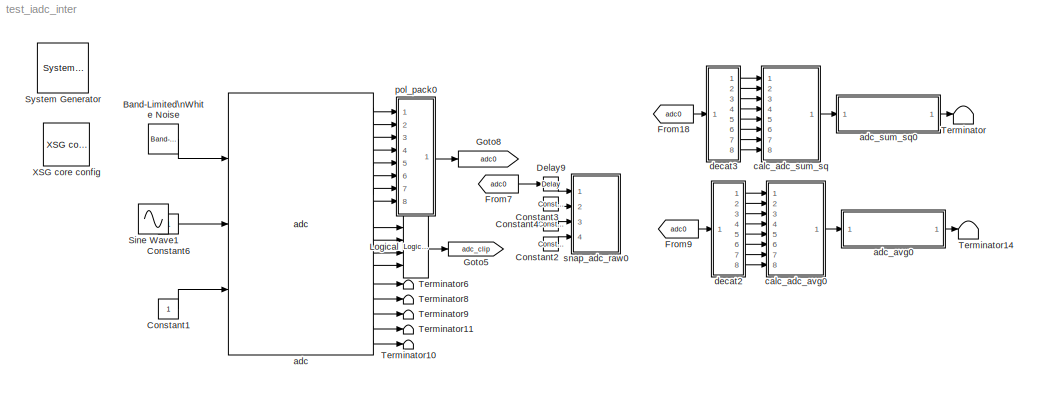
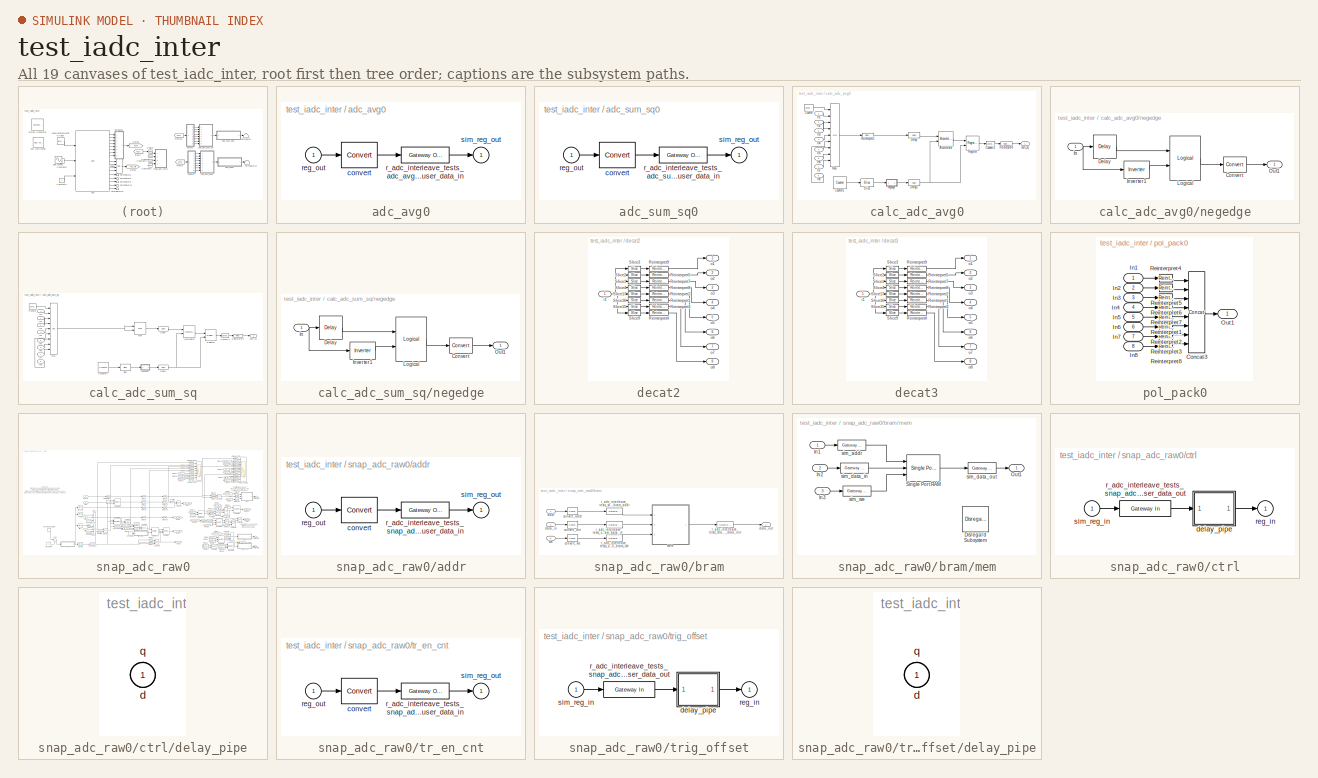
[diagram: thumbnail index - all 19 canvases of the model, root first then tree order]
MODEL test_iadc_inter
KIND model
BLOCK [Reference]  System Generator  REF=xbsIndex_r4/ System Generator
  AttributesFormatString = System\\nGenerator
  FunctionWithSeparateData = off
  Ports = []
  RTWMemSecDataConstants = Inherit from model
  RTWMemSecDataInternal = Inherit from model
  RTWMemSecDataParameters = Inherit from model
  RTWMemSecFuncExecute = Inherit from model
  RTWMemSecFuncInitTerm = Inherit from model
  ShowPortLabels = FromPortIcon
  SourceBlock = xbsIndex_r4/ System Generator
  SourceType = Xilinx System Generator Block
  SystemSampleTime = -1
  Tag = genX
  UserData = DataTag0
  UserDataPersistent = on
  block_type = sysgen
  block_version = 11.4
  clock_wrapper = Clock Enables
  core_generation = According to Block Masks
  dbl_ovrd = According to Block Masks
  dcm_input_clock_period = 100
  deprecated_control = off
  directory = ./r_adc_interleave_tests/sysgen
  eval_field = 0
  has_advanced_control = 0
  incr_netlist = off
  infoedit = System Generator
  package = ff1136
  part = xc5vsx95t
  run_coregen = off
  sg_icon_stat = 51,50,-1,-1,red,beige,0,07734,right,
  sg_mask_display = fprintf('','COMMENT: begin icon graphics');\npatch([0 1 1 0 ],[0 0 1 1 ],[0.93 0.92 0.86]);\npatch([0.235294 0.0784314 0.313725 0.0784314 0.235294 0.490196 0.568627 0.647059 0.921569 0.705882 0.490196 0.333333 0.568627 0.333333 0.490196 0.705882 0.921569 0.647059 0.568627 0.490196 0.235294 ],[0.1 0.26 0.5 0.74 0.9 0.9 0.82 0.9 0.9 0.68 0.9 0.74 0.5 0.26 0.1 0.32 0.1 0.1 0.18 0.1 0.1 ],[0.6 0.2 0.2...<+163ch>
  sggui_pos = -1,-1,-1,-1
  simulink_period = 1
  speed = -1
  synthesis_tool = XST
  sysclk_period = 4.4444
  testbench = off
  trim_vbits = Everywhere in SubSystem
  xilinxfamily = virtex5
BLOCK [Reference] Band-Limited\nWhite Noise  REF=simulink/Sources/Band-Limited\nWhite Noise
  Cov = [0.1]
  FunctionWithSeparateData = off
  Ports = [0, 1]
  RTWMemSecDataConstants = Inherit from model
  RTWMemSecDataInternal = Inherit from model
  RTWMemSecDataParameters = Inherit from model
  RTWMemSecFuncExecute = Inherit from model
  RTWMemSecFuncInitTerm = Inherit from model
  ShowPortLabels = FromPortIcon
  SourceBlock = simulink/Sources/Band-Limited\nWhite Noise
  SourceType = Band-Limited White Noise.
  SystemSampleTime = -1
  Ts = 0.25
  VectorParams1D = on
  seed = [23341]
BLOCK [Constant] Constant1
  OutDataType = sfix(16)
  OutScaling = 2^0
  SampleTime = 1
BLOCK [Reference] Constant2  REF=xbsIndex_r4/Constant
  Ports = [0, 1]
  SourceBlock = xbsIndex_r4/Constant
  SourceType = Xilinx Constant Block Block
  arith_type = Boolean
  bin_pt = 0
  block_type = constant
  block_version = 11.4
  carry = CIN
  const = 0
  dbl_ovrd = off
  dsp48_infoedit = The use of this block for DSP48 instructions is deprecated.  Please use the Opmode block.
  equ = P=C
  explicit_period = off
  has_advanced_control = 0
  inp1 = P
  inp2 = PCIN>>17
  n_bits = 1
  opr = +
  opselect = C
  period = 1
  sg_icon_stat = 15,14,0,1,white,blue,0,bf4ddd8b,right,
  sg_list_contents = {'table'=>{'carry'=>'popup(0|1|CIN|~SIGN(P or PCIN)|~SIGN(A*B or A:B)|~SIGND(A*B or A:B))','inp1'=>'popup(0|P|A:B|A*B|C|P+C|A:B+C)','inp2'=>'popup(0|PCIN|P|C|PCIN>>17|P>>17)','opselect'=>'popup(C + A*B|PCIN + A*B|P + A*B|A * B|C + A:B|C - A:B|C|Custom)','userSelections'=>{'carry'=>'CIN','inp1'=>'P','inp2'=>'PCIN>>17','opselect'=>'C'}}}  <repeated x3 — deduplicated; at blocks: Constant2, Constant3, Constant4>
  sg_mask_display = fprintf('','COMMENT: begin icon graphics');\npatch([0 1 1 0 ],[0 0 1 1 ],[0.77 0.82 0.91]);\npatch([0.2 0.0666667 0.266667 0.0666667 0.2 0.466667 0.533333 0.6 0.866667 0.666667 0.466667 0.333333 0.533333 0.333333 0.466667 0.666667 0.866667 0.6 0.533333 0.466667 0.2 ],[0.142857 0.285714 0.5 0.714286 0.857143 0.857143 0.785714 0.857143 0.857143 0.642857 0.857143 0.714286 0.5 0.285714 0.142857 0.3571...<+271ch>  <repeated x3 — deduplicated; at blocks: Constant2, Constant3, Constant4>
  sggui_pos = 22,98,474,439
BLOCK [Reference] Constant3  REF=xbsIndex_r4/Constant
  Ports = [0, 1]
  SourceBlock = xbsIndex_r4/Constant
  SourceType = Xilinx Constant Block Block
  arith_type = Boolean
  bin_pt = 0
  block_type = constant
  block_version = 11.4
  carry = CIN
  const = 1
  dbl_ovrd = off
  dsp48_infoedit = The use of this block for DSP48 instructions is deprecated.  Please use the Opmode block.
  equ = P=C
  explicit_period = off
  has_advanced_control = 0
  inp1 = P
  inp2 = PCIN>>17
  n_bits = 1
  opr = +
  opselect = C
  period = 1
  sg_icon_stat = 15,14,0,1,white,blue,0,1c72b5be,right,
  sggui_pos = 22,98,474,439
BLOCK [Reference] Constant4  REF=xbsIndex_r4/Constant
  Ports = [0, 1]
  SourceBlock = xbsIndex_r4/Constant
  SourceType = Xilinx Constant Block Block
  arith_type = Boolean
  bin_pt = 0
  block_type = constant
  block_version = 11.4
  carry = CIN
  const = 1
  dbl_ovrd = off
  dsp48_infoedit = The use of this block for DSP48 instructions is deprecated.  Please use the Opmode block.
  equ = P=C
  explicit_period = off
  has_advanced_control = 0
  inp1 = P
  inp2 = PCIN>>17
  n_bits = 1
  opr = +
  opselect = C
  period = 1
  sg_icon_stat = 15,14,0,1,white,blue,0,1c72b5be,right,
  sggui_pos = 22,98,474,439
BLOCK [Constant] Constant6
  OutDataType = sfix(16)
  OutScaling = 2^0
  SampleTime = 1
BLOCK [Reference] Delay9  REF=xbsIndex_r4/Delay
  Ports = [1, 1]
  SourceBlock = xbsIndex_r4/Delay
  SourceType = Xilinx Delay Block
  block_type = delay
  block_version = 10.1.3
  dbl_ovrd = off
  en = off
  has_advanced_control = 0
  infoedit = Hardware notes: A delay line is a chain, each link of which is an SRL16 followed by a flip-flop.
  latency = 2
  reg_retiming = on
  sg_icon_stat = 15,14,1,1,white,blue,0,85ce9542,right,
  sg_mask_display = fprintf('','COMMENT: begin icon graphics');\npatch([0 1 1 0 ],[0 0 1 1 ],[0.77 0.82 0.91]);\npatch([0.2 0.0666667 0.266667 0.0666667 0.2 0.466667 0.533333 0.6 0.866667 0.666667 0.466667 0.333333 0.533333 0.333333 0.466667 0.666667 0.866667 0.6 0.533333 0.466667 0.2 ],[0.142857 0.285714 0.5 0.714286 0.857143 0.857143 0.785714 0.857143 0.857143 0.642857 0.857143 0.714286 0.5 0.285714 0.142857 0.3571...<+274ch>
  sggui_pos = 20,20,348,254
  xl_area = [0,0,0,0,0,0,0]
  xl_use_area = off
BLOCK [From] From18
  CloseFcn = tagdialog Close
  GotoTag = adc0
BLOCK [From] From7
  CloseFcn = tagdialog Close
  GotoTag = adc0
BLOCK [From] From9
  CloseFcn = tagdialog Close
  GotoTag = adc0
BLOCK [Goto] Goto5
  GotoTag = adc_clip
  TagVisibility = local
BLOCK [Goto] Goto8
  GotoTag = adc0
  TagVisibility = local
BLOCK [Reference] Logical  REF=xbsIndex_r4/Logical
  Ports = [4, 1]
  SourceBlock = xbsIndex_r4/Logical
  SourceType = Xilinx Logical Block Block
  align_bp = on
  arith_type = Unsigned
  bin_pt = 0
  block_type = logical
  block_version = 10.1.3
  dbl_ovrd = off
  en = off
  has_advanced_control = 0
  inputs = 4
  latency = 1
  logical_function = OR
  n_bits = 16
  precision = Full
  sg_icon_stat = 25,63,4,1,white,blue,0,b6d17b45,right,
  sg_list_contents = {'table'=>{'logical_function'=>'popup(AND|NAND|OR|NOR|XOR|XNOR)','userSelections'=>{'logical_function'=>'OR'}}}
  sg_mask_display = fprintf('','COMMENT: begin icon graphics');\npatch([0 1 1 0 ],[0 0 1 1 ],[0.77 0.82 0.91]);\npatch([0.24 0.08 0.32 0.08 0.24 0.52 0.6 0.68 0.96 0.72 0.52 0.36 0.56 0.36 0.52 0.72 0.96 0.68 0.6 0.52 0.24 ],[0.349206 0.412698 0.507937 0.603175 0.666667 0.666667 0.634921 0.666667 0.666667 0.571429 0.650794 0.587302 0.507937 0.428571 0.365079 0.444444 0.349206 0.349206 0.380952 0.349206 0.349206 ],[0....<+241ch>
  sggui_pos = 23,105,419,289
  xl_area = [0,0,0,0,0,0,0]
  xl_use_area = off
BLOCK [Sin] Sine Wave1
  IOType = siggen
  Ports = [0, 1]
  SampleTime = 0
BLOCK [Terminator] Terminator
BLOCK [Terminator] Terminator10
BLOCK [Terminator] Terminator11
BLOCK [Terminator] Terminator14
BLOCK [Terminator] Terminator6
BLOCK [Terminator] Terminator8
BLOCK [Terminator] Terminator9
BLOCK [Reference] XSG core config  REF=xps_library/XSG core config  (lib defined in mdl_00b5cec29cd0, mdl_02ab6ecaa3d1, +5 more)
  BEE2_ctrl_clk_src = sys_clk
  BEE2_usr_clk_src = sys_clk
  CORR_clk_src = sys_clk
  FunctionWithSeparateData = off
  Ports = []
  ROACH_clk_src = adc0_clk
  RTWMemSecDataConstants = Inherit from model
  RTWMemSecDataInternal = Inherit from model
  RTWMemSecDataParameters = Inherit from model
  RTWMemSecFuncExecute = Inherit from model
  RTWMemSecFuncInitTerm = Inherit from model
  ShowPortLabels = FromPortIcon
  SourceBlock = xps_library/XSG core config
  SourceType = xsg core config
  SystemSampleTime = -1
  Tag = xps:xsg
  clk_rate = 225
  clk_src = adc0_clk
  gpio_clk_bit_index = 0
  gpio_clk_io_group = iBOB:sma
  hw_sys = ROACH:sx95t
  iBOB_clk_src = sys_clk
  ibob_linux = off
  mpc_type = powerpc440_ext
  sample_period = 1
  synthesis_tool = XST
BLOCK [Reference] adc  REF=xps_library/adc  (lib defined in mdl_00b5cec29cd0, mdl_02ab6ecaa3d1, +5 more)
  FunctionWithSeparateData = off
  Ports = [3, 17]
  RTWMemSecDataConstants = Inherit from model
  RTWMemSecDataInternal = Inherit from model
  RTWMemSecDataParameters = Inherit from model
  RTWMemSecFuncExecute = Inherit from model
  RTWMemSecFuncInitTerm = Inherit from model
  ShowPortLabels = FromPortIcon
  SourceBlock = xps_library/adc
  SourceType = adc
  SystemSampleTime = -1
  Tag = xps:adc
  adc_brd = adc0
  adc_clk_rate = 800
  adc_interleave = on
  sample_period = 1
BLOCK [SubSystem] adc_avg0
  FunctionWithSeparateData = off
  MaskCallbackString = |||||
  MaskEnableString = on,on,off,on,on,on
  MaskHideContents = off
  MaskIconFrame = on
  MaskIconOpaque = on
  MaskIconRotate = none
  MaskIconUnits = autoscale
  MaskInitialization = gw_name = clear_name(gcb);\nconfig.source = str2func('software_register_init');\nconfig.toplevel = gcb;\nxBlock( config, {io_dir, arith_type, bitwidth, bin_pt, ... \n    sample_period, gw_name, latency});  <repeated x6 — deduplicated; at blocks: adc_avg0, adc_sum_sq0, addr, ctrl, tr_en_cnt, trig_offset>
  MaskPromptString = I/O direction|Data Type|Data bitwidth|Data binary point|Sample period|Latency
  MaskSelfModifiable = on
  MaskStyleString = popup(From Processor|To Processor),popup(Unsigned|Signed  (2's comp)),edit,edit,edit,edit
  MaskTabNameString = ,,,,,
  MaskToolTipString = on,on,on,on,on,on
  MaskTunableValueString = on,on,on,on,on,on
  MaskValueString = To Processor|Unsigned|32|0|1|0
  MaskVarAliasString = ,,,,,
  MaskVariables = io_dir=&1;arith_type=&2;bitwidth=@3;bin_pt=@4;sample_period=@5;latency=@6;
  MaskVisibilityString = on,on,on,on,on,on
  MinAlgLoopOccurrences = off
  Opaque = off
  Ports = [1, 1]
  PropExecContextOutsideSubsystem = off
  RTWSystemCode = Auto
  RequestExecContextInheritance = off
  Tag = xps:sw_reg
BLOCK [Reference] adc_avg0/convert  REF=xbsIndex_r4/Convert
  Ports = [1, 1]
  SourceBlock = xbsIndex_r4/Convert
  SourceType = Xilinx Type Converter Block
  arith_type = Unsigned
  bin_pt = 0
  block_type = convert
  block_version = 11.4
  dbl_ovrd = off
  has_advanced_control = 0
  infoedit = Hardware notes: rounding and saturating require hardware resources; truncating and wrapping do not.
  latency = 0
  n_bits = 32
  overflow = Wrap
  pipeline = off
  quantization = Truncate
  sg_icon_stat = 45,32,1,1,white,blue,0,edca21da,right,
  sg_mask_display = fprintf('','COMMENT: begin icon graphics');\npatch([0 1 1 0 ],[0 0 1 1 ],[0.77 0.82 0.91]);\npatch([0.311111 0.2 0.355556 0.2 0.311111 0.488889 0.533333 0.577778 0.777778 0.622222 0.466667 0.355556 0.511111 0.355556 0.466667 0.622222 0.777778 0.577778 0.533333 0.488889 0.311111 ],[0.09375 0.25 0.46875 0.6875 0.84375 0.84375 0.78125 0.84375 0.84375 0.625 0.84375 0.6875 0.46875 0.25 0.09375 0.3125 0...<+265ch>  <repeated x4 — deduplicated; at blocks: convert>
  sggui_pos = -1,-1,-1,-1
  xl_area = [0,0,0,0,0,0,0]
  xl_use_area = off
BLOCK [Reference] adc_avg0/r_adc_interleave_tests_adc_avg0_user_data_in  REF=xbsIndex_r4/Gateway Out
  LOCs = {}
  Ports = [1, 1]
  SourceBlock = xbsIndex_r4/Gateway Out
  SourceType = Xilinx Gateway Out Block
  block_type = gatewayout
  block_version = 11.4
  has_advanced_control = 0
  hdl_port = on
  infoedit = Gateway out block.  Converts Xilinx fixed point inputs into ouputs of type Simulink integer, double, or fixed point.<br><br>Hardware notes:  In hardware these blocks become top level output ports or are discarded, depending on how they are configured.  <repeated x4 — deduplicated; at blocks: r_adc_interleave_tests_adc_avg0_user_data_in, r_adc_interleave_tests_adc_sum_sq0_user_data_in, r_adc_interleave_tests_snap_adc_raw0_addr_user_…, r_adc_interleave_tests_snap_adc_raw0_tr_en_cnt_…>
  locs_specified = off
  sg_icon_stat = 60,20,1,1,white,yellow,0,cc31b7ac,right,
  sg_mask_display = fprintf('','COMMENT: begin icon graphics');\npatch([0 1 1 0 ],[0 0 1 1 ],[0.95 0.93 0.65]);\npatch([0.4 0.35 0.433333 0.35 0.4 0.483333 0.5 0.516667 0.616667 0.55 0.483333 0.433333 0.516667 0.433333 0.483333 0.55 0.616667 0.516667 0.5 0.483333 0.4 ],[0.1 0.25 0.5 0.75 0.9 0.9 0.85 0.9 0.9 0.7 0.9 0.75 0.5 0.25 0.1 0.3 0.1 0.1 0.15 0.1 0.1 ],[0.98 0.96 0.92]);\nplot([0 1 1 0 0 ],[0 0 1 1 0 ]);\nfpr...<+246ch>  <repeated x4 — deduplicated; at blocks: r_adc_interleave_tests_adc_avg0_user_data_in, r_adc_interleave_tests_adc_sum_sq0_user_data_in, r_adc_interleave_tests_snap_adc_raw0_addr_user_…, r_adc_interleave_tests_snap_adc_raw0_tr_en_cnt_…>
  sggui_pos = -1,-1,-1,-1
  timing_constraint = None
  xl_area = [0,0,0,0,0,0,0]
  xl_use_area = off
BLOCK [Inport] adc_avg0/reg_out
  IconDisplay = Port number
BLOCK [Outport] adc_avg0/sim_reg_out
  IconDisplay = Port number
BLOCK [SubSystem] adc_sum_sq0
  FunctionWithSeparateData = off
  MaskCallbackString = |||||
  MaskEnableString = on,on,off,on,on,on
  MaskHideContents = off
  MaskIconFrame = on
  MaskIconOpaque = on
  MaskIconRotate = none
  MaskIconUnits = autoscale
  MaskPromptString = I/O direction|Data Type|Data bitwidth|Data binary point|Sample period|Latency
  MaskSelfModifiable = on
  MaskStyleString = popup(From Processor|To Processor),popup(Unsigned|Signed  (2's comp)),edit,edit,edit,edit
  MaskTabNameString = ,,,,,
  MaskToolTipString = on,on,on,on,on,on
  MaskTunableValueString = on,on,on,on,on,on
  MaskValueString = To Processor|Unsigned|32|0|1|0
  MaskVarAliasString = ,,,,,
  MaskVariables = io_dir=&1;arith_type=&2;bitwidth=@3;bin_pt=@4;sample_period=@5;latency=@6;
  MaskVisibilityString = on,on,on,on,on,on
  MinAlgLoopOccurrences = off
  Opaque = off
  Ports = [1, 1]
  PropExecContextOutsideSubsystem = off
  RTWSystemCode = Auto
  RequestExecContextInheritance = off
  Tag = xps:sw_reg
BLOCK [Reference] adc_sum_sq0/convert  REF=xbsIndex_r4/Convert
  Ports = [1, 1]
  SourceBlock = xbsIndex_r4/Convert
  SourceType = Xilinx Type Converter Block
  arith_type = Unsigned
  bin_pt = 0
  block_type = convert
  block_version = 11.4
  dbl_ovrd = off
  has_advanced_control = 0
  infoedit = Hardware notes: rounding and saturating require hardware resources; truncating and wrapping do not.
  latency = 0
  n_bits = 32
  overflow = Wrap
  pipeline = off
  quantization = Truncate
  sg_icon_stat = 45,32,1,1,white,blue,0,edca21da,right,
  sggui_pos = -1,-1,-1,-1
  xl_area = [0,0,0,0,0,0,0]
  xl_use_area = off
BLOCK [Reference] adc_sum_sq0/r_adc_interleave_tests_adc_sum_sq0_user_data_in  REF=xbsIndex_r4/Gateway Out
  LOCs = {}
  Ports = [1, 1]
  SourceBlock = xbsIndex_r4/Gateway Out
  SourceType = Xilinx Gateway Out Block
  block_type = gatewayout
  block_version = 11.4
  has_advanced_control = 0
  hdl_port = on
  locs_specified = off
  sg_icon_stat = 60,20,1,1,white,yellow,0,cc31b7ac,right,
  sggui_pos = -1,-1,-1,-1
  timing_constraint = None
  xl_area = [0,0,0,0,0,0,0]
  xl_use_area = off
BLOCK [Inport] adc_sum_sq0/reg_out
  IconDisplay = Port number
BLOCK [Outport] adc_sum_sq0/sim_reg_out
  IconDisplay = Port number
BLOCK [SubSystem] calc_adc_avg0
  FunctionWithSeparateData = off
  MaskHideContents = off
  MaskIconFrame = on
  MaskIconOpaque = on
  MaskIconRotate = none
  MaskIconUnits = autoscale
  MaskValueString = 3|2
  MinAlgLoopOccurrences = off
  Opaque = off
  Ports = [8, 1]
  PropExecContextOutsideSubsystem = off
  RTWSystemCode = Auto
  RequestExecContextInheritance = off
BLOCK [Reference] calc_adc_avg0/Accumulator  REF=xbsIndex_r4/Accumulator
  Ports = [2, 1]
  SourceBlock = xbsIndex_r4/Accumulator
  SourceType = Xilinx Accumulator Block
  block_type = accum
  block_version = 10.1.3
  dbl_ovrd = off
  en = off
  has_advanced_control = 0
  hasbypass = off
  implementation = DSP48
  infoedit = Adder or subtracter-based accumulator.   Output type and binary point position match the input.<br><br>Hardware notes: When \"Reinitialize with input 'b' on reset\" is selected, the accumulator is forced to run at the system rate even if the input 'b' is running at a slower rate.
  n_bits = 32
  operation = Add
  overflow = Wrap
  rst = on
  scale = 1
  sg_icon_stat = 50,51,2,1,white,blue,0,485399af,right,
  sg_list_contents = {'table'=>{'scale'=>'popup(1|1/2|1/4|1/8|1/16|1/32|1/64|1/128|1/256)','userSelections'=>{'scale'=>'1'}}}
  sg_mask_display = fprintf('','COMMENT: begin icon graphics');\npatch([0 1 1 0 ],[0 0 1 1 ],[0.77 0.82 0.91]);\npatch([0.22 0.06 0.3 0.06 0.22 0.48 0.56 0.64 0.92 0.7 0.48 0.32 0.56 0.32 0.48 0.7 0.92 0.64 0.56 0.48 0.22 ],[0.117647 0.27451 0.509804 0.745098 0.901961 0.901961 0.823529 0.901961 0.901961 0.686275 0.901961 0.745098 0.509804 0.27451 0.117647 0.333333 0.117647 0.117647 0.196078 0.117647 0.117647 ],[0.98 ...<+303ch>
  sggui_pos = 40,470,419,551
  use_behavioral_HDL = off
  xl_area = [0, 0, 0, 0, 0, 0, 0]
  xl_use_area = off
BLOCK [Reference] calc_adc_avg0/Convert1  REF=xbsIndex_r4/Convert
  Ports = [1, 1]
  SourceBlock = xbsIndex_r4/Convert
  SourceType = Xilinx Type Converter Block
  arith_type = Signed  (2's comp)
  bin_pt = 0
  block_type = convert
  block_version = 11.4
  dbl_ovrd = off
  has_advanced_control = 0
  infoedit = Hardware notes: rounding and saturating require hardware resources; truncating and wrapping do not.
  latency = 0
  n_bits = 32
  overflow = Wrap
  pipeline = off
  quantization = Truncate
  sg_icon_stat = 30,18,1,1,white,blue,0,edca21da,right,
  sg_mask_display = fprintf('','COMMENT: begin icon graphics');\npatch([0 1 1 0 ],[0 0 1 1 ],[0.77 0.82 0.91]);\npatch([0.333333 0.233333 0.366667 0.233333 0.333333 0.5 0.533333 0.566667 0.733333 0.6 0.466667 0.366667 0.5 0.366667 0.466667 0.6 0.733333 0.566667 0.533333 0.5 0.333333 ],[0.111111 0.277778 0.5 0.722222 0.888889 0.888889 0.833333 0.888889 0.888889 0.666667 0.888889 0.722222 0.5 0.277778 0.111111 0.333333...<+272ch>
  sggui_pos = 36,592,541,429
  xl_area = [0,0,0,0,0,0,0]
  xl_use_area = off
BLOCK [Reference] calc_adc_avg0/Counter  REF=xbsIndex_r4/Counter
  Ports = [0, 1]
  SourceBlock = xbsIndex_r4/Counter
  SourceType = Xilinx Counter Block
  arith_type = Unsigned
  bin_pt = 0
  block_type = counter
  block_version = 10.1.3
  cnt_by_val = 1
  cnt_to = Inf
  cnt_type = Free Running
  dbl_ovrd = off
  en = off
  explicit_period = on
  has_advanced_control = 0
  implementation = Fabric
  infoedit = Hardware notes: Free running counters are the least expensive in hardware.  A count limited counter is implemented by combining a counter with a comparator.
  load_pin = off
  n_bits = 3
  operation = Up
  period = 1
  rst = off
  sg_icon_stat = 30,24,0,1,white,blue,0,335d209d,right,
  sg_mask_display = fprintf('','COMMENT: begin icon graphics');\npatch([0 1 1 0 ],[0 0 1 1 ],[0.77 0.82 0.91]);\npatch([0.3 0.166667 0.366667 0.166667 0.3 0.5 0.566667 0.633333 0.866667 0.7 0.533333 0.4 0.6 0.4 0.533333 0.7 0.866667 0.633333 0.566667 0.5 0.3 ],[0.125 0.291667 0.541667 0.791667 0.958333 0.958333 0.875 0.958333 0.958333 0.75 0.958333 0.791667 0.541667 0.291667 0.125 0.333333 0.125 0.125 0.208333 0.125 ...<+231ch>
  sggui_pos = 22,98,419,748
  start_count = 0
  use_behavioral_HDL = off
  use_rpm = on
  xl_area = [0, 0, 0, 0, 0, 0, 0]
  xl_use_area = off
BLOCK [Reference] calc_adc_avg0/Counter1  REF=xbsIndex_r4/Counter
  Ports = [0, 1]
  SourceBlock = xbsIndex_r4/Counter
  SourceType = Xilinx Counter Block
  arith_type = Unsigned
  bin_pt = 0
  block_type = counter
  block_version = 10.1.3
  cnt_by_val = 1
  cnt_to = Inf
  cnt_type = Free Running
  dbl_ovrd = off
  en = off
  explicit_period = on
  has_advanced_control = 0
  implementation = DSP48
  infoedit = Hardware notes: Free running counters are the least expensive in hardware.  A count limited counter is implemented by combining a counter with a comparator.
  load_pin = off
  n_bits = 22
  operation = Up
  period = 1
  rst = off
  sg_icon_stat = 45,42,0,1,white,blue,0,335d209d,right,
  sg_mask_display = fprintf('','COMMENT: begin icon graphics');\npatch([0 1 1 0 ],[0 0 1 1 ],[0.77 0.82 0.91]);\npatch([0.244444 0.0888889 0.311111 0.0888889 0.244444 0.488889 0.555556 0.622222 0.888889 0.688889 0.488889 0.333333 0.555556 0.333333 0.488889 0.688889 0.888889 0.622222 0.555556 0.488889 0.244444 ],[0.119048 0.285714 0.52381 0.761905 0.928571 0.928571 0.857143 0.928571 0.928571 0.714286 0.928571 0.761905...<+306ch>
  sggui_pos = 25,179,419,748
  start_count = 0
  use_behavioral_HDL = off
  use_rpm = on
  xl_area = [0, 0, 0, 0, 0, 0, 0]
  xl_use_area = off
BLOCK [Reference] calc_adc_avg0/Delay  REF=xbsIndex_r4/Delay
  Ports = [1, 1]
  SourceBlock = xbsIndex_r4/Delay
  SourceType = Xilinx Delay Block
  block_type = delay
  block_version = 11.4
  dbl_ovrd = off
  en = off
  has_advanced_control = 0
  infoedit = Hardware notes: A delay line is a chain, each link of which is an SRL16 followed by a flip-flop.
  latency = 1
  reg_retiming = on
  sg_icon_stat = 40,20,1,1,white,blue,0,07b98262,right,
  sg_mask_display = fprintf('','COMMENT: begin icon graphics');\npatch([0 1 1 0 ],[0 0 1 1 ],[0.77 0.82 0.91]);\npatch([0.35 0.275 0.4 0.275 0.35 0.475 0.5 0.525 0.675 0.575 0.475 0.4 0.525 0.4 0.475 0.575 0.675 0.525 0.5 0.475 0.35 ],[0.1 0.25 0.5 0.75 0.9 0.9 0.85 0.9 0.9 0.7 0.9 0.75 0.5 0.25 0.1 0.3 0.1 0.1 0.15 0.1 0.1 ],[0.98 0.96 0.92]);\nplot([0 1 1 0 0 ],[0 0 1 1 0 ]);\nfprintf('','COMMENT: end icon graphics...<+132ch>  <repeated x4 — deduplicated; at blocks: Delay, Delay1>
  sggui_pos = 21,71,419,315
  xl_area = [0,0,0,0,0,0,0]
  xl_use_area = off
BLOCK [Reference] calc_adc_avg0/Delay1  REF=xbsIndex_r4/Delay
  Ports = [1, 1]
  SourceBlock = xbsIndex_r4/Delay
  SourceType = Xilinx Delay Block
  block_type = delay
  block_version = 11.4
  dbl_ovrd = off
  en = off
  has_advanced_control = 0
  infoedit = Hardware notes: A delay line is a chain, each link of which is an SRL16 followed by a flip-flop.
  latency = 1
  reg_retiming = on
  sg_icon_stat = 40,20,1,1,white,blue,0,07b98262,right,
  sggui_pos = 22,98,419,315
  xl_area = [0,0,0,0,0,0,0]
  xl_use_area = off
BLOCK [Inport] calc_adc_avg0/In1
  IconDisplay = Port number
  OutDataType = sfix(16)
  OutScaling = 2^0
BLOCK [Inport] calc_adc_avg0/In2
  IconDisplay = Port number
  OutDataType = sfix(16)
  OutScaling = 2^0
  Port = 2
BLOCK [Inport] calc_adc_avg0/In3
  IconDisplay = Port number
  OutDataType = sfix(16)
  OutScaling = 2^0
  Port = 3
BLOCK [Inport] calc_adc_avg0/In4
  IconDisplay = Port number
  OutDataType = sfix(16)
  OutScaling = 2^0
  Port = 4
BLOCK [Inport] calc_adc_avg0/In5
  IconDisplay = Port number
  OutDataType = sfix(16)
  OutScaling = 2^0
  Port = 5
BLOCK [Inport] calc_adc_avg0/In6
  IconDisplay = Port number
  OutDataType = sfix(16)
  OutScaling = 2^0
  Port = 6
BLOCK [Inport] calc_adc_avg0/In7
  IconDisplay = Port number
  OutDataType = sfix(16)
  OutScaling = 2^0
  Port = 7
BLOCK [Inport] calc_adc_avg0/In8
  IconDisplay = Port number
  OutDataType = sfix(16)
  OutScaling = 2^0
  Port = 8
BLOCK [Reference] calc_adc_avg0/Mux  REF=xbsIndex_r4/Mux
  Ports = [9, 1]
  SourceBlock = xbsIndex_r4/Mux
  SourceType = Xilinx Bus Multiplexer Block
  arith_type = Signed  (2's comp)
  bin_pt = 2
  block_type = mux
  block_version = 10.1.3
  dbl_ovrd = off
  en = off
  has_advanced_control = 0
  inputs = 8
  latency = 1
  n_bits = 8
  overflow = Wrap
  precision = Full
  quantization = Truncate
  sg_icon_stat = 30,220,9,1,white,blue,3,f1dfe151,right,
  sg_list_contents = {'table'=>{'inputs'=>'popup(2|3|4|5|6|7|8|9|10|11|12|13|14|15|16|17|18|19|20|21|22|23|24|25|26|27|28|29|30|31|32)','userSelections'=>{'inputs'=>'8'}}}
  sg_mask_display = fprintf('','COMMENT: begin icon graphics');\npatch([0 1 1 0 ],[0 0.142857 0.857143 1 ],[0.77 0.82 0.91]);\npatch([0.233333 0.0666667 0.3 0.0666667 0.233333 0.5 0.566667 0.633333 0.9 0.666667 0.466667 0.3 0.5 0.3 0.466667 0.666667 0.9 0.633333 0.566667 0.5 0.233333 ],[0.445455 0.468182 0.5 0.531818 0.554545 0.554545 0.545455 0.554545 0.554545 0.522727 0.55 0.527273 0.5 0.472727 0.45 0.477273 0.4454...<+684ch>
  sggui_pos = 21,51,419,342
  xl_area = [0, 0, 0, 0, 0, 0, 0]
  xl_use_area = off
BLOCK [Reference] calc_adc_avg0/Register  REF=xbsIndex_r4/Register
  Ports = [2, 1]
  SourceBlock = xbsIndex_r4/Register
  SourceType = Xilinx Register Block
  block_type = register
  block_version = 10.1.3
  dbl_ovrd = off
  en = on
  has_advanced_control = 0
  init = 0
  rst = off
  sg_icon_stat = 45,49,2,1,white,blue,0,01f465d5,right,
  sg_mask_display = fprintf('','COMMENT: begin icon graphics');\npatch([0 1 1 0 ],[0 0 1 1 ],[0.77 0.82 0.91]);\npatch([0.222222 0.0666667 0.311111 0.0666667 0.222222 0.488889 0.555556 0.622222 0.911111 0.688889 0.466667 0.311111 0.555556 0.311111 0.466667 0.688889 0.911111 0.622222 0.555556 0.488889 0.222222 ],[0.142857 0.285714 0.510204 0.734694 0.877551 0.877551 0.816327 0.877551 0.877551 0.673469 0.877551 0.73469...<+446ch>
  sggui_pos = 22,228,419,207
  xl_area = [0, 0, 0, 0, 0, 0, 0]
  xl_use_area = off
BLOCK [Reference] calc_adc_avg0/Reinterpret1  REF=xbsIndex_r4/Reinterpret
  Ports = [1, 1]
  SourceBlock = xbsIndex_r4/Reinterpret
  SourceType = Xilinx Type Reinterpreter Block
  arith_type = Signed  (2's comp)
  bin_pt = 0
  block_type = reinterpret
  block_version = 10.1.3
  force_arith_type = on
  force_bin_pt = on
  has_advanced_control = 0
  infoedit = Changes signal type without altering the binary representation.   You can changed the signal between signed and unsigned, and relocate the binary point.<br><br>Hardware notes: In hardware this block costs nothing.<br><br>Example:  Suppose the input is 6 bits wide, signed, with 2 fractional bits, and the output is forced to unsigned with 0 fractional bits.  Then an input of -2.0 (1110.00 in binary ...<+59ch>  <repeated x19 — deduplicated; at blocks: Reinterpret1, Reinterpret4, Reinterpret2, Reinterpret3, Reinterpret5, Reinterpret7, Reinterpret8, Reinterpret9>
  sg_icon_stat = 40,14,1,1,white,blue,0,6b04d0b0,right,
  sg_mask_display = fprintf('','COMMENT: begin icon graphics');\npatch([0 1 1 0 ],[0 0 1 1 ],[0.77 0.82 0.91]);\npatch([0.4 0.35 0.425 0.35 0.4 0.5 0.525 0.55 0.65 0.575 0.5 0.45 0.525 0.45 0.5 0.575 0.65 0.55 0.525 0.5 0.4 ],[0.142857 0.285714 0.5 0.714286 0.857143 0.857143 0.785714 0.857143 0.857143 0.642857 0.857143 0.714286 0.5 0.285714 0.142857 0.357143 0.142857 0.142857 0.214286 0.142857 0.142857 ],[0.98 0.96 0...<+202ch>  <repeated x3 — deduplicated; at blocks: Reinterpret1, Reinterpret4>
  sggui_pos = 26,186,374,364
BLOCK [Reference] calc_adc_avg0/Reinterpret4  REF=xbsIndex_r4/Reinterpret
  Ports = [1, 1]
  SourceBlock = xbsIndex_r4/Reinterpret
  SourceType = Xilinx Type Reinterpreter Block
  arith_type = Unsigned
  bin_pt = 0
  block_type = reinterpret
  block_version = 10.1.3
  force_arith_type = on
  force_bin_pt = on
  has_advanced_control = 0
  sg_icon_stat = 40,14,1,1,white,blue,0,6b04d0b0,right,
  sggui_pos = 25,159,374,364
BLOCK [Reference] calc_adc_avg0/Slice  REF=xbsIndex_r4/Slice
  Ports = [1, 1]
  SourceBlock = xbsIndex_r4/Slice
  SourceType = Xilinx Bit Slice Extractor Block
  base0 = LSB of Input
  base1 = MSB of Input
  bit0 = 0
  bit1 = 0
  block_type = slice
  block_version = 10.1.3
  boolean_output = off
  dbl_ovrd = off
  has_advanced_control = 0
  infoedit = Extracts a given range of bits from each input sample and presents it at the output.  The output type is ordinarily unsigned with binary point at zero, but can be Boolean when the slice is one bit wide.<P><P>Hardware notes: In hardware this block costs nothing.  <repeated x14 — deduplicated; at blocks: Slice, Slice15, Slice16, Slice17, Slice9, circ_cap, enable, trig1, valid>
  mode = Upper Bit Location + Width
  nbits = 1
  sg_icon_stat = 45,28,1,1,white,blue,0,1fd851a7,right,
  sg_mask_display = fprintf('','COMMENT: begin icon graphics');\npatch([0 1 1 0 ],[0 0 1 1 ],[0.77 0.82 0.91]);\npatch([0.333333 0.222222 0.377778 0.222222 0.333333 0.488889 0.533333 0.577778 0.755556 0.622222 0.488889 0.4 0.577778 0.4 0.488889 0.622222 0.755556 0.577778 0.533333 0.488889 0.333333 ],[0.107143 0.285714 0.535714 0.785714 0.964286 0.964286 0.892857 0.964286 0.964286 0.75 0.964286 0.821429 0.535714 0.25 ...<+290ch>
  sggui_pos = 23,105,543,482
BLOCK [SubSystem] calc_adc_avg0/negedge
  FunctionWithSeparateData = off
  MaskHideContents = off
  MinAlgLoopOccurrences = off
  Opaque = off
  Ports = [1, 1]
  PropExecContextOutsideSubsystem = off
  RTWSystemCode = Auto
  RequestExecContextInheritance = off
BLOCK [Reference] calc_adc_avg0/negedge/Convert  REF=xbsIndex_r4/Convert
  Ports = [1, 1]
  SourceBlock = xbsIndex_r4/Convert
  SourceType = Xilinx Type Converter Block
  arith_type = Boolean
  bin_pt = 6
  block_type = convert
  block_version = 10.1.3
  dbl_ovrd = off
  has_advanced_control = 0
  infoedit = Hardware notes: rounding and saturating require hardware resources; truncating and wrapping do not.
  latency = 0
  n_bits = 8
  overflow = Wrap
  pipeline = off
  quantization = Truncate
  sg_icon_stat = 45,30,1,1,white,blue,0,edca21da,right,
  sg_mask_display = fprintf('','COMMENT: begin icon graphics');\npatch([0 1 1 0 ],[0 0 1 1 ],[0.77 0.82 0.91]);\npatch([0.333333 0.222222 0.377778 0.222222 0.333333 0.511111 0.555556 0.6 0.777778 0.622222 0.488889 0.377778 0.511111 0.377778 0.488889 0.622222 0.777778 0.6 0.555556 0.511111 0.333333 ],[0.1 0.266667 0.5 0.733333 0.9 0.9 0.833333 0.9 0.9 0.666667 0.866667 0.7 0.5 0.3 0.133333 0.333333 0.1 0.1 0.166667 0....<+232ch>
  sggui_pos = -1,-1,-1,-1
  xl_area = [0, 0, 0, 0, 0, 0, 0]
  xl_use_area = off
BLOCK [Reference] calc_adc_avg0/negedge/Delay  REF=xbsIndex_r4/Delay
  Ports = [1, 1]
  SourceBlock = xbsIndex_r4/Delay
  SourceType = Xilinx Delay Block
  block_type = delay
  block_version = 10.1.3
  dbl_ovrd = off
  en = off
  has_advanced_control = 0
  infoedit = Hardware notes: A delay line is a chain, each link of which is an SRL16 followed by a flip-flop.
  latency = 1
  reg_retiming = off
  sg_icon_stat = 45,46,1,1,white,blue,0,07b98262,right,
  sg_mask_display = fprintf('','COMMENT: begin icon graphics');\npatch([0 1 1 0 ],[0 0 1 1 ],[0.77 0.82 0.91]);\npatch([0.222222 0.0666667 0.311111 0.0666667 0.222222 0.488889 0.555556 0.622222 0.911111 0.688889 0.466667 0.311111 0.555556 0.311111 0.466667 0.688889 0.911111 0.622222 0.555556 0.488889 0.222222 ],[0.108696 0.26087 0.5 0.73913 0.891304 0.891304 0.826087 0.891304 0.891304 0.673913 0.891304 0.73913 0.5 0....<+295ch>
  sggui_pos = -1,-1,-1,-1
  xl_area = [0, 0, 0, 0, 0, 0, 0]
  xl_use_area = off
BLOCK [Inport] calc_adc_avg0/negedge/In
  IconDisplay = Port number
  OutDataType = sfix(16)
  OutScaling = 2^0
BLOCK [Reference] calc_adc_avg0/negedge/Inverter1  REF=xbsIndex_r4/Inverter
  Ports = [1, 1]
  SourceBlock = xbsIndex_r4/Inverter
  SourceType = Xilinx Inverter Block
  block_type = inv
  block_version = 10.1.3
  dbl_ovrd = off
  en = off
  has_advanced_control = 0
  infoedit = Bitwise logical negation (one's complement) operator.
  latency = 0
  sg_icon_stat = 50,34,1,1,white,blue,0,267846e5,right,
  sg_mask_display = fprintf('','COMMENT: begin icon graphics');\npatch([0 1 1 0 ],[0 0 1 1 ],[0.77 0.82 0.91]);\npatch([0.32 0.2 0.36 0.2 0.32 0.5 0.54 0.58 0.78 0.62 0.48 0.38 0.54 0.38 0.48 0.62 0.78 0.58 0.54 0.5 0.32 ],[0.117647 0.294118 0.529412 0.764706 0.941176 0.941176 0.882353 0.941176 0.941176 0.705882 0.911765 0.764706 0.529412 0.294118 0.147059 0.352941 0.117647 0.117647 0.176471 0.117647 0.117647 ],[0.98...<+201ch>
  sggui_pos = -1,-1,-1,-1
  xl_area = [0, 0, 0, 0, 0, 0, 0]
  xl_use_area = off
BLOCK [Reference] calc_adc_avg0/negedge/Logical  REF=xbsIndex_r4/Logical
  Ports = [2, 1]
  SourceBlock = xbsIndex_r4/Logical
  SourceType = Xilinx Logical Block Block
  align_bp = on
  arith_type = Unsigned
  bin_pt = 2
  block_type = logical
  block_version = 10.1.3
  dbl_ovrd = off
  en = off
  has_advanced_control = 0
  inputs = 2
  latency = 0
  logical_function = AND
  n_bits = 8
  precision = Full
  sg_icon_stat = 60,87,2,1,white,blue,0,0a851f85,right,
  sg_mask_display = fprintf('','COMMENT: begin icon graphics');\npatch([0 1 1 0 ],[0 0 1 1 ],[0.77 0.82 0.91]);\npatch([0.233333 0.0666667 0.3 0.0666667 0.233333 0.5 0.566667 0.633333 0.916667 0.7 0.483333 0.333333 0.583333 0.333333 0.483333 0.7 0.916667 0.633333 0.566667 0.5 0.233333 ],[0.229885 0.344828 0.505747 0.666667 0.781609 0.781609 0.735632 0.781609 0.781609 0.632184 0.781609 0.678161 0.505747 0.333333 0.229...<+304ch>
  sggui_pos = -1,-1,-1,-1
  xl_area = [0, 0, 0, 0, 0, 0, 0]
  xl_use_area = off
BLOCK [Outport] calc_adc_avg0/negedge/Out1
  IconDisplay = Port number
  OutDataType = sfix(16)
  OutScaling = 2^0
BLOCK [Outport] calc_adc_avg0/sum_sq
  IconDisplay = Port number
  OutDataType = sfix(16)
  OutScaling = 2^0
BLOCK [SubSystem] calc_adc_sum_sq
  FunctionWithSeparateData = off
  MaskHideContents = off
  MaskIconFrame = on
  MaskIconOpaque = on
  MaskIconRotate = none
  MaskIconUnits = autoscale
  MaskValueString = 3|2
  MinAlgLoopOccurrences = off
  Opaque = off
  Ports = [8, 1]
  PropExecContextOutsideSubsystem = off
  RTWSystemCode = Auto
  RequestExecContextInheritance = off
BLOCK [Reference] calc_adc_sum_sq/Accumulator  REF=xbsIndex_r4/Accumulator
  Ports = [2, 1]
  SourceBlock = xbsIndex_r4/Accumulator
  SourceType = Xilinx Accumulator Block
  block_type = accum
  block_version = 10.1.3
  dbl_ovrd = off
  en = off
  has_advanced_control = 0
  hasbypass = off
  implementation = DSP48
  infoedit = Adder or subtracter-based accumulator.   Output type and binary point position match the input.<br><br>Hardware notes: When \"Reinitialize with input 'b' on reset\" is selected, the accumulator is forced to run at the system rate even if the input 'b' is running at a slower rate.
  n_bits = 32
  operation = Add
  overflow = Wrap
  rst = on
  scale = 1
  sg_icon_stat = 50,51,2,1,white,blue,0,485399af,right,
  sg_list_contents = {'table'=>{'scale'=>'popup(1|1/2|1/4|1/8|1/16|1/32|1/64|1/128|1/256)','userSelections'=>{'scale'=>'1'}}}
  sg_mask_display = fprintf('','COMMENT: begin icon graphics');\npatch([0 1 1 0 ],[0 0 1 1 ],[0.77 0.82 0.91]);\npatch([0.22 0.06 0.3 0.06 0.22 0.48 0.56 0.64 0.92 0.7 0.48 0.32 0.56 0.32 0.48 0.7 0.92 0.64 0.56 0.48 0.22 ],[0.117647 0.27451 0.509804 0.745098 0.901961 0.901961 0.823529 0.901961 0.901961 0.686275 0.901961 0.745098 0.509804 0.27451 0.117647 0.333333 0.117647 0.117647 0.196078 0.117647 0.117647 ],[0.98 ...<+303ch>
  sggui_pos = 34,471,419,551
  use_behavioral_HDL = off
  xl_area = [0, 0, 0, 0, 0, 0, 0]
  xl_use_area = off
BLOCK [Reference] calc_adc_sum_sq/Convert1  REF=xbsIndex_r4/Convert
  Ports = [1, 1]
  SourceBlock = xbsIndex_r4/Convert
  SourceType = Xilinx Type Converter Block
  arith_type = Unsigned
  bin_pt = 14
  block_type = convert
  block_version = 11.4
  dbl_ovrd = off
  has_advanced_control = 0
  infoedit = Hardware notes: rounding and saturating require hardware resources; truncating and wrapping do not.
  latency = 0
  n_bits = 32
  overflow = Wrap
  pipeline = off
  quantization = Truncate
  sg_icon_stat = 30,18,1,1,white,blue,0,edca21da,right,
  sg_mask_display = fprintf('','COMMENT: begin icon graphics');\npatch([0 1 1 0 ],[0 0 1 1 ],[0.77 0.82 0.91]);\npatch([0.333333 0.233333 0.366667 0.233333 0.333333 0.5 0.533333 0.566667 0.733333 0.6 0.466667 0.366667 0.5 0.366667 0.466667 0.6 0.733333 0.566667 0.533333 0.5 0.333333 ],[0.111111 0.277778 0.5 0.722222 0.888889 0.888889 0.833333 0.888889 0.888889 0.666667 0.888889 0.722222 0.5 0.277778 0.111111 0.333333...<+272ch>
  sggui_pos = 33,525,541,429
  xl_area = [0,0,0,0,0,0,0]
  xl_use_area = off
BLOCK [Reference] calc_adc_sum_sq/Counter  REF=xbsIndex_r4/Counter
  Ports = [0, 1]
  SourceBlock = xbsIndex_r4/Counter
  SourceType = Xilinx Counter Block
  arith_type = Unsigned
  bin_pt = 0
  block_type = counter
  block_version = 10.1.3
  cnt_by_val = 1
  cnt_to = Inf
  cnt_type = Free Running
  dbl_ovrd = off
  en = off
  explicit_period = on
  has_advanced_control = 0
  implementation = Fabric
  infoedit = Hardware notes: Free running counters are the least expensive in hardware.  A count limited counter is implemented by combining a counter with a comparator.
  load_pin = off
  n_bits = 3
  operation = Up
  period = 1
  rst = off
  sg_icon_stat = 30,24,0,1,white,blue,0,335d209d,right,
  sg_mask_display = fprintf('','COMMENT: begin icon graphics');\npatch([0 1 1 0 ],[0 0 1 1 ],[0.77 0.82 0.91]);\npatch([0.3 0.166667 0.366667 0.166667 0.3 0.5 0.566667 0.633333 0.866667 0.7 0.533333 0.4 0.6 0.4 0.533333 0.7 0.866667 0.633333 0.566667 0.5 0.3 ],[0.125 0.291667 0.541667 0.791667 0.958333 0.958333 0.875 0.958333 0.958333 0.75 0.958333 0.791667 0.541667 0.291667 0.125 0.333333 0.125 0.125 0.208333 0.125 ...<+231ch>
  sggui_pos = 22,98,419,748
  start_count = 0
  use_behavioral_HDL = off
  use_rpm = on
  xl_area = [0, 0, 0, 0, 0, 0, 0]
  xl_use_area = off
BLOCK [Reference] calc_adc_sum_sq/Counter1  REF=xbsIndex_r4/Counter
  Ports = [0, 1]
  SourceBlock = xbsIndex_r4/Counter
  SourceType = Xilinx Counter Block
  arith_type = Unsigned
  bin_pt = 0
  block_type = counter
  block_version = 10.1.3
  cnt_by_val = 1
  cnt_to = Inf
  cnt_type = Free Running
  dbl_ovrd = off
  en = off
  explicit_period = on
  has_advanced_control = 0
  implementation = DSP48
  infoedit = Hardware notes: Free running counters are the least expensive in hardware.  A count limited counter is implemented by combining a counter with a comparator.
  load_pin = off
  n_bits = 16
  operation = Up
  period = 1
  rst = off
  sg_icon_stat = 45,42,0,1,white,blue,0,335d209d,right,
  sg_mask_display = fprintf('','COMMENT: begin icon graphics');\npatch([0 1 1 0 ],[0 0 1 1 ],[0.77 0.82 0.91]);\npatch([0.244444 0.0888889 0.311111 0.0888889 0.244444 0.488889 0.555556 0.622222 0.888889 0.688889 0.488889 0.333333 0.555556 0.333333 0.488889 0.688889 0.888889 0.622222 0.555556 0.488889 0.244444 ],[0.119048 0.285714 0.52381 0.761905 0.928571 0.928571 0.857143 0.928571 0.928571 0.714286 0.928571 0.761905...<+306ch>
  sggui_pos = 22,98,419,748
  start_count = 0
  use_behavioral_HDL = off
  use_rpm = on
  xl_area = [0, 0, 0, 0, 0, 0, 0]
  xl_use_area = off
BLOCK [Reference] calc_adc_sum_sq/Delay  REF=xbsIndex_r4/Delay
  Ports = [1, 1]
  SourceBlock = xbsIndex_r4/Delay
  SourceType = Xilinx Delay Block
  block_type = delay
  block_version = 11.4
  dbl_ovrd = off
  en = off
  has_advanced_control = 0
  infoedit = Hardware notes: A delay line is a chain, each link of which is an SRL16 followed by a flip-flop.
  latency = 1
  reg_retiming = on
  sg_icon_stat = 40,20,1,1,white,blue,0,07b98262,right,
  sggui_pos = 21,71,419,315
  xl_area = [0,0,0,0,0,0,0]
  xl_use_area = off
BLOCK [Reference] calc_adc_sum_sq/Delay1  REF=xbsIndex_r4/Delay
  Ports = [1, 1]
  SourceBlock = xbsIndex_r4/Delay
  SourceType = Xilinx Delay Block
  block_type = delay
  block_version = 11.4
  dbl_ovrd = off
  en = off
  has_advanced_control = 0
  infoedit = Hardware notes: A delay line is a chain, each link of which is an SRL16 followed by a flip-flop.
  latency = 1
  reg_retiming = on
  sg_icon_stat = 40,20,1,1,white,blue,0,07b98262,right,
  sggui_pos = 22,98,419,315
  xl_area = [0,0,0,0,0,0,0]
  xl_use_area = off
BLOCK [Inport] calc_adc_sum_sq/In1
  IconDisplay = Port number
  OutDataType = sfix(16)
  OutScaling = 2^0
BLOCK [Inport] calc_adc_sum_sq/In2
  IconDisplay = Port number
  OutDataType = sfix(16)
  OutScaling = 2^0
  Port = 2
BLOCK [Inport] calc_adc_sum_sq/In3
  IconDisplay = Port number
  OutDataType = sfix(16)
  OutScaling = 2^0
  Port = 3
BLOCK [Inport] calc_adc_sum_sq/In4
  IconDisplay = Port number
  OutDataType = sfix(16)
  OutScaling = 2^0
  Port = 4
BLOCK [Inport] calc_adc_sum_sq/In5
  IconDisplay = Port number
  OutDataType = sfix(16)
  OutScaling = 2^0
  Port = 5
BLOCK [Inport] calc_adc_sum_sq/In6
  IconDisplay = Port number
  OutDataType = sfix(16)
  OutScaling = 2^0
  Port = 6
BLOCK [Inport] calc_adc_sum_sq/In7
  IconDisplay = Port number
  OutDataType = sfix(16)
  OutScaling = 2^0
  Port = 7
BLOCK [Inport] calc_adc_sum_sq/In8
  IconDisplay = Port number
  OutDataType = sfix(16)
  OutScaling = 2^0
  Port = 8
BLOCK [Reference] calc_adc_sum_sq/Mult  REF=xbsIndex_r4/Mult
  Ports = [2, 1]
  SourceBlock = xbsIndex_r4/Mult
  SourceType = Xilinx Multiplier Block
  arith_type = Signed  (2's comp)
  bin_pt = 2
  block_type = mult
  block_version = 10.1.3
  dbl_ovrd = off
  en = off
  has_advanced_control = 0
  infoedit = Hardware notes: To check for the optimum internal pipeline stages of the dedicated multiplier you must select 'Test for optimum pipelining'.<br><br>Optimization Goal: For implementation into device fabric (LUTs), the Speed or Area optimization will take effect only if it's supported by IP for the particular device family. Otherwise, the results will be identical regardless of the selection.
  latency = 2
  n_bits = 8
  opt = Speed
  optimum_pipeline = off
  overflow = Wrap
  pipeline = on
  placement_style = Rectangular shape
  precision = Full
  quantization = Truncate
  sg_icon_stat = 50,51,2,1,white,blue,0,9a78ff34,right,
  sg_mask_display = fprintf('','COMMENT: begin icon graphics');\npatch([0 1 1 0 ],[0 0 1 1 ],[0.77 0.82 0.91]);\npatch([0.22 0.06 0.3 0.06 0.22 0.48 0.56 0.64 0.92 0.7 0.48 0.32 0.56 0.32 0.48 0.7 0.92 0.64 0.56 0.48 0.22 ],[0.117647 0.27451 0.509804 0.745098 0.901961 0.901961 0.823529 0.901961 0.901961 0.686275 0.901961 0.745098 0.509804 0.27451 0.117647 0.333333 0.117647 0.117647 0.196078 0.117647 0.117647 ],[0.98 ...<+375ch>
  sggui_pos = 26,282,419,609
  use_behavioral_HDL = on
  use_embedded = on
  use_rpm = on
  xl_area = [0, 0, 0, 0, 0, 0, 0]
  xl_use_area = off
BLOCK [Reference] calc_adc_sum_sq/Mux  REF=xbsIndex_r4/Mux
  Ports = [9, 1]
  SourceBlock = xbsIndex_r4/Mux
  SourceType = Xilinx Bus Multiplexer Block
  arith_type = Signed  (2's comp)
  bin_pt = 2
  block_type = mux
  block_version = 10.1.3
  dbl_ovrd = off
  en = off
  has_advanced_control = 0
  inputs = 8
  latency = 1
  n_bits = 8
  overflow = Wrap
  precision = Full
  quantization = Truncate
  sg_icon_stat = 30,220,9,1,white,blue,3,f1dfe151,right,
  sg_list_contents = {'table'=>{'inputs'=>'popup(2|3|4|5|6|7|8|9|10|11|12|13|14|15|16|17|18|19|20|21|22|23|24|25|26|27|28|29|30|31|32)','userSelections'=>{'inputs'=>'8'}}}
  sg_mask_display = fprintf('','COMMENT: begin icon graphics');\npatch([0 1 1 0 ],[0 0.142857 0.857143 1 ],[0.77 0.82 0.91]);\npatch([0.233333 0.0666667 0.3 0.0666667 0.233333 0.5 0.566667 0.633333 0.9 0.666667 0.466667 0.3 0.5 0.3 0.466667 0.666667 0.9 0.633333 0.566667 0.5 0.233333 ],[0.445455 0.468182 0.5 0.531818 0.554545 0.554545 0.545455 0.554545 0.554545 0.522727 0.55 0.527273 0.5 0.472727 0.45 0.477273 0.4454...<+684ch>
  sggui_pos = 21,51,419,342
  xl_area = [0, 0, 0, 0, 0, 0, 0]
  xl_use_area = off
BLOCK [Reference] calc_adc_sum_sq/Register  REF=xbsIndex_r4/Register
  Ports = [2, 1]
  SourceBlock = xbsIndex_r4/Register
  SourceType = Xilinx Register Block
  block_type = register
  block_version = 10.1.3
  dbl_ovrd = off
  en = on
  has_advanced_control = 0
  init = 0
  rst = off
  sg_icon_stat = 45,49,2,1,white,blue,0,01f465d5,right,
  sg_mask_display = fprintf('','COMMENT: begin icon graphics');\npatch([0 1 1 0 ],[0 0 1 1 ],[0.77 0.82 0.91]);\npatch([0.222222 0.0666667 0.311111 0.0666667 0.222222 0.488889 0.555556 0.622222 0.911111 0.688889 0.466667 0.311111 0.555556 0.311111 0.466667 0.688889 0.911111 0.622222 0.555556 0.488889 0.222222 ],[0.142857 0.285714 0.510204 0.734694 0.877551 0.877551 0.816327 0.877551 0.877551 0.673469 0.877551 0.73469...<+446ch>
  sggui_pos = 21,201,419,207
  xl_area = [0, 0, 0, 0, 0, 0, 0]
  xl_use_area = off
BLOCK [Reference] calc_adc_sum_sq/Reinterpret4  REF=xbsIndex_r4/Reinterpret
  Ports = [1, 1]
  SourceBlock = xbsIndex_r4/Reinterpret
  SourceType = Xilinx Type Reinterpreter Block
  arith_type = Unsigned
  bin_pt = 0
  block_type = reinterpret
  block_version = 10.1.3
  force_arith_type = on
  force_bin_pt = on
  has_advanced_control = 0
  sg_icon_stat = 40,14,1,1,white,blue,0,6b04d0b0,right,
  sggui_pos = 23,105,374,364
BLOCK [Reference] calc_adc_sum_sq/Slice  REF=xbsIndex_r4/Slice
  Ports = [1, 1]
  SourceBlock = xbsIndex_r4/Slice
  SourceType = Xilinx Bit Slice Extractor Block
  base0 = LSB of Input
  base1 = MSB of Input
  bit0 = 0
  bit1 = 0
  block_type = slice
  block_version = 10.1.3
  boolean_output = off
  dbl_ovrd = off
  has_advanced_control = 0
  mode = Upper Bit Location + Width
  nbits = 1
  sg_icon_stat = 45,28,1,1,white,blue,0,1fd851a7,right,
  sg_mask_display = fprintf('','COMMENT: begin icon graphics');\npatch([0 1 1 0 ],[0 0 1 1 ],[0.77 0.82 0.91]);\npatch([0.333333 0.222222 0.377778 0.222222 0.333333 0.488889 0.533333 0.577778 0.755556 0.622222 0.488889 0.4 0.577778 0.4 0.488889 0.622222 0.755556 0.577778 0.533333 0.488889 0.333333 ],[0.107143 0.285714 0.535714 0.785714 0.964286 0.964286 0.892857 0.964286 0.964286 0.75 0.964286 0.821429 0.535714 0.25 ...<+290ch>
  sggui_pos = -1,-1,-1,-1
BLOCK [SubSystem] calc_adc_sum_sq/negedge
  FunctionWithSeparateData = off
  MaskHideContents = off
  MinAlgLoopOccurrences = off
  Opaque = off
  Ports = [1, 1]
  PropExecContextOutsideSubsystem = off
  RTWSystemCode = Auto
  RequestExecContextInheritance = off
BLOCK [Reference] calc_adc_sum_sq/negedge/Convert  REF=xbsIndex_r4/Convert
  Ports = [1, 1]
  SourceBlock = xbsIndex_r4/Convert
  SourceType = Xilinx Type Converter Block
  arith_type = Boolean
  bin_pt = 6
  block_type = convert
  block_version = 10.1.3
  dbl_ovrd = off
  has_advanced_control = 0
  infoedit = Hardware notes: rounding and saturating require hardware resources; truncating and wrapping do not.
  latency = 0
  n_bits = 8
  overflow = Wrap
  pipeline = off
  quantization = Truncate
  sg_icon_stat = 45,30,1,1,white,blue,0,edca21da,right,
  sg_mask_display = fprintf('','COMMENT: begin icon graphics');\npatch([0 1 1 0 ],[0 0 1 1 ],[0.77 0.82 0.91]);\npatch([0.333333 0.222222 0.377778 0.222222 0.333333 0.511111 0.555556 0.6 0.777778 0.622222 0.488889 0.377778 0.511111 0.377778 0.488889 0.622222 0.777778 0.6 0.555556 0.511111 0.333333 ],[0.1 0.266667 0.5 0.733333 0.9 0.9 0.833333 0.9 0.9 0.666667 0.866667 0.7 0.5 0.3 0.133333 0.333333 0.1 0.1 0.166667 0....<+232ch>
  sggui_pos = -1,-1,-1,-1
  xl_area = [0, 0, 0, 0, 0, 0, 0]
  xl_use_area = off
BLOCK [Reference] calc_adc_sum_sq/negedge/Delay  REF=xbsIndex_r4/Delay
  Ports = [1, 1]
  SourceBlock = xbsIndex_r4/Delay
  SourceType = Xilinx Delay Block
  block_type = delay
  block_version = 10.1.3
  dbl_ovrd = off
  en = off
  has_advanced_control = 0
  infoedit = Hardware notes: A delay line is a chain, each link of which is an SRL16 followed by a flip-flop.
  latency = 1
  reg_retiming = off
  sg_icon_stat = 45,46,1,1,white,blue,0,07b98262,right,
  sg_mask_display = fprintf('','COMMENT: begin icon graphics');\npatch([0 1 1 0 ],[0 0 1 1 ],[0.77 0.82 0.91]);\npatch([0.222222 0.0666667 0.311111 0.0666667 0.222222 0.488889 0.555556 0.622222 0.911111 0.688889 0.466667 0.311111 0.555556 0.311111 0.466667 0.688889 0.911111 0.622222 0.555556 0.488889 0.222222 ],[0.108696 0.26087 0.5 0.73913 0.891304 0.891304 0.826087 0.891304 0.891304 0.673913 0.891304 0.73913 0.5 0....<+295ch>
  sggui_pos = -1,-1,-1,-1
  xl_area = [0, 0, 0, 0, 0, 0, 0]
  xl_use_area = off
BLOCK [Inport] calc_adc_sum_sq/negedge/In
  IconDisplay = Port number
  OutDataType = sfix(16)
  OutScaling = 2^0
BLOCK [Reference] calc_adc_sum_sq/negedge/Inverter1  REF=xbsIndex_r4/Inverter
  Ports = [1, 1]
  SourceBlock = xbsIndex_r4/Inverter
  SourceType = Xilinx Inverter Block
  block_type = inv
  block_version = 10.1.3
  dbl_ovrd = off
  en = off
  has_advanced_control = 0
  infoedit = Bitwise logical negation (one's complement) operator.
  latency = 0
  sg_icon_stat = 50,34,1,1,white,blue,0,267846e5,right,
  sg_mask_display = fprintf('','COMMENT: begin icon graphics');\npatch([0 1 1 0 ],[0 0 1 1 ],[0.77 0.82 0.91]);\npatch([0.32 0.2 0.36 0.2 0.32 0.5 0.54 0.58 0.78 0.62 0.48 0.38 0.54 0.38 0.48 0.62 0.78 0.58 0.54 0.5 0.32 ],[0.117647 0.294118 0.529412 0.764706 0.941176 0.941176 0.882353 0.941176 0.941176 0.705882 0.911765 0.764706 0.529412 0.294118 0.147059 0.352941 0.117647 0.117647 0.176471 0.117647 0.117647 ],[0.98...<+201ch>
  sggui_pos = -1,-1,-1,-1
  xl_area = [0, 0, 0, 0, 0, 0, 0]
  xl_use_area = off
BLOCK [Reference] calc_adc_sum_sq/negedge/Logical  REF=xbsIndex_r4/Logical
  Ports = [2, 1]
  SourceBlock = xbsIndex_r4/Logical
  SourceType = Xilinx Logical Block Block
  align_bp = on
  arith_type = Unsigned
  bin_pt = 2
  block_type = logical
  block_version = 10.1.3
  dbl_ovrd = off
  en = off
  has_advanced_control = 0
  inputs = 2
  latency = 0
  logical_function = AND
  n_bits = 8
  precision = Full
  sg_icon_stat = 60,87,2,1,white,blue,0,0a851f85,right,
  sg_mask_display = fprintf('','COMMENT: begin icon graphics');\npatch([0 1 1 0 ],[0 0 1 1 ],[0.77 0.82 0.91]);\npatch([0.233333 0.0666667 0.3 0.0666667 0.233333 0.5 0.566667 0.633333 0.916667 0.7 0.483333 0.333333 0.583333 0.333333 0.483333 0.7 0.916667 0.633333 0.566667 0.5 0.233333 ],[0.229885 0.344828 0.505747 0.666667 0.781609 0.781609 0.735632 0.781609 0.781609 0.632184 0.781609 0.678161 0.505747 0.333333 0.229...<+304ch>
  sggui_pos = -1,-1,-1,-1
  xl_area = [0, 0, 0, 0, 0, 0, 0]
  xl_use_area = off
BLOCK [Outport] calc_adc_sum_sq/negedge/Out1
  IconDisplay = Port number
  OutDataType = sfix(16)
  OutScaling = 2^0
BLOCK [Outport] calc_adc_sum_sq/sum_sq
  IconDisplay = Port number
  OutDataType = sfix(16)
  OutScaling = 2^0
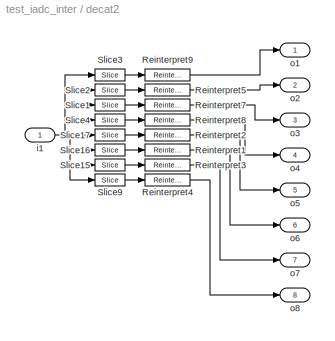
BLOCK [SubSystem] decat2
  FunctionWithSeparateData = off
  MaskHideContents = off
  MinAlgLoopOccurrences = off
  Opaque = off
  Ports = [1, 8]
  PropExecContextOutsideSubsystem = off
  RTWSystemCode = Auto
  RequestExecContextInheritance = off
BLOCK [Reference] decat2/Reinterpret1  REF=xbsIndex_r4/Reinterpret
  Ports = [1, 1]
  SourceBlock = xbsIndex_r4/Reinterpret
  SourceType = Xilinx Type Reinterpreter Block
  arith_type = Signed  (2's comp)
  bin_pt = 7
  block_type = reinterpret
  block_version = 10.1.3
  force_arith_type = on
  force_bin_pt = on
  has_advanced_control = 0
  sg_icon_stat = 45,12,1,1,white,blue,0,6b04d0b0,right,
  sg_mask_display = fprintf('','COMMENT: begin icon graphics');\npatch([0 1 1 0 ],[0 0 1 1 ],[0.77 0.82 0.91]);\npatch([0.422222 0.377778 0.444444 0.377778 0.422222 0.488889 0.511111 0.533333 0.6 0.533333 0.466667 0.422222 0.488889 0.422222 0.466667 0.533333 0.6 0.533333 0.511111 0.488889 0.422222 ],[0.0833333 0.25 0.5 0.75 0.916667 0.916667 0.833333 0.916667 0.916667 0.666667 0.916667 0.75 0.5 0.25 0.0833333 0.33333...<+267ch>  <repeated x16 — deduplicated; at blocks: Reinterpret1, Reinterpret2, Reinterpret3, Reinterpret4, Reinterpret5, Reinterpret7, Reinterpret8, Reinterpret9>
  sggui_pos = 24,255,374,364
BLOCK [Reference] decat2/Reinterpret2  REF=xbsIndex_r4/Reinterpret
  Ports = [1, 1]
  SourceBlock = xbsIndex_r4/Reinterpret
  SourceType = Xilinx Type Reinterpreter Block
  arith_type = Signed  (2's comp)
  bin_pt = 7
  block_type = reinterpret
  block_version = 10.1.3
  force_arith_type = on
  force_bin_pt = on
  has_advanced_control = 0
  sg_icon_stat = 45,12,1,1,white,blue,0,6b04d0b0,right,
  sggui_pos = 25,282,374,364
BLOCK [Reference] decat2/Reinterpret3  REF=xbsIndex_r4/Reinterpret
  Ports = [1, 1]
  SourceBlock = xbsIndex_r4/Reinterpret
  SourceType = Xilinx Type Reinterpreter Block
  arith_type = Signed  (2's comp)
  bin_pt = 7
  block_type = reinterpret
  block_version = 10.1.3
  force_arith_type = on
  force_bin_pt = on
  has_advanced_control = 0
  sg_icon_stat = 45,12,1,1,white,blue,0,6b04d0b0,right,
  sggui_pos = 24,255,374,364
BLOCK [Reference] decat2/Reinterpret4  REF=xbsIndex_r4/Reinterpret
  Ports = [1, 1]
  SourceBlock = xbsIndex_r4/Reinterpret
  SourceType = Xilinx Type Reinterpreter Block
  arith_type = Signed  (2's comp)
  bin_pt = 7
  block_type = reinterpret
  block_version = 10.1.3
  force_arith_type = on
  force_bin_pt = on
  has_advanced_control = 0
  sg_icon_stat = 45,12,1,1,white,blue,0,6b04d0b0,right,
  sggui_pos = 25,282,374,364
BLOCK [Reference] decat2/Reinterpret5  REF=xbsIndex_r4/Reinterpret
  Ports = [1, 1]
  SourceBlock = xbsIndex_r4/Reinterpret
  SourceType = Xilinx Type Reinterpreter Block
  arith_type = Signed  (2's comp)
  bin_pt = 7
  block_type = reinterpret
  block_version = 10.1.3
  force_arith_type = on
  force_bin_pt = on
  has_advanced_control = 0
  sg_icon_stat = 45,12,1,1,white,blue,0,6b04d0b0,right,
  sggui_pos = 24,255,374,364
BLOCK [Reference] decat2/Reinterpret7  REF=xbsIndex_r4/Reinterpret
  Ports = [1, 1]
  SourceBlock = xbsIndex_r4/Reinterpret
  SourceType = Xilinx Type Reinterpreter Block
  arith_type = Signed  (2's comp)
  bin_pt = 7
  block_type = reinterpret
  block_version = 10.1.3
  force_arith_type = on
  force_bin_pt = on
  has_advanced_control = 0
  sg_icon_stat = 45,12,1,1,white,blue,0,6b04d0b0,right,
  sggui_pos = 24,255,374,364
BLOCK [Reference] decat2/Reinterpret8  REF=xbsIndex_r4/Reinterpret
  Ports = [1, 1]
  SourceBlock = xbsIndex_r4/Reinterpret
  SourceType = Xilinx Type Reinterpreter Block
  arith_type = Signed  (2's comp)
  bin_pt = 7
  block_type = reinterpret
  block_version = 10.1.3
  force_arith_type = on
  force_bin_pt = on
  has_advanced_control = 0
  sg_icon_stat = 45,12,1,1,white,blue,0,6b04d0b0,right,
  sggui_pos = 25,282,374,364
BLOCK [Reference] decat2/Reinterpret9  REF=xbsIndex_r4/Reinterpret
  Ports = [1, 1]
  SourceBlock = xbsIndex_r4/Reinterpret
  SourceType = Xilinx Type Reinterpreter Block
  arith_type = Signed  (2's comp)
  bin_pt = 7
  block_type = reinterpret
  block_version = 10.1.3
  force_arith_type = on
  force_bin_pt = on
  has_advanced_control = 0
  sg_icon_stat = 45,12,1,1,white,blue,0,6b04d0b0,right,
  sggui_pos = 25,282,374,364
BLOCK [Reference] decat2/Slice1  REF=xbsIndex_r4/Slice
  Ports = [1, 1]
  SourceBlock = xbsIndex_r4/Slice
  SourceType = Xilinx Bit Slice Extractor Block
  base0 = LSB of Input
  base1 = MSB of Input
  bit0 = 40
  bit1 = 0
  block_type = slice
  block_version = 10.1.3
  boolean_output = off
  dbl_ovrd = off
  has_advanced_control = 0
  infoedit = Extracts a given range of bits from each input sample and presents it at the output.  The output type is ordinarily unsigned with binary point at zero, but can be Boolean when the slice is one bit wide.<br><br>Hardware notes: In hardware this block costs nothing.  <repeated x10 — deduplicated; at blocks: Slice1, Slice2, Slice3, Slice4, Slice29>
  mode = Lower Bit Location + Width
  nbits = 8
  sg_icon_stat = 30,12,1,1,white,blue,0,1fd851a7,right,
  sg_mask_display = fprintf('','COMMENT: begin icon graphics');\npatch([0 1 1 0 ],[0 0 1 1 ],[0.77 0.82 0.91]);\npatch([0.4 0.333333 0.433333 0.333333 0.4 0.5 0.533333 0.566667 0.666667 0.566667 0.466667 0.4 0.5 0.4 0.466667 0.566667 0.666667 0.566667 0.533333 0.5 0.4 ],[0.0833333 0.25 0.5 0.75 0.916667 0.916667 0.833333 0.916667 0.916667 0.666667 0.916667 0.75 0.5 0.25 0.0833333 0.333333 0.0833333 0.0833333 0.166667...<+248ch>  <repeated x16 — deduplicated; at blocks: Slice1, Slice15, Slice16, Slice17, Slice2, Slice3, Slice4, Slice9>
  sggui_pos = 21,51,543,482
BLOCK [Reference] decat2/Slice15  REF=xbsIndex_r4/Slice
  Ports = [1, 1]
  SourceBlock = xbsIndex_r4/Slice
  SourceType = Xilinx Bit Slice Extractor Block
  base0 = LSB of Input
  base1 = MSB of Input
  bit0 = 8
  bit1 = 0
  block_type = slice
  block_version = 10.1.3
  boolean_output = off
  dbl_ovrd = off
  has_advanced_control = 0
  mode = Lower Bit Location + Width
  nbits = 8
  sg_icon_stat = 30,12,1,1,white,blue,0,1fd851a7,right,
  sggui_pos = -1,-1,-1,-1
BLOCK [Reference] decat2/Slice16  REF=xbsIndex_r4/Slice
  Ports = [1, 1]
  SourceBlock = xbsIndex_r4/Slice
  SourceType = Xilinx Bit Slice Extractor Block
  base0 = LSB of Input
  base1 = MSB of Input
  bit0 = 16
  bit1 = 0
  block_type = slice
  block_version = 10.1.3
  boolean_output = off
  dbl_ovrd = off
  has_advanced_control = 0
  mode = Lower Bit Location + Width
  nbits = 8
  sg_icon_stat = 30,12,1,1,white,blue,0,1fd851a7,right,
  sggui_pos = -1,-1,-1,-1
BLOCK [Reference] decat2/Slice17  REF=xbsIndex_r4/Slice
  Ports = [1, 1]
  SourceBlock = xbsIndex_r4/Slice
  SourceType = Xilinx Bit Slice Extractor Block
  base0 = LSB of Input
  base1 = MSB of Input
  bit0 = 24
  bit1 = 0
  block_type = slice
  block_version = 10.1.3
  boolean_output = off
  dbl_ovrd = off
  has_advanced_control = 0
  mode = Lower Bit Location + Width
  nbits = 8
  sg_icon_stat = 30,12,1,1,white,blue,0,1fd851a7,right,
  sggui_pos = 24,255,543,482
BLOCK [Reference] decat2/Slice2  REF=xbsIndex_r4/Slice
  Ports = [1, 1]
  SourceBlock = xbsIndex_r4/Slice
  SourceType = Xilinx Bit Slice Extractor Block
  base0 = LSB of Input
  base1 = MSB of Input
  bit0 = 48
  bit1 = 0
  block_type = slice
  block_version = 10.1.3
  boolean_output = off
  dbl_ovrd = off
  has_advanced_control = 0
  mode = Lower Bit Location + Width
  nbits = 8
  sg_icon_stat = 30,12,1,1,white,blue,0,1fd851a7,right,
  sggui_pos = 21,51,543,482
BLOCK [Reference] decat2/Slice3  REF=xbsIndex_r4/Slice
  Ports = [1, 1]
  SourceBlock = xbsIndex_r4/Slice
  SourceType = Xilinx Bit Slice Extractor Block
  base0 = LSB of Input
  base1 = MSB of Input
  bit0 = 56
  bit1 = 0
  block_type = slice
  block_version = 10.1.3
  boolean_output = off
  dbl_ovrd = off
  has_advanced_control = 0
  mode = Lower Bit Location + Width
  nbits = 8
  sg_icon_stat = 30,12,1,1,white,blue,0,1fd851a7,right,
  sggui_pos = 23,228,543,482
BLOCK [Reference] decat2/Slice4  REF=xbsIndex_r4/Slice
  Ports = [1, 1]
  SourceBlock = xbsIndex_r4/Slice
  SourceType = Xilinx Bit Slice Extractor Block
  base0 = LSB of Input
  base1 = MSB of Input
  bit0 = 32
  bit1 = 0
  block_type = slice
  block_version = 10.1.3
  boolean_output = off
  dbl_ovrd = off
  has_advanced_control = 0
  mode = Lower Bit Location + Width
  nbits = 8
  sg_icon_stat = 30,12,1,1,white,blue,0,1fd851a7,right,
  sggui_pos = 21,51,543,482
BLOCK [Reference] decat2/Slice9  REF=xbsIndex_r4/Slice
  Ports = [1, 1]
  SourceBlock = xbsIndex_r4/Slice
  SourceType = Xilinx Bit Slice Extractor Block
  base0 = LSB of Input
  base1 = MSB of Input
  bit0 = 0
  bit1 = 0
  block_type = slice
  block_version = 10.1.3
  boolean_output = off
  dbl_ovrd = off
  has_advanced_control = 0
  mode = Lower Bit Location + Width
  nbits = 8
  sg_icon_stat = 30,12,1,1,white,blue,0,1fd851a7,right,
  sggui_pos = 22,78,543,482
BLOCK [Inport] decat2/i1
  IconDisplay = Port number
  OutDataType = sfix(16)
  OutScaling = 2^0
BLOCK [Outport] decat2/o1
  IconDisplay = Port number
  OutDataType = sfix(16)
  OutScaling = 2^0
BLOCK [Outport] decat2/o2
  IconDisplay = Port number
  OutDataType = sfix(16)
  OutScaling = 2^0
  Port = 2
BLOCK [Outport] decat2/o3
  IconDisplay = Port number
  OutDataType = sfix(16)
  OutScaling = 2^0
  Port = 3
BLOCK [Outport] decat2/o4
  IconDisplay = Port number
  OutDataType = sfix(16)
  OutScaling = 2^0
  Port = 4
BLOCK [Outport] decat2/o5
  IconDisplay = Port number
  OutDataType = sfix(16)
  OutScaling = 2^0
  Port = 5
BLOCK [Outport] decat2/o6
  IconDisplay = Port number
  OutDataType = sfix(16)
  OutScaling = 2^0
  Port = 6
BLOCK [Outport] decat2/o7
  IconDisplay = Port number
  OutDataType = sfix(16)
  OutScaling = 2^0
  Port = 7
BLOCK [Outport] decat2/o8
  IconDisplay = Port number
  OutDataType = sfix(16)
  OutScaling = 2^0
  Port = 8
BLOCK [SubSystem] decat3
  FunctionWithSeparateData = off
  MaskHideContents = off
  MinAlgLoopOccurrences = off
  Opaque = off
  Ports = [1, 8]
  PropExecContextOutsideSubsystem = off
  RTWSystemCode = Auto
  RequestExecContextInheritance = off
BLOCK [Reference] decat3/Reinterpret1  REF=xbsIndex_r4/Reinterpret
  Ports = [1, 1]
  SourceBlock = xbsIndex_r4/Reinterpret
  SourceType = Xilinx Type Reinterpreter Block
  arith_type = Signed  (2's comp)
  bin_pt = 7
  block_type = reinterpret
  block_version = 10.1.3
  force_arith_type = on
  force_bin_pt = on
  has_advanced_control = 0
  sg_icon_stat = 45,12,1,1,white,blue,0,6b04d0b0,right,
  sggui_pos = 24,255,374,364
BLOCK [Reference] decat3/Reinterpret2  REF=xbsIndex_r4/Reinterpret
  Ports = [1, 1]
  SourceBlock = xbsIndex_r4/Reinterpret
  SourceType = Xilinx Type Reinterpreter Block
  arith_type = Signed  (2's comp)
  bin_pt = 7
  block_type = reinterpret
  block_version = 10.1.3
  force_arith_type = on
  force_bin_pt = on
  has_advanced_control = 0
  sg_icon_stat = 45,12,1,1,white,blue,0,6b04d0b0,right,
  sggui_pos = 25,282,374,364
BLOCK [Reference] decat3/Reinterpret3  REF=xbsIndex_r4/Reinterpret
  Ports = [1, 1]
  SourceBlock = xbsIndex_r4/Reinterpret
  SourceType = Xilinx Type Reinterpreter Block
  arith_type = Signed  (2's comp)
  bin_pt = 7
  block_type = reinterpret
  block_version = 10.1.3
  force_arith_type = on
  force_bin_pt = on
  has_advanced_control = 0
  sg_icon_stat = 45,12,1,1,white,blue,0,6b04d0b0,right,
  sggui_pos = 24,255,374,364
BLOCK [Reference] decat3/Reinterpret4  REF=xbsIndex_r4/Reinterpret
  Ports = [1, 1]
  SourceBlock = xbsIndex_r4/Reinterpret
  SourceType = Xilinx Type Reinterpreter Block
  arith_type = Signed  (2's comp)
  bin_pt = 7
  block_type = reinterpret
  block_version = 10.1.3
  force_arith_type = on
  force_bin_pt = on
  has_advanced_control = 0
  sg_icon_stat = 45,12,1,1,white,blue,0,6b04d0b0,right,
  sggui_pos = 25,282,374,364
BLOCK [Reference] decat3/Reinterpret5  REF=xbsIndex_r4/Reinterpret
  Ports = [1, 1]
  SourceBlock = xbsIndex_r4/Reinterpret
  SourceType = Xilinx Type Reinterpreter Block
  arith_type = Signed  (2's comp)
  bin_pt = 7
  block_type = reinterpret
  block_version = 10.1.3
  force_arith_type = on
  force_bin_pt = on
  has_advanced_control = 0
  sg_icon_stat = 45,12,1,1,white,blue,0,6b04d0b0,right,
  sggui_pos = 24,255,374,364
BLOCK [Reference] decat3/Reinterpret7  REF=xbsIndex_r4/Reinterpret
  Ports = [1, 1]
  SourceBlock = xbsIndex_r4/Reinterpret
  SourceType = Xilinx Type Reinterpreter Block
  arith_type = Signed  (2's comp)
  bin_pt = 7
  block_type = reinterpret
  block_version = 10.1.3
  force_arith_type = on
  force_bin_pt = on
  has_advanced_control = 0
  sg_icon_stat = 45,12,1,1,white,blue,0,6b04d0b0,right,
  sggui_pos = 24,255,374,364
BLOCK [Reference] decat3/Reinterpret8  REF=xbsIndex_r4/Reinterpret
  Ports = [1, 1]
  SourceBlock = xbsIndex_r4/Reinterpret
  SourceType = Xilinx Type Reinterpreter Block
  arith_type = Signed  (2's comp)
  bin_pt = 7
  block_type = reinterpret
  block_version = 10.1.3
  force_arith_type = on
  force_bin_pt = on
  has_advanced_control = 0
  sg_icon_stat = 45,12,1,1,white,blue,0,6b04d0b0,right,
  sggui_pos = 25,282,374,364
BLOCK [Reference] decat3/Reinterpret9  REF=xbsIndex_r4/Reinterpret
  Ports = [1, 1]
  SourceBlock = xbsIndex_r4/Reinterpret
  SourceType = Xilinx Type Reinterpreter Block
  arith_type = Signed  (2's comp)
  bin_pt = 7
  block_type = reinterpret
  block_version = 10.1.3
  force_arith_type = on
  force_bin_pt = on
  has_advanced_control = 0
  sg_icon_stat = 45,12,1,1,white,blue,0,6b04d0b0,right,
  sggui_pos = 25,282,374,364
BLOCK [Reference] decat3/Slice1  REF=xbsIndex_r4/Slice
  Ports = [1, 1]
  SourceBlock = xbsIndex_r4/Slice
  SourceType = Xilinx Bit Slice Extractor Block
  base0 = LSB of Input
  base1 = MSB of Input
  bit0 = 40
  bit1 = 0
  block_type = slice
  block_version = 10.1.3
  boolean_output = off
  dbl_ovrd = off
  has_advanced_control = 0
  mode = Lower Bit Location + Width
  nbits = 8
  sg_icon_stat = 30,12,1,1,white,blue,0,1fd851a7,right,
  sggui_pos = 21,51,543,482
BLOCK [Reference] decat3/Slice15  REF=xbsIndex_r4/Slice
  Ports = [1, 1]
  SourceBlock = xbsIndex_r4/Slice
  SourceType = Xilinx Bit Slice Extractor Block
  base0 = LSB of Input
  base1 = MSB of Input
  bit0 = 8
  bit1 = 0
  block_type = slice
  block_version = 10.1.3
  boolean_output = off
  dbl_ovrd = off
  has_advanced_control = 0
  mode = Lower Bit Location + Width
  nbits = 8
  sg_icon_stat = 30,12,1,1,white,blue,0,1fd851a7,right,
  sggui_pos = -1,-1,-1,-1
BLOCK [Reference] decat3/Slice16  REF=xbsIndex_r4/Slice
  Ports = [1, 1]
  SourceBlock = xbsIndex_r4/Slice
  SourceType = Xilinx Bit Slice Extractor Block
  base0 = LSB of Input
  base1 = MSB of Input
  bit0 = 16
  bit1 = 0
  block_type = slice
  block_version = 10.1.3
  boolean_output = off
  dbl_ovrd = off
  has_advanced_control = 0
  mode = Lower Bit Location + Width
  nbits = 8
  sg_icon_stat = 30,12,1,1,white,blue,0,1fd851a7,right,
  sggui_pos = -1,-1,-1,-1
BLOCK [Reference] decat3/Slice17  REF=xbsIndex_r4/Slice
  Ports = [1, 1]
  SourceBlock = xbsIndex_r4/Slice
  SourceType = Xilinx Bit Slice Extractor Block
  base0 = LSB of Input
  base1 = MSB of Input
  bit0 = 24
  bit1 = 0
  block_type = slice
  block_version = 10.1.3
  boolean_output = off
  dbl_ovrd = off
  has_advanced_control = 0
  mode = Lower Bit Location + Width
  nbits = 8
  sg_icon_stat = 30,12,1,1,white,blue,0,1fd851a7,right,
  sggui_pos = 24,255,543,482
BLOCK [Reference] decat3/Slice2  REF=xbsIndex_r4/Slice
  Ports = [1, 1]
  SourceBlock = xbsIndex_r4/Slice
  SourceType = Xilinx Bit Slice Extractor Block
  base0 = LSB of Input
  base1 = MSB of Input
  bit0 = 48
  bit1 = 0
  block_type = slice
  block_version = 10.1.3
  boolean_output = off
  dbl_ovrd = off
  has_advanced_control = 0
  mode = Lower Bit Location + Width
  nbits = 8
  sg_icon_stat = 30,12,1,1,white,blue,0,1fd851a7,right,
  sggui_pos = 21,51,543,482
BLOCK [Reference] decat3/Slice3  REF=xbsIndex_r4/Slice
  Ports = [1, 1]
  SourceBlock = xbsIndex_r4/Slice
  SourceType = Xilinx Bit Slice Extractor Block
  base0 = LSB of Input
  base1 = MSB of Input
  bit0 = 56
  bit1 = 0
  block_type = slice
  block_version = 10.1.3
  boolean_output = off
  dbl_ovrd = off
  has_advanced_control = 0
  mode = Lower Bit Location + Width
  nbits = 8
  sg_icon_stat = 30,12,1,1,white,blue,0,1fd851a7,right,
  sggui_pos = 23,228,543,482
BLOCK [Reference] decat3/Slice4  REF=xbsIndex_r4/Slice
  Ports = [1, 1]
  SourceBlock = xbsIndex_r4/Slice
  SourceType = Xilinx Bit Slice Extractor Block
  base0 = LSB of Input
  base1 = MSB of Input
  bit0 = 32
  bit1 = 0
  block_type = slice
  block_version = 10.1.3
  boolean_output = off
  dbl_ovrd = off
  has_advanced_control = 0
  mode = Lower Bit Location + Width
  nbits = 8
  sg_icon_stat = 30,12,1,1,white,blue,0,1fd851a7,right,
  sggui_pos = 21,51,543,482
BLOCK [Reference] decat3/Slice9  REF=xbsIndex_r4/Slice
  Ports = [1, 1]
  SourceBlock = xbsIndex_r4/Slice
  SourceType = Xilinx Bit Slice Extractor Block
  base0 = LSB of Input
  base1 = MSB of Input
  bit0 = 0
  bit1 = 0
  block_type = slice
  block_version = 10.1.3
  boolean_output = off
  dbl_ovrd = off
  has_advanced_control = 0
  mode = Lower Bit Location + Width
  nbits = 8
  sg_icon_stat = 30,12,1,1,white,blue,0,1fd851a7,right,
  sggui_pos = 22,78,543,482
BLOCK [Inport] decat3/i1
  IconDisplay = Port number
  OutDataType = sfix(16)
  OutScaling = 2^0
BLOCK [Outport] decat3/o1
  IconDisplay = Port number
  OutDataType = sfix(16)
  OutScaling = 2^0
BLOCK [Outport] decat3/o2
  IconDisplay = Port number
  OutDataType = sfix(16)
  OutScaling = 2^0
  Port = 2
BLOCK [Outport] decat3/o3
  IconDisplay = Port number
  OutDataType = sfix(16)
  OutScaling = 2^0
  Port = 3
BLOCK [Outport] decat3/o4
  IconDisplay = Port number
  OutDataType = sfix(16)
  OutScaling = 2^0
  Port = 4
BLOCK [Outport] decat3/o5
  IconDisplay = Port number
  OutDataType = sfix(16)
  OutScaling = 2^0
  Port = 5
BLOCK [Outport] decat3/o6
  IconDisplay = Port number
  OutDataType = sfix(16)
  OutScaling = 2^0
  Port = 6
BLOCK [Outport] decat3/o7
  IconDisplay = Port number
  OutDataType = sfix(16)
  OutScaling = 2^0
  Port = 7
BLOCK [Outport] decat3/o8
  IconDisplay = Port number
  OutDataType = sfix(16)
  OutScaling = 2^0
  Port = 8
BLOCK [SubSystem] pol_pack0
  FunctionWithSeparateData = off
  MaskHideContents = off
  MinAlgLoopOccurrences = off
  Opaque = off
  Ports = [8, 1]
  PropExecContextOutsideSubsystem = off
  RTWSystemCode = Auto
  RequestExecContextInheritance = off
BLOCK [Reference] pol_pack0/Concat3  REF=xbsIndex_r4/Concat
  Ports = [8, 1]
  SourceBlock = xbsIndex_r4/Concat
  SourceType = Xilinx Bus Concatenator Block
  block_type = concat
  block_version = 10.1.3
  dbl_ovrd = off
  has_advanced_control = 0
  infoedit = Concatenates two or more inputs.  Output will be cast to an unsigned value with the binary point at zero.
  num_inputs = 8
  sg_icon_stat = 25,125,8,1,white,blue,0,43ac8f8f,right,
  sg_mask_display = fprintf('','COMMENT: begin icon graphics');\npatch([0 1 1 0 ],[0 0 1 1 ],[0.77 0.82 0.91]);\npatch([0.24 0.08 0.32 0.08 0.24 0.52 0.6 0.68 0.96 0.72 0.52 0.36 0.56 0.36 0.52 0.72 0.96 0.68 0.6 0.52 0.24 ],[0.424 0.456 0.504 0.552 0.584 0.584 0.568 0.584 0.584 0.536 0.576 0.544 0.504 0.464 0.432 0.472 0.424 0.424 0.44 0.424 0.424 ],[0.98 0.96 0.92]);\nplot([0 1 1 0 0 ],[0 0 1 1 0 ]);\nfprintf('','C...<+198ch>
  sggui_pos = 21,51,336,214
BLOCK [Inport] pol_pack0/In1
  IconDisplay = Port number
BLOCK [Inport] pol_pack0/In2
  IconDisplay = Port number
  Port = 2
BLOCK [Inport] pol_pack0/In3
  IconDisplay = Port number
  Port = 3
BLOCK [Inport] pol_pack0/In4
  IconDisplay = Port number
  Port = 4
BLOCK [Inport] pol_pack0/In5
  IconDisplay = Port number
  Port = 5
BLOCK [Inport] pol_pack0/In6
  IconDisplay = Port number
  Port = 6
BLOCK [Inport] pol_pack0/In7
  IconDisplay = Port number
  Port = 7
BLOCK [Inport] pol_pack0/In8
  IconDisplay = Port number
  Port = 8
BLOCK [Outport] pol_pack0/Out1
  IconDisplay = Port number
BLOCK [Reference] pol_pack0/Reinterpret1  REF=xbsIndex_r4/Reinterpret
  Ports = [1, 1]
  SourceBlock = xbsIndex_r4/Reinterpret
  SourceType = Xilinx Type Reinterpreter Block
  arith_type = Unsigned
  bin_pt = 0
  block_type = reinterpret
  block_version = 10.1.3
  force_arith_type = on
  force_bin_pt = on
  has_advanced_control = 0
  infoedit = Changes signal type without altering the binary representation.   You can changed the signal between signed and unsigned, and relocate the binary point.<P><P>Hardware notes: In hardware this block costs nothing.<P><P>Example:  Suppose the input is 6 bits wide, signed, with 2 fractional bits, and the output is forced to unsigned with 0 fractional bits.  Then an input of -2.0 (1110.00 in binary 2's ...<+55ch>  <repeated x9 — deduplicated; at blocks: Reinterpret1, Reinterpret2, Reinterpret3, Reinterpret4, Reinterpret5, Reinterpret6, Reinterpret7, Reinterpret8, Reinterpret>
  sg_icon_stat = 20,12,1,1,white,blue,0,6b04d0b0,right,
  sg_mask_display = fprintf('','COMMENT: begin icon graphics');\npatch([0 1 1 0 ],[0 0 1 1 ],[0.77 0.82 0.91]);\npatch([0.35 0.25 0.4 0.25 0.35 0.5 0.55 0.6 0.75 0.6 0.45 0.35 0.5 0.35 0.45 0.6 0.75 0.6 0.55 0.5 0.35 ],[0.0833333 0.25 0.5 0.75 0.916667 0.916667 0.833333 0.916667 0.916667 0.666667 0.916667 0.75 0.5 0.25 0.0833333 0.333333 0.0833333 0.0833333 0.166667 0.0833333 0.0833333 ],[0.98 0.96 0.92]);\nplot([0 1...<+185ch>  <repeated x8 — deduplicated; at blocks: Reinterpret1, Reinterpret2, Reinterpret3, Reinterpret4, Reinterpret5, Reinterpret6, Reinterpret7, Reinterpret8>
  sggui_pos = 20,20,336,312
BLOCK [Reference] pol_pack0/Reinterpret2  REF=xbsIndex_r4/Reinterpret
  Ports = [1, 1]
  SourceBlock = xbsIndex_r4/Reinterpret
  SourceType = Xilinx Type Reinterpreter Block
  arith_type = Unsigned
  bin_pt = 0
  block_type = reinterpret
  block_version = 10.1.3
  force_arith_type = on
  force_bin_pt = on
  has_advanced_control = 0
  sg_icon_stat = 20,12,1,1,white,blue,0,6b04d0b0,right,
  sggui_pos = 20,20,336,312
BLOCK [Reference] pol_pack0/Reinterpret3  REF=xbsIndex_r4/Reinterpret
  Ports = [1, 1]
  SourceBlock = xbsIndex_r4/Reinterpret
  SourceType = Xilinx Type Reinterpreter Block
  arith_type = Unsigned
  bin_pt = 0
  block_type = reinterpret
  block_version = 10.1.3
  force_arith_type = on
  force_bin_pt = on
  has_advanced_control = 0
  sg_icon_stat = 20,12,1,1,white,blue,0,6b04d0b0,right,
  sggui_pos = 20,20,336,312
BLOCK [Reference] pol_pack0/Reinterpret4  REF=xbsIndex_r4/Reinterpret
  Ports = [1, 1]
  SourceBlock = xbsIndex_r4/Reinterpret
  SourceType = Xilinx Type Reinterpreter Block
  arith_type = Unsigned
  bin_pt = 0
  block_type = reinterpret
  block_version = 10.1.3
  force_arith_type = on
  force_bin_pt = on
  has_advanced_control = 0
  sg_icon_stat = 20,12,1,1,white,blue,0,6b04d0b0,right,
  sggui_pos = 20,20,336,312
BLOCK [Reference] pol_pack0/Reinterpret5  REF=xbsIndex_r4/Reinterpret
  Ports = [1, 1]
  SourceBlock = xbsIndex_r4/Reinterpret
  SourceType = Xilinx Type Reinterpreter Block
  arith_type = Unsigned
  bin_pt = 0
  block_type = reinterpret
  block_version = 10.1.3
  force_arith_type = on
  force_bin_pt = on
  has_advanced_control = 0
  sg_icon_stat = 20,12,1,1,white,blue,0,6b04d0b0,right,
  sggui_pos = 20,20,336,312
BLOCK [Reference] pol_pack0/Reinterpret6  REF=xbsIndex_r4/Reinterpret
  Ports = [1, 1]
  SourceBlock = xbsIndex_r4/Reinterpret
  SourceType = Xilinx Type Reinterpreter Block
  arith_type = Unsigned
  bin_pt = 0
  block_type = reinterpret
  block_version = 10.1.3
  force_arith_type = on
  force_bin_pt = on
  has_advanced_control = 0
  sg_icon_stat = 20,12,1,1,white,blue,0,6b04d0b0,right,
  sggui_pos = 20,20,336,312
BLOCK [Reference] pol_pack0/Reinterpret7  REF=xbsIndex_r4/Reinterpret
  Ports = [1, 1]
  SourceBlock = xbsIndex_r4/Reinterpret
  SourceType = Xilinx Type Reinterpreter Block
  arith_type = Unsigned
  bin_pt = 0
  block_type = reinterpret
  block_version = 10.1.3
  force_arith_type = on
  force_bin_pt = on
  has_advanced_control = 0
  sg_icon_stat = 20,12,1,1,white,blue,0,6b04d0b0,right,
  sggui_pos = 20,20,336,312
BLOCK [Reference] pol_pack0/Reinterpret8  REF=xbsIndex_r4/Reinterpret
  Ports = [1, 1]
  SourceBlock = xbsIndex_r4/Reinterpret
  SourceType = Xilinx Type Reinterpreter Block
  arith_type = Unsigned
  bin_pt = 0
  block_type = reinterpret
  block_version = 10.1.3
  force_arith_type = on
  force_bin_pt = on
  has_advanced_control = 0
  sg_icon_stat = 20,12,1,1,white,blue,0,6b04d0b0,right,
  sggui_pos = 20,20,336,312
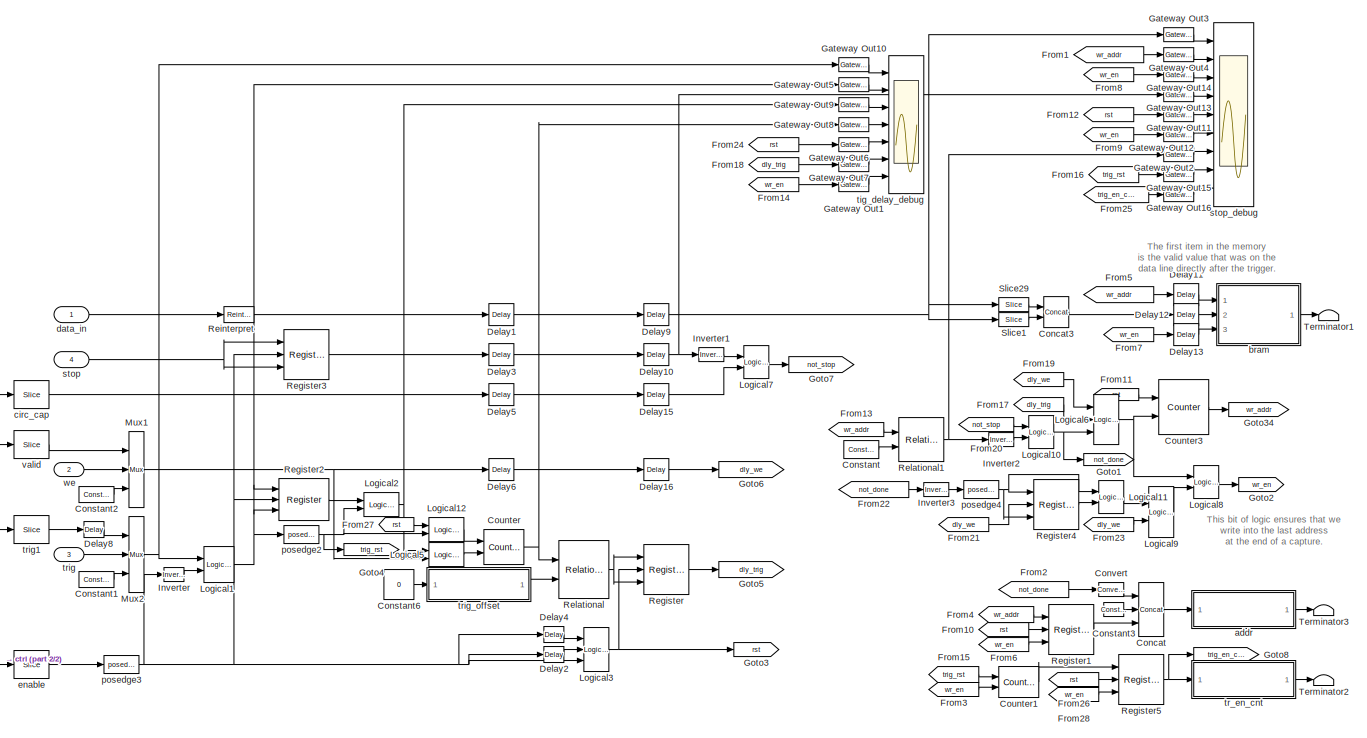
[diagram: snap_adc_raw0 - part 1/2, most of the canvas]
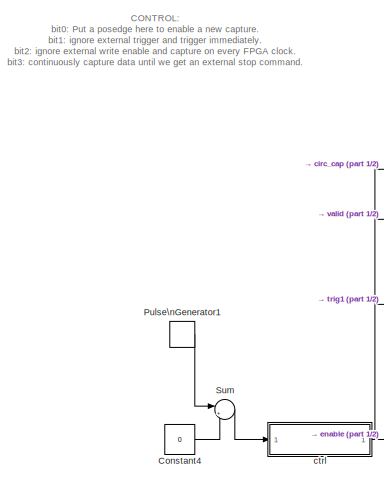
[diagram: snap_adc_raw0 - part 2/2, middle left region]
BLOCK [SubSystem] snap_adc_raw0
  FunctionWithSeparateData = off
  MaskDescription = Backwards compatible with the normal snap block, but with the following upgrades:\n 1) Ability to offset the trigger. Optionally delay the fabric trigger by a user-specified number of valids.\n 2) 'Addr' register's MSb now indicates 'busy capturing'.\n 3) Ability to capture continuously until a stop pulse is received. Data is captured into BRAM continuously, with old data being overwritten until a...<+218ch>
  MaskEnableString = on
  MaskHideContents = off
  MaskIconFrame = on
  MaskIconOpaque = on
  MaskIconRotate = none
  MaskIconUnits = autoscale
  MaskPromptString = Number of Samples (2^?)
  MaskStyleString = edit
  MaskToolTipString = on
  MaskTunableValueString = on
  MaskType = snap_circ
  MaskValueString = 14
  MaskVariables = nsamples=@1;
  MaskVisibilityString = on
  MinAlgLoopOccurrences = off
  Opaque = off
  Ports = [4]
  PropExecContextOutsideSubsystem = off
  RTWSystemCode = Auto
  RequestExecContextInheritance = off
BLOCK [Reference] snap_adc_raw0/Concat  REF=xbsIndex_r4/Concat
  Ports = [3, 1]
  SourceBlock = xbsIndex_r4/Concat
  SourceType = Xilinx Bus Concatenator Block
  block_type = concat
  block_version = 10.1.3
  dbl_ovrd = off
  has_advanced_control = 0
  infoedit = Concatenates two or more inputs.  Output will be cast to an unsigned value with the binary point at zero.
  num_inputs = 3
  sg_icon_stat = 25,54,3,1,white,blue,0,cc9eafd1,right,
  sg_mask_display = fprintf('','COMMENT: begin icon graphics');\npatch([0 1 1 0 ],[0 0 1 1 ],[0.77 0.82 0.91]);\npatch([0.24 0.08 0.32 0.08 0.24 0.52 0.6 0.68 0.96 0.72 0.52 0.36 0.56 0.36 0.52 0.72 0.96 0.68 0.6 0.52 0.24 ],[0.314815 0.388889 0.5 0.611111 0.685185 0.685185 0.648148 0.685185 0.685185 0.574074 0.666667 0.592593 0.5 0.407407 0.333333 0.425926 0.314815 0.314815 0.351852 0.314815 0.314815 ],[0.98 0.96 0....<+252ch>
  sggui_pos = 20,20,336,162
BLOCK [Reference] snap_adc_raw0/Concat3  REF=xbsIndex_r4/Concat
  Ports = [2, 1]
  SourceBlock = xbsIndex_r4/Concat
  SourceType = Xilinx Bus Concatenator Block
  block_type = concat
  block_version = 10.1.3
  dbl_ovrd = off
  has_advanced_control = 0
  infoedit = Concatenates two or more inputs.  Output will be cast to an unsigned value with the binary point at zero.
  num_inputs = 2
  sg_icon_stat = 25,31,2,1,white,blue,0,97b7e8d2,right,
  sg_mask_display = fprintf('','COMMENT: begin icon graphics');\npatch([0 1 1 0 ],[0 0 1 1 ],[0.77 0.82 0.91]);\npatch([0.24 0.08 0.32 0.08 0.24 0.52 0.6 0.68 0.96 0.72 0.52 0.36 0.56 0.36 0.52 0.72 0.96 0.68 0.6 0.52 0.24 ],[0.193548 0.322581 0.516129 0.709677 0.83871 0.83871 0.774194 0.83871 0.83871 0.645161 0.806452 0.677419 0.516129 0.354839 0.225806 0.387097 0.193548 0.193548 0.258065 0.193548 0.193548 ],[0.98 0...<+258ch>
  sggui_pos = 22,78,336,214
BLOCK [Reference] snap_adc_raw0/Constant  REF=xbsIndex_r4/Constant
  Ports = [0, 1]
  SourceBlock = xbsIndex_r4/Constant
  SourceType = Xilinx Constant Block Block
  arith_type = Unsigned
  bin_pt = 0
  block_type = constant
  block_version = 10.1.3
  carry = CIN
  const = (2^nsamples)-1
  dbl_ovrd = off
  dsp48_infoedit = The use of this block for DSP48 instructions is deprecated.  Please use the Opmode block.
  equ = P=C
  explicit_period = on
  has_advanced_control = 0
  inp1 = P
  inp2 = PCIN>>17
  n_bits = nsamples
  opr = +
  opselect = C
  period = 1
  sg_icon_stat = 35,18,0,1,white,blue,0,fddc9e01,right,
  sg_mask_display = fprintf('','COMMENT: begin icon graphics');\npatch([0 1 1 0 ],[0 0 1 1 ],[0.77 0.82 0.91]);\npatch([0.371429 0.285714 0.4 0.285714 0.371429 0.514286 0.542857 0.571429 0.714286 0.6 0.485714 0.4 0.514286 0.4 0.485714 0.6 0.714286 0.571429 0.542857 0.514286 0.371429 ],[0.111111 0.277778 0.5 0.722222 0.888889 0.888889 0.833333 0.888889 0.888889 0.666667 0.888889 0.722222 0.5 0.277778 0.111111 0.333333...<+273ch>
  sggui_pos = 20,20,414,346
BLOCK [Reference] snap_adc_raw0/Constant1  REF=xbsIndex_r4/Constant
  Ports = [0, 1]
  SourceBlock = xbsIndex_r4/Constant
  SourceType = Xilinx Constant Block Block
  arith_type = Boolean
  bin_pt = 0
  block_type = constant
  block_version = 10.1.3
  carry = CIN
  const = 1
  dbl_ovrd = off
  dsp48_infoedit = The use of this block for DSP48 instructions is deprecated.  Please use the Opmode block.
  equ = P=C
  explicit_period = on
  has_advanced_control = 0
  inp1 = P
  inp2 = PCIN>>17
  n_bits = 1
  opr = +
  opselect = C
  period = 1
  sg_icon_stat = 35,16,0,1,white,blue,0,1c72b5be,right,
  sg_mask_display = fprintf('','COMMENT: begin icon graphics');\npatch([0 1 1 0 ],[0 0 1 1 ],[0.77 0.82 0.91]);\npatch([0.4 0.314286 0.428571 0.314286 0.4 0.514286 0.542857 0.571429 0.714286 0.6 0.514286 0.457143 0.571429 0.457143 0.514286 0.6 0.714286 0.571429 0.542857 0.514286 0.4 ],[0.125 0.3125 0.5625 0.8125 1 1 0.9375 1 1 0.75 0.9375 0.8125 0.5625 0.3125 0.1875 0.375 0.125 0.125 0.1875 0.125 0.125 ],[0.98 0.96 0...<+209ch>
  sggui_pos = -1,-1,-1,-1
BLOCK [Reference] snap_adc_raw0/Constant2  REF=xbsIndex_r4/Constant
  Ports = [0, 1]
  SourceBlock = xbsIndex_r4/Constant
  SourceType = Xilinx Constant Block Block
  arith_type = Boolean
  bin_pt = 0
  block_type = constant
  block_version = 10.1.3
  carry = CIN
  const = 1
  dbl_ovrd = off
  dsp48_infoedit = The use of this block for DSP48 instructions is deprecated.  Please use the Opmode block.
  equ = P=C
  explicit_period = on
  has_advanced_control = 0
  inp1 = P
  inp2 = PCIN>>17
  n_bits = 1
  opr = +
  opselect = C
  period = 1
  sg_icon_stat = 35,16,0,1,white,blue,0,1c72b5be,right,
  sg_mask_display = fprintf('','COMMENT: begin icon graphics');\npatch([0 1 1 0 ],[0 0 1 1 ],[0.77 0.82 0.91]);\npatch([0.4 0.314286 0.428571 0.314286 0.4 0.514286 0.542857 0.571429 0.714286 0.6 0.514286 0.457143 0.571429 0.457143 0.514286 0.6 0.714286 0.571429 0.542857 0.514286 0.4 ],[0.125 0.3125 0.5625 0.8125 1 1 0.9375 1 1 0.75 0.9375 0.8125 0.5625 0.3125 0.1875 0.375 0.125 0.125 0.1875 0.125 0.125 ],[0.98 0.96 0...<+209ch>
  sggui_pos = -1,-1,-1,-1
BLOCK [Reference] snap_adc_raw0/Constant3  REF=xbsIndex_r4/Constant
  Ports = [0, 1]
  SourceBlock = xbsIndex_r4/Constant
  SourceType = Xilinx Constant Block Block
  arith_type = Unsigned
  bin_pt = 0
  block_type = constant
  block_version = 10.1.3
  carry = CIN
  const = 0
  dbl_ovrd = off
  dsp48_infoedit = The use of this block for DSP48 instructions is deprecated.  Please use the Opmode block.
  equ = P=C
  explicit_period = on
  has_advanced_control = 0
  inp1 = P
  inp2 = PCIN>>17
  n_bits = 32-nsamples-1
  opr = +
  opselect = C
  period = 1
  sg_icon_stat = 20,14,0,1,white,blue,0,bf4ddd8b,right,
  sg_mask_display = fprintf('','COMMENT: begin icon graphics');\npatch([0 1 1 0 ],[0 0 1 1 ],[0.77 0.82 0.91]);\npatch([0.3 0.2 0.35 0.2 0.3 0.5 0.55 0.6 0.8 0.65 0.5 0.4 0.55 0.4 0.5 0.65 0.8 0.6 0.55 0.5 0.3 ],[0.142857 0.285714 0.5 0.714286 0.857143 0.857143 0.785714 0.857143 0.857143 0.642857 0.857143 0.714286 0.5 0.285714 0.142857 0.357143 0.142857 0.142857 0.214286 0.142857 0.142857 ],[0.98 0.96 0.92]);\nplot([...<+195ch>
  sggui_pos = 20,20,414,346
BLOCK [Constant] snap_adc_raw0/Constant4
  OutDataType = sfix(16)
  OutScaling = 2^0
  Value = 0
BLOCK [Constant] snap_adc_raw0/Constant6
  OutDataType = sfix(16)
  OutScaling = 2^0
  Value = 0
BLOCK [Reference] snap_adc_raw0/Convert  REF=xbsIndex_r4/Convert
  Ports = [1, 1]
  SourceBlock = xbsIndex_r4/Convert
  SourceType = Xilinx Type Converter Block
  arith_type = Unsigned
  bin_pt = 0
  block_type = convert
  block_version = 10.1.3
  dbl_ovrd = off
  has_advanced_control = 0
  infoedit = Hardware notes: rounding and saturating require hardware resources; truncating and wrapping do not.
  latency = 0
  n_bits = 1
  overflow = Wrap
  pipeline = off
  quantization = Truncate
  sg_icon_stat = 25,14,1,1,white,blue,0,edca21da,right,
  sg_mask_display = fprintf('','COMMENT: begin icon graphics');\npatch([0 1 1 0 ],[0 0 1 1 ],[0.77 0.82 0.91]);\npatch([0.32 0.24 0.36 0.24 0.32 0.48 0.52 0.56 0.72 0.6 0.48 0.4 0.52 0.4 0.48 0.6 0.72 0.56 0.52 0.48 0.32 ],[0.142857 0.285714 0.5 0.714286 0.857143 0.857143 0.785714 0.857143 0.857143 0.642857 0.857143 0.714286 0.5 0.285714 0.142857 0.357143 0.142857 0.142857 0.214286 0.142857 0.142857 ],[0.98 0.96 0.92...<+209ch>
  sggui_pos = 20,20,470,336
  xl_area = [0,0,0,0,0,0,0]
  xl_use_area = off
BLOCK [Reference] snap_adc_raw0/Counter  REF=xbsIndex_r4/Counter
  Ports = [2, 1]
  SourceBlock = xbsIndex_r4/Counter
  SourceType = Xilinx Counter Block
  arith_type = Unsigned
  bin_pt = 0
  block_type = counter
  block_version = 10.1.3
  cnt_by_val = 1
  cnt_to = Inf
  cnt_type = Free Running
  dbl_ovrd = off
  en = on
  explicit_period = on
  has_advanced_control = 0
  implementation = Fabric
  infoedit = Hardware notes: Free running counters are the least expensive in hardware.  A count limited counter is implemented by combining a counter with a comparator.
  load_pin = off
  n_bits = 32
  operation = Up
  period = 1
  rst = on
  sg_icon_stat = 40,35,2,1,white,blue,0,d605779c,right,
  sg_mask_display = fprintf('','COMMENT: begin icon graphics');\npatch([0 1 1 0 ],[0 0 1 1 ],[0.77 0.82 0.91]);\npatch([0.275 0.125 0.325 0.125 0.275 0.5 0.575 0.65 0.9 0.7 0.525 0.4 0.6 0.4 0.525 0.7 0.9 0.65 0.575 0.5 0.275 ],[0.114286 0.285714 0.514286 0.742857 0.914286 0.914286 0.828571 0.914286 0.914286 0.685714 0.885714 0.742857 0.514286 0.285714 0.142857 0.342857 0.114286 0.114286 0.2 0.114286 0.114286 ],[0.98...<+307ch>
  sggui_pos = 20,20,348,619
  start_count = 0
  use_behavioral_HDL = off
  use_rpm = on
  xl_area = [0, 0, 0, 0, 0, 0, 0]
  xl_use_area = off
BLOCK [Reference] snap_adc_raw0/Counter1  REF=xbsIndex_r4/Counter
  Ports = [2, 1]
  SourceBlock = xbsIndex_r4/Counter
  SourceType = Xilinx Counter Block
  arith_type = Unsigned
  bin_pt = 0
  block_type = counter
  block_version = 10.1.3
  cnt_by_val = 1
  cnt_to = Inf
  cnt_type = Free Running
  dbl_ovrd = off
  en = on
  explicit_period = on
  has_advanced_control = 0
  implementation = Fabric
  infoedit = Hardware notes: Free running counters are the least expensive in hardware.  A count limited counter is implemented by combining a counter with a comparator.
  load_pin = off
  n_bits = 32
  operation = Up
  period = 1
  rst = on
  sg_icon_stat = 40,31,2,1,white,blue,0,d605779c,right,
  sg_mask_display = fprintf('','COMMENT: begin icon graphics');\npatch([0 1 1 0 ],[0 0 1 1 ],[0.77 0.82 0.91]);\npatch([0.3 0.175 0.35 0.175 0.3 0.5 0.55 0.6 0.825 0.65 0.475 0.35 0.525 0.35 0.475 0.65 0.825 0.6 0.55 0.5 0.3 ],[0.0967742 0.258065 0.483871 0.709677 0.870968 0.870968 0.806452 0.870968 0.870968 0.645161 0.870968 0.709677 0.483871 0.258065 0.0967742 0.322581 0.0967742 0.0967742 0.16129 0.0967742 0.096774...<+316ch>
  sggui_pos = 21,51,419,742
  start_count = 0
  use_behavioral_HDL = off
  use_rpm = on
  xl_area = [0, 0, 0, 0, 0, 0, 0]
  xl_use_area = off
BLOCK [Reference] snap_adc_raw0/Counter3  REF=xbsIndex_r4/Counter
  Ports = [2, 1]
  SourceBlock = xbsIndex_r4/Counter
  SourceType = Xilinx Counter Block
  arith_type = Unsigned
  bin_pt = 0
  block_type = counter
  block_version = 10.1.3
  cnt_by_val = 1
  cnt_to = 1
  cnt_type = Free Running
  dbl_ovrd = off
  en = on
  explicit_period = on
  has_advanced_control = 0
  implementation = Fabric
  infoedit = Hardware notes: Free running counters are the least expensive in hardware.  A count limited counter is implemented by combining a counter with a comparator.
  load_pin = off
  n_bits = nsamples
  operation = Up
  period = 1
  rst = on
  sg_icon_stat = 50,55,2,1,white,blue,0,d605779c,right,
  sg_mask_display = fprintf('','COMMENT: begin icon graphics');\npatch([0 1 1 0 ],[0 0 1 1 ],[0.77 0.82 0.91]);\npatch([0.22 0.06 0.3 0.06 0.22 0.48 0.56 0.64 0.92 0.7 0.48 0.32 0.56 0.32 0.48 0.7 0.92 0.64 0.56 0.48 0.22 ],[0.145455 0.290909 0.509091 0.727273 0.872727 0.872727 0.8 0.872727 0.872727 0.672727 0.872727 0.727273 0.509091 0.290909 0.145455 0.345455 0.145455 0.145455 0.218182 0.145455 0.145455 ],[0.98 0.9...<+303ch>
  sggui_pos = 20,20,348,619
  start_count = 0
  use_behavioral_HDL = off
  use_rpm = on
  xl_area = [0, 0, 0, 0, 0, 0, 0]
  xl_use_area = off
BLOCK [Reference] snap_adc_raw0/Delay1  REF=xbsIndex_r4/Delay
  Ports = [1, 1]
  SourceBlock = xbsIndex_r4/Delay
  SourceType = Xilinx Delay Block
  block_type = delay
  block_version = 10.1.3
  dbl_ovrd = off
  en = off
  has_advanced_control = 0
  infoedit = Hardware notes: A delay line is a chain, each link of which is an SRL16 followed by a flip-flop.
  latency = 1
  reg_retiming = on
  sg_icon_stat = 25,22,1,1,white,blue,0,07b98262,right,
  sg_mask_display = fprintf('','COMMENT: begin icon graphics');\npatch([0 1 1 0 ],[0 0 1 1 ],[0.77 0.82 0.91]);\npatch([0.28 0.12 0.32 0.12 0.28 0.52 0.6 0.68 0.92 0.72 0.52 0.4 0.64 0.4 0.52 0.72 0.92 0.68 0.6 0.52 0.28 ],[0.0909091 0.272727 0.5 0.727273 0.909091 0.909091 0.818182 0.909091 0.909091 0.681818 0.909091 0.772727 0.5 0.227273 0.0909091 0.318182 0.0909091 0.0909091 0.181818 0.0909091 0.0909091 ],[0.98 0.9...<+215ch>  <repeated x11 — deduplicated; at blocks: Delay1, Delay10, Delay11, Delay12, Delay13, Delay15, Delay16, Delay3, Delay5, Delay6, Delay9>
  sggui_pos = -1,-1,-1,-1
  xl_area = [0, 0, 0, 0, 0, 0, 0]
  xl_use_area = off
BLOCK [Reference] snap_adc_raw0/Delay10  REF=xbsIndex_r4/Delay
  Ports = [1, 1]
  SourceBlock = xbsIndex_r4/Delay
  SourceType = Xilinx Delay Block
  block_type = delay
  block_version = 10.1.3
  dbl_ovrd = off
  en = off
  has_advanced_control = 0
  infoedit = Hardware notes: A delay line is a chain, each link of which is an SRL16 followed by a flip-flop.
  latency = 1
  reg_retiming = on
  sg_icon_stat = 25,22,1,1,white,blue,0,07b98262,right,
  sggui_pos = -1,-1,-1,-1
  xl_area = [0, 0, 0, 0, 0, 0, 0]
  xl_use_area = off
BLOCK [Reference] snap_adc_raw0/Delay11  REF=xbsIndex_r4/Delay
  Ports = [1, 1]
  SourceBlock = xbsIndex_r4/Delay
  SourceType = Xilinx Delay Block
  block_type = delay
  block_version = 10.1.3
  dbl_ovrd = off
  en = off
  has_advanced_control = 0
  infoedit = Hardware notes: A delay line is a chain, each link of which is an SRL16 followed by a flip-flop.
  latency = 1
  reg_retiming = on
  sg_icon_stat = 25,22,1,1,white,blue,0,07b98262,right,
  sggui_pos = -1,-1,-1,-1
  xl_area = [0, 0, 0, 0, 0, 0, 0]
  xl_use_area = off
BLOCK [Reference] snap_adc_raw0/Delay12  REF=xbsIndex_r4/Delay
  Ports = [1, 1]
  SourceBlock = xbsIndex_r4/Delay
  SourceType = Xilinx Delay Block
  block_type = delay
  block_version = 10.1.3
  dbl_ovrd = off
  en = off
  has_advanced_control = 0
  infoedit = Hardware notes: A delay line is a chain, each link of which is an SRL16 followed by a flip-flop.
  latency = 1
  reg_retiming = on
  sg_icon_stat = 25,22,1,1,white,blue,0,07b98262,right,
  sggui_pos = -1,-1,-1,-1
  xl_area = [0, 0, 0, 0, 0, 0, 0]
  xl_use_area = off
BLOCK [Reference] snap_adc_raw0/Delay13  REF=xbsIndex_r4/Delay
  Ports = [1, 1]
  SourceBlock = xbsIndex_r4/Delay
  SourceType = Xilinx Delay Block
  block_type = delay
  block_version = 10.1.3
  dbl_ovrd = off
  en = off
  has_advanced_control = 0
  infoedit = Hardware notes: A delay line is a chain, each link of which is an SRL16 followed by a flip-flop.
  latency = 1
  reg_retiming = on
  sg_icon_stat = 25,22,1,1,white,blue,0,07b98262,right,
  sggui_pos = -1,-1,-1,-1
  xl_area = [0, 0, 0, 0, 0, 0, 0]
  xl_use_area = off
BLOCK [Reference] snap_adc_raw0/Delay15  REF=xbsIndex_r4/Delay
  Ports = [1, 1]
  SourceBlock = xbsIndex_r4/Delay
  SourceType = Xilinx Delay Block
  block_type = delay
  block_version = 10.1.3
  dbl_ovrd = off
  en = off
  has_advanced_control = 0
  infoedit = Hardware notes: A delay line is a chain, each link of which is an SRL16 followed by a flip-flop.
  latency = 1
  reg_retiming = on
  sg_icon_stat = 25,22,1,1,white,blue,0,07b98262,right,
  sggui_pos = -1,-1,-1,-1
  xl_area = [0, 0, 0, 0, 0, 0, 0]
  xl_use_area = off
BLOCK [Reference] snap_adc_raw0/Delay16  REF=xbsIndex_r4/Delay
  Ports = [1, 1]
  SourceBlock = xbsIndex_r4/Delay
  SourceType = Xilinx Delay Block
  block_type = delay
  block_version = 10.1.3
  dbl_ovrd = off
  en = off
  has_advanced_control = 0
  infoedit = Hardware notes: A delay line is a chain, each link of which is an SRL16 followed by a flip-flop.
  latency = 1
  reg_retiming = on
  sg_icon_stat = 25,22,1,1,white,blue,0,07b98262,right,
  sggui_pos = 20,20,348,255
  xl_area = [0, 0, 0, 0, 0, 0, 0]
  xl_use_area = off
BLOCK [Reference] snap_adc_raw0/Delay2  REF=xbsIndex_r4/Delay
  Ports = [1, 1]
  SourceBlock = xbsIndex_r4/Delay
  SourceType = Xilinx Delay Block
  block_type = delay
  block_version = 10.1.3
  dbl_ovrd = off
  en = off
  has_advanced_control = 0
  infoedit = Hardware notes: A delay line is a chain, each link of which is an SRL16 followed by a flip-flop.
  latency = 2
  reg_retiming = on
  sg_icon_stat = 20,16,1,1,white,blue,0,85ce9542,right,
  sg_mask_display = fprintf('','COMMENT: begin icon graphics');\npatch([0 1 1 0 ],[0 0 1 1 ],[0.77 0.82 0.91]);\npatch([0.3 0.15 0.35 0.15 0.3 0.5 0.55 0.6 0.85 0.65 0.5 0.4 0.6 0.4 0.5 0.65 0.85 0.6 0.55 0.5 0.3 ],[0.125 0.3125 0.5625 0.8125 1 1 0.9375 1 1 0.75 0.9375 0.8125 0.5625 0.3125 0.1875 0.375 0.125 0.125 0.1875 0.125 0.125 ],[0.98 0.96 0.92]);\nplot([0 1 1 0 0 ],[0 0 1 1 0 ]);\nfprintf('','COMMENT: end icon...<+141ch>  <repeated x3 — deduplicated; at blocks: Delay2, Delay4, Delay8>
  sggui_pos = -1,-1,-1,-1
  xl_area = [0, 0, 0, 0, 0, 0, 0]
  xl_use_area = off
BLOCK [Reference] snap_adc_raw0/Delay3  REF=xbsIndex_r4/Delay
  Ports = [1, 1]
  SourceBlock = xbsIndex_r4/Delay
  SourceType = Xilinx Delay Block
  block_type = delay
  block_version = 10.1.3
  dbl_ovrd = off
  en = off
  has_advanced_control = 0
  infoedit = Hardware notes: A delay line is a chain, each link of which is an SRL16 followed by a flip-flop.
  latency = 1
  reg_retiming = on
  sg_icon_stat = 25,22,1,1,white,blue,0,07b98262,right,
  sggui_pos = -1,-1,-1,-1
  xl_area = [0, 0, 0, 0, 0, 0, 0]
  xl_use_area = off
BLOCK [Reference] snap_adc_raw0/Delay4  REF=xbsIndex_r4/Delay
  Ports = [1, 1]
  SourceBlock = xbsIndex_r4/Delay
  SourceType = Xilinx Delay Block
  block_type = delay
  block_version = 10.1.3
  dbl_ovrd = off
  en = off
  has_advanced_control = 0
  infoedit = Hardware notes: A delay line is a chain, each link of which is an SRL16 followed by a flip-flop.
  latency = 1
  reg_retiming = on
  sg_icon_stat = 20,16,1,1,white,blue,0,07b98262,right,
  sggui_pos = -1,-1,-1,-1
  xl_area = [0, 0, 0, 0, 0, 0, 0]
  xl_use_area = off
BLOCK [Reference] snap_adc_raw0/Delay5  REF=xbsIndex_r4/Delay
  Ports = [1, 1]
  SourceBlock = xbsIndex_r4/Delay
  SourceType = Xilinx Delay Block
  block_type = delay
  block_version = 10.1.3
  dbl_ovrd = off
  en = off
  has_advanced_control = 0
  infoedit = Hardware notes: A delay line is a chain, each link of which is an SRL16 followed by a flip-flop.
  latency = 1
  reg_retiming = on
  sg_icon_stat = 25,22,1,1,white,blue,0,07b98262,right,
  sggui_pos = -1,-1,-1,-1
  xl_area = [0, 0, 0, 0, 0, 0, 0]
  xl_use_area = off
BLOCK [Reference] snap_adc_raw0/Delay6  REF=xbsIndex_r4/Delay
  Ports = [1, 1]
  SourceBlock = xbsIndex_r4/Delay
  SourceType = Xilinx Delay Block
  block_type = delay
  block_version = 10.1.3
  dbl_ovrd = off
  en = off
  has_advanced_control = 0
  infoedit = Hardware notes: A delay line is a chain, each link of which is an SRL16 followed by a flip-flop.
  latency = 1
  reg_retiming = on
  sg_icon_stat = 25,22,1,1,white,blue,0,07b98262,right,
  sggui_pos = -1,-1,-1,-1
  xl_area = [0, 0, 0, 0, 0, 0, 0]
  xl_use_area = off
BLOCK [Reference] snap_adc_raw0/Delay8  REF=xbsIndex_r4/Delay
  Ports = [1, 1]
  SourceBlock = xbsIndex_r4/Delay
  SourceType = Xilinx Delay Block
  block_type = delay
  block_version = 10.1.3
  dbl_ovrd = off
  en = off
  has_advanced_control = 0
  infoedit = Hardware notes: A delay line is a chain, each link of which is an SRL16 followed by a flip-flop.
  latency = 3
  reg_retiming = on
  sg_icon_stat = 20,16,1,1,white,blue,0,83e6bb61,right,
  sggui_pos = 20,20,348,255
  xl_area = [0, 0, 0, 0, 0, 0, 0]
  xl_use_area = off
BLOCK [Reference] snap_adc_raw0/Delay9  REF=xbsIndex_r4/Delay
  Ports = [1, 1]
  SourceBlock = xbsIndex_r4/Delay
  SourceType = Xilinx Delay Block
  block_type = delay
  block_version = 10.1.3
  dbl_ovrd = off
  en = off
  has_advanced_control = 0
  infoedit = Hardware notes: A delay line is a chain, each link of which is an SRL16 followed by a flip-flop.
  latency = 1
  reg_retiming = on
  sg_icon_stat = 25,22,1,1,white,blue,0,07b98262,right,
  sggui_pos = -1,-1,-1,-1
  xl_area = [0, 0, 0, 0, 0, 0, 0]
  xl_use_area = off
BLOCK [From] snap_adc_raw0/From1
  CloseFcn = tagdialog Close
  GotoTag = wr_addr
BLOCK [From] snap_adc_raw0/From10
  CloseFcn = tagdialog Close
  GotoTag = rst
BLOCK [From] snap_adc_raw0/From11
  CloseFcn = tagdialog Close
  GotoTag = rst
BLOCK [From] snap_adc_raw0/From12
  CloseFcn = tagdialog Close
  GotoTag = rst
BLOCK [From] snap_adc_raw0/From13
  CloseFcn = tagdialog Close
  GotoTag = wr_addr
BLOCK [From] snap_adc_raw0/From14
  CloseFcn = tagdialog Close
  GotoTag = wr_en
BLOCK [From] snap_adc_raw0/From15
  CloseFcn = tagdialog Close
  GotoTag = trig_rst
BLOCK [From] snap_adc_raw0/From16
  CloseFcn = tagdialog Close
  GotoTag = trig_rst
BLOCK [From] snap_adc_raw0/From17
  CloseFcn = tagdialog Close
  GotoTag = dly_trig
BLOCK [From] snap_adc_raw0/From18
  CloseFcn = tagdialog Close
  GotoTag = dly_trig
BLOCK [From] snap_adc_raw0/From19
  CloseFcn = tagdialog Close
  GotoTag = dly_we
BLOCK [From] snap_adc_raw0/From2
  CloseFcn = tagdialog Close
  GotoTag = not_done
BLOCK [From] snap_adc_raw0/From20
  CloseFcn = tagdialog Close
  GotoTag = not_stop
BLOCK [From] snap_adc_raw0/From21
  CloseFcn = tagdialog Close
  GotoTag = dly_we
BLOCK [From] snap_adc_raw0/From22
  CloseFcn = tagdialog Close
  GotoTag = not_done
BLOCK [From] snap_adc_raw0/From23
  CloseFcn = tagdialog Close
  GotoTag = dly_we
BLOCK [From] snap_adc_raw0/From24
  CloseFcn = tagdialog Close
  GotoTag = rst
BLOCK [From] snap_adc_raw0/From25
  CloseFcn = tagdialog Close
  GotoTag = trig_en_cnt
BLOCK [From] snap_adc_raw0/From26
  CloseFcn = tagdialog Close
  GotoTag = rst
BLOCK [From] snap_adc_raw0/From27
  CloseFcn = tagdialog Close
  GotoTag = rst
BLOCK [From] snap_adc_raw0/From28
  CloseFcn = tagdialog Close
  GotoTag = wr_en
BLOCK [From] snap_adc_raw0/From3
  CloseFcn = tagdialog Close
  GotoTag = wr_en
BLOCK [From] snap_adc_raw0/From4
  CloseFcn = tagdialog Close
  GotoTag = wr_addr
BLOCK [From] snap_adc_raw0/From5
  CloseFcn = tagdialog Close
  GotoTag = wr_addr
BLOCK [From] snap_adc_raw0/From6
  CloseFcn = tagdialog Close
  GotoTag = wr_en
BLOCK [From] snap_adc_raw0/From7
  CloseFcn = tagdialog Close
  GotoTag = wr_en
BLOCK [From] snap_adc_raw0/From8
  CloseFcn = tagdialog Close
  GotoTag = wr_en
BLOCK [From] snap_adc_raw0/From9
  CloseFcn = tagdialog Close
  GotoTag = wr_en
BLOCK [Reference] snap_adc_raw0/Gateway Out1  REF=xbsIndex_r4/Gateway Out
  LOCs = {}
  Ports = [1, 1]
  SourceBlock = xbsIndex_r4/Gateway Out
  SourceType = Xilinx Gateway Out Block
  block_type = gatewayout
  block_version = 10.1.3
  has_advanced_control = 0
  hdl_port = off
  infoedit = Gateway out block.  Converts Xilinx fixed point inputs into ouputs of type Simulink integer, double, or fixed point.<P><P>Hardware notes:  In hardware these blocks become top level output ports or are discarded, depending on how they are configured.  <repeated x20 — deduplicated; at blocks: Gateway Out1, Gateway Out10, Gateway Out11, Gateway Out12, Gateway Out13, Gateway Out14, Gateway Out15, Gateway Out16, Gateway Out2, Gateway Out3, Gateway Out4, Gateway Out5, Gateway Out6, Gateway Out7, Gateway Out8, Gateway Out9, +4 more>
  locs_specified = off
  sg_icon_stat = 30,14,1,1,white,grey,0,632ec840,right,
  sg_mask_display = fprintf('','COMMENT: begin icon graphics');\npatch([0 1 1 0 ],[0 0 1 1 ],[0.88 0.88 0.88]);\npatch([0.366667 0.3 0.4 0.3 0.366667 0.5 0.533333 0.566667 0.7 0.6 0.5 0.433333 0.533333 0.433333 0.5 0.6 0.7 0.566667 0.533333 0.5 0.366667 ],[0.142857 0.285714 0.5 0.714286 0.857143 0.857143 0.785714 0.857143 0.857143 0.642857 0.857143 0.714286 0.5 0.285714 0.142857 0.357143 0.142857 0.142857 0.214286 0....<+317ch>  <repeated x16 — deduplicated; at blocks: Gateway Out1, Gateway Out10, Gateway Out11, Gateway Out12, Gateway Out13, Gateway Out14, Gateway Out15, Gateway Out16, Gateway Out2, Gateway Out3, Gateway Out4, Gateway Out5, Gateway Out6, Gateway Out7, Gateway Out8, Gateway Out9>
  sggui_pos = -1,-1,-1,-1
  timing_constraint = None
  xl_area = [0, 0, 0, 0, 0, 0, 0]
  xl_use_area = off
BLOCK [Reference] snap_adc_raw0/Gateway Out10  REF=xbsIndex_r4/Gateway Out
  LOCs = {}
  Ports = [1, 1]
  SourceBlock = xbsIndex_r4/Gateway Out
  SourceType = Xilinx Gateway Out Block
  block_type = gatewayout
  block_version = 10.1.3
  has_advanced_control = 0
  hdl_port = off
  locs_specified = off
  sg_icon_stat = 30,14,1,1,white,grey,0,632ec840,right,
  sggui_pos = -1,-1,-1,-1
  timing_constraint = None
  xl_area = [0, 0, 0, 0, 0, 0, 0]
  xl_use_area = off
BLOCK [Reference] snap_adc_raw0/Gateway Out11  REF=xbsIndex_r4/Gateway Out
  LOCs = {}
  Ports = [1, 1]
  SourceBlock = xbsIndex_r4/Gateway Out
  SourceType = Xilinx Gateway Out Block
  block_type = gatewayout
  block_version = 10.1.3
  has_advanced_control = 0
  hdl_port = off
  locs_specified = off
  sg_icon_stat = 30,14,1,1,white,grey,0,632ec840,right,
  sggui_pos = -1,-1,-1,-1
  timing_constraint = None
  xl_area = [0, 0, 0, 0, 0, 0, 0]
  xl_use_area = off
BLOCK [Reference] snap_adc_raw0/Gateway Out12  REF=xbsIndex_r4/Gateway Out
  LOCs = {}
  Ports = [1, 1]
  SourceBlock = xbsIndex_r4/Gateway Out
  SourceType = Xilinx Gateway Out Block
  block_type = gatewayout
  block_version = 10.1.3
  has_advanced_control = 0
  hdl_port = off
  locs_specified = off
  sg_icon_stat = 30,14,1,1,white,grey,0,632ec840,right,
  sggui_pos = -1,-1,-1,-1
  timing_constraint = None
  xl_area = [0, 0, 0, 0, 0, 0, 0]
  xl_use_area = off
BLOCK [Reference] snap_adc_raw0/Gateway Out13  REF=xbsIndex_r4/Gateway Out
  LOCs = {}
  Ports = [1, 1]
  SourceBlock = xbsIndex_r4/Gateway Out
  SourceType = Xilinx Gateway Out Block
  block_type = gatewayout
  block_version = 10.1.3
  has_advanced_control = 0
  hdl_port = off
  locs_specified = off
  sg_icon_stat = 30,14,1,1,white,grey,0,632ec840,right,
  sggui_pos = -1,-1,-1,-1
  timing_constraint = None
  xl_area = [0, 0, 0, 0, 0, 0, 0]
  xl_use_area = off
BLOCK [Reference] snap_adc_raw0/Gateway Out14  REF=xbsIndex_r4/Gateway Out
  LOCs = {}
  Ports = [1, 1]
  SourceBlock = xbsIndex_r4/Gateway Out
  SourceType = Xilinx Gateway Out Block
  block_type = gatewayout
  block_version = 10.1.3
  has_advanced_control = 0
  hdl_port = off
  locs_specified = off
  sg_icon_stat = 30,14,1,1,white,grey,0,632ec840,right,
  sggui_pos = -1,-1,-1,-1
  timing_constraint = None
  xl_area = [0, 0, 0, 0, 0, 0, 0]
  xl_use_area = off
BLOCK [Reference] snap_adc_raw0/Gateway Out15  REF=xbsIndex_r4/Gateway Out
  LOCs = {}
  Ports = [1, 1]
  SourceBlock = xbsIndex_r4/Gateway Out
  SourceType = Xilinx Gateway Out Block
  block_type = gatewayout
  block_version = 10.1.3
  has_advanced_control = 0
  hdl_port = off
  locs_specified = off
  sg_icon_stat = 30,14,1,1,white,grey,0,632ec840,right,
  sggui_pos = -1,-1,-1,-1
  timing_constraint = None
  xl_area = [0, 0, 0, 0, 0, 0, 0]
  xl_use_area = off
BLOCK [Reference] snap_adc_raw0/Gateway Out16  REF=xbsIndex_r4/Gateway Out
  LOCs = {}
  Ports = [1, 1]
  SourceBlock = xbsIndex_r4/Gateway Out
  SourceType = Xilinx Gateway Out Block
  block_type = gatewayout
  block_version = 10.1.3
  has_advanced_control = 0
  hdl_port = off
  locs_specified = off
  sg_icon_stat = 30,14,1,1,white,grey,0,632ec840,right,
  sggui_pos = -1,-1,-1,-1
  timing_constraint = None
  xl_area = [0, 0, 0, 0, 0, 0, 0]
  xl_use_area = off
BLOCK [Reference] snap_adc_raw0/Gateway Out2  REF=xbsIndex_r4/Gateway Out
  LOCs = {}
  Ports = [1, 1]
  SourceBlock = xbsIndex_r4/Gateway Out
  SourceType = Xilinx Gateway Out Block
  block_type = gatewayout
  block_version = 10.1.3
  has_advanced_control = 0
  hdl_port = off
  locs_specified = off
  sg_icon_stat = 30,14,1,1,white,grey,0,632ec840,right,
  sggui_pos = -1,-1,-1,-1
  timing_constraint = None
  xl_area = [0, 0, 0, 0, 0, 0, 0]
  xl_use_area = off
BLOCK [Reference] snap_adc_raw0/Gateway Out3  REF=xbsIndex_r4/Gateway Out
  LOCs = {}
  Ports = [1, 1]
  SourceBlock = xbsIndex_r4/Gateway Out
  SourceType = Xilinx Gateway Out Block
  block_type = gatewayout
  block_version = 10.1.3
  has_advanced_control = 0
  hdl_port = off
  locs_specified = off
  sg_icon_stat = 30,14,1,1,white,grey,0,632ec840,right,
  sggui_pos = -1,-1,-1,-1
  timing_constraint = None
  xl_area = [0, 0, 0, 0, 0, 0, 0]
  xl_use_area = off
BLOCK [Reference] snap_adc_raw0/Gateway Out4  REF=xbsIndex_r4/Gateway Out
  LOCs = {}
  Ports = [1, 1]
  SourceBlock = xbsIndex_r4/Gateway Out
  SourceType = Xilinx Gateway Out Block
  block_type = gatewayout
  block_version = 10.1.3
  has_advanced_control = 0
  hdl_port = off
  locs_specified = off
  sg_icon_stat = 30,14,1,1,white,grey,0,632ec840,right,
  sggui_pos = -1,-1,-1,-1
  timing_constraint = None
  xl_area = [0, 0, 0, 0, 0, 0, 0]
  xl_use_area = off
BLOCK [Reference] snap_adc_raw0/Gateway Out5  REF=xbsIndex_r4/Gateway Out
  LOCs = {}
  Ports = [1, 1]
  SourceBlock = xbsIndex_r4/Gateway Out
  SourceType = Xilinx Gateway Out Block
  block_type = gatewayout
  block_version = 10.1.3
  has_advanced_control = 0
  hdl_port = off
  locs_specified = off
  sg_icon_stat = 30,14,1,1,white,grey,0,632ec840,right,
  sggui_pos = -1,-1,-1,-1
  timing_constraint = None
  xl_area = [0, 0, 0, 0, 0, 0, 0]
  xl_use_area = off
BLOCK [Reference] snap_adc_raw0/Gateway Out6  REF=xbsIndex_r4/Gateway Out
  LOCs = {}
  Ports = [1, 1]
  SourceBlock = xbsIndex_r4/Gateway Out
  SourceType = Xilinx Gateway Out Block
  block_type = gatewayout
  block_version = 10.1.3
  has_advanced_control = 0
  hdl_port = off
  locs_specified = off
  sg_icon_stat = 30,14,1,1,white,grey,0,632ec840,right,
  sggui_pos = -1,-1,-1,-1
  timing_constraint = None
  xl_area = [0, 0, 0, 0, 0, 0, 0]
  xl_use_area = off
BLOCK [Reference] snap_adc_raw0/Gateway Out7  REF=xbsIndex_r4/Gateway Out
  LOCs = {}
  Ports = [1, 1]
  SourceBlock = xbsIndex_r4/Gateway Out
  SourceType = Xilinx Gateway Out Block
  block_type = gatewayout
  block_version = 10.1.3
  has_advanced_control = 0
  hdl_port = off
  locs_specified = off
  sg_icon_stat = 30,14,1,1,white,grey,0,632ec840,right,
  sggui_pos = -1,-1,-1,-1
  timing_constraint = None
  xl_area = [0, 0, 0, 0, 0, 0, 0]
  xl_use_area = off
BLOCK [Reference] snap_adc_raw0/Gateway Out8  REF=xbsIndex_r4/Gateway Out
  LOCs = {}
  Ports = [1, 1]
  SourceBlock = xbsIndex_r4/Gateway Out
  SourceType = Xilinx Gateway Out Block
  block_type = gatewayout
  block_version = 10.1.3
  has_advanced_control = 0
  hdl_port = off
  locs_specified = off
  sg_icon_stat = 30,14,1,1,white,grey,0,632ec840,right,
  sggui_pos = -1,-1,-1,-1
  timing_constraint = None
  xl_area = [0, 0, 0, 0, 0, 0, 0]
  xl_use_area = off
BLOCK [Reference] snap_adc_raw0/Gateway Out9  REF=xbsIndex_r4/Gateway Out
  LOCs = {}
  Ports = [1, 1]
  SourceBlock = xbsIndex_r4/Gateway Out
  SourceType = Xilinx Gateway Out Block
  block_type = gatewayout
  block_version = 10.1.3
  has_advanced_control = 0
  hdl_port = off
  locs_specified = off
  sg_icon_stat = 30,14,1,1,white,grey,0,632ec840,right,
  sggui_pos = -1,-1,-1,-1
  timing_constraint = None
  xl_area = [0, 0, 0, 0, 0, 0, 0]
  xl_use_area = off
BLOCK [Goto] snap_adc_raw0/Goto1
  GotoTag = not_done
  TagVisibility = local
BLOCK [Goto] snap_adc_raw0/Goto2
  GotoTag = wr_en
  TagVisibility = local
BLOCK [Goto] snap_adc_raw0/Goto3
  GotoTag = rst
  TagVisibility = local
BLOCK [Goto] snap_adc_raw0/Goto34
  GotoTag = wr_addr
  TagVisibility = local
BLOCK [Goto] snap_adc_raw0/Goto4
  GotoTag = trig_rst
  TagVisibility = local
BLOCK [Goto] snap_adc_raw0/Goto5
  GotoTag = dly_trig
  TagVisibility = local
BLOCK [Goto] snap_adc_raw0/Goto6
  GotoTag = dly_we
  TagVisibility = local
BLOCK [Goto] snap_adc_raw0/Goto7
  GotoTag = not_stop
  TagVisibility = local
BLOCK [Goto] snap_adc_raw0/Goto8
  GotoTag = trig_en_cnt
  TagVisibility = local
BLOCK [Reference] snap_adc_raw0/Inverter  REF=xbsIndex_r4/Inverter
  Ports = [1, 1]
  SourceBlock = xbsIndex_r4/Inverter
  SourceType = Xilinx Inverter Block
  block_type = inv
  block_version = 10.1.3
  dbl_ovrd = off
  en = off
  has_advanced_control = 0
  infoedit = Bitwise logical negation (one's complement) operator.
  latency = 0
  sg_icon_stat = 20,14,1,1,white,blue,0,267846e5,right,
  sg_mask_display = fprintf('','COMMENT: begin icon graphics');\npatch([0 1 1 0 ],[0 0 1 1 ],[0.77 0.82 0.91]);\npatch([0.3 0.2 0.35 0.2 0.3 0.5 0.55 0.6 0.8 0.65 0.5 0.4 0.55 0.4 0.5 0.65 0.8 0.6 0.55 0.5 0.3 ],[0.142857 0.285714 0.5 0.714286 0.857143 0.857143 0.785714 0.857143 0.857143 0.642857 0.857143 0.714286 0.5 0.285714 0.142857 0.357143 0.142857 0.142857 0.214286 0.142857 0.142857 ],[0.98 0.96 0.92]);\nplot([...<+180ch>
  sggui_pos = -1,-1,-1,-1
  xl_area = [0, 0, 0, 0, 0, 0, 0]
  xl_use_area = off
BLOCK [Reference] snap_adc_raw0/Inverter1  REF=xbsIndex_r4/Inverter
  Ports = [1, 1]
  SourceBlock = xbsIndex_r4/Inverter
  SourceType = Xilinx Inverter Block
  block_type = inv
  block_version = 10.1.3
  dbl_ovrd = off
  en = off
  has_advanced_control = 0
  infoedit = Bitwise logical negation (one's complement) operator.
  latency = 0
  sg_icon_stat = 25,14,1,1,white,blue,0,267846e5,right,
  sg_mask_display = fprintf('','COMMENT: begin icon graphics');\npatch([0 1 1 0 ],[0 0 1 1 ],[0.77 0.82 0.91]);\npatch([0.32 0.24 0.36 0.24 0.32 0.48 0.52 0.56 0.72 0.6 0.48 0.4 0.52 0.4 0.48 0.6 0.72 0.56 0.52 0.48 0.32 ],[0.142857 0.285714 0.5 0.714286 0.857143 0.857143 0.785714 0.857143 0.857143 0.642857 0.857143 0.714286 0.5 0.285714 0.142857 0.357143 0.142857 0.142857 0.214286 0.142857 0.142857 ],[0.98 0.96 0.92...<+191ch>  <repeated x3 — deduplicated; at blocks: Inverter1, Inverter2, Inverter3>
  sggui_pos = -1,-1,-1,-1
  xl_area = [0, 0, 0, 0, 0, 0, 0]
  xl_use_area = off
BLOCK [Reference] snap_adc_raw0/Inverter2  REF=xbsIndex_r4/Inverter
  Ports = [1, 1]
  SourceBlock = xbsIndex_r4/Inverter
  SourceType = Xilinx Inverter Block
  block_type = inv
  block_version = 10.1.3
  dbl_ovrd = off
  en = off
  has_advanced_control = 0
  infoedit = Bitwise logical negation (one's complement) operator.
  latency = 0
  sg_icon_stat = 25,14,1,1,white,blue,0,267846e5,right,
  sggui_pos = -1,-1,-1,-1
  xl_area = [0, 0, 0, 0, 0, 0, 0]
  xl_use_area = off
BLOCK [Reference] snap_adc_raw0/Inverter3  REF=xbsIndex_r4/Inverter
  Ports = [1, 1]
  SourceBlock = xbsIndex_r4/Inverter
  SourceType = Xilinx Inverter Block
  block_type = inv
  block_version = 10.1.3
  dbl_ovrd = off
  en = off
  has_advanced_control = 0
  infoedit = Bitwise logical negation (one's complement) operator.
  latency = 0
  sg_icon_stat = 25,14,1,1,white,blue,0,267846e5,right,
  sggui_pos = -1,-1,-1,-1
  xl_area = [0, 0, 0, 0, 0, 0, 0]
  xl_use_area = off
BLOCK [Reference] snap_adc_raw0/Logical1  REF=xbsIndex_r4/Logical
  Ports = [2, 1]
  SourceBlock = xbsIndex_r4/Logical
  SourceType = Xilinx Logical Block Block
  align_bp = on
  arith_type = Unsigned
  bin_pt = 2
  block_type = logical
  block_version = 10.1.3
  dbl_ovrd = off
  en = off
  has_advanced_control = 0
  inputs = 2
  latency = 0
  logical_function = AND
  n_bits = 8
  precision = Full
  sg_icon_stat = 30,36,2,1,white,blue,0,0a851f85,right,
  sg_mask_display = fprintf('','COMMENT: begin icon graphics');\npatch([0 1 1 0 ],[0 0 1 1 ],[0.77 0.82 0.91]);\npatch([0.233333 0.0666667 0.3 0.0666667 0.233333 0.5 0.566667 0.633333 0.9 0.666667 0.466667 0.3 0.5 0.3 0.466667 0.666667 0.9 0.633333 0.566667 0.5 0.233333 ],[0.166667 0.305556 0.5 0.694444 0.833333 0.833333 0.777778 0.833333 0.833333 0.638889 0.805556 0.666667 0.5 0.333333 0.194444 0.361111 0.166667 0.1...<+280ch>
  sggui_pos = -1,-1,-1,-1
  xl_area = [0, 0, 0, 0, 0, 0, 0]
  xl_use_area = off
BLOCK [Reference] snap_adc_raw0/Logical10  REF=xbsIndex_r4/Logical
  Ports = [2, 1]
  SourceBlock = xbsIndex_r4/Logical
  SourceType = Xilinx Logical Block Block
  align_bp = on
  arith_type = Unsigned
  bin_pt = 2
  block_type = logical
  block_version = 10.1.3
  dbl_ovrd = off
  en = off
  has_advanced_control = 0
  inputs = 2
  latency = 0
  logical_function = OR
  n_bits = 8
  precision = Full
  sg_icon_stat = 25,33,2,1,white,blue,0,fc354646,right,
  sg_mask_display = fprintf('','COMMENT: begin icon graphics');\npatch([0 1 1 0 ],[0 0 1 1 ],[0.77 0.82 0.91]);\npatch([0.24 0.08 0.32 0.08 0.24 0.52 0.6 0.68 0.96 0.72 0.52 0.36 0.56 0.36 0.52 0.72 0.96 0.68 0.6 0.52 0.24 ],[0.212121 0.333333 0.515152 0.69697 0.818182 0.818182 0.757576 0.818182 0.818182 0.636364 0.787879 0.666667 0.515152 0.363636 0.242424 0.393939 0.212121 0.212121 0.272727 0.212121 0.212121 ],[0.9...<+240ch>  <repeated x3 — deduplicated; at blocks: Logical10, Logical11, Logical8>
  sggui_pos = 20,20,348,262
  xl_area = [0, 0, 0, 0, 0, 0, 0]
  xl_use_area = off
BLOCK [Reference] snap_adc_raw0/Logical11  REF=xbsIndex_r4/Logical
  Ports = [2, 1]
  SourceBlock = xbsIndex_r4/Logical
  SourceType = Xilinx Logical Block Block
  align_bp = on
  arith_type = Unsigned
  bin_pt = 2
  block_type = logical
  block_version = 10.1.3
  dbl_ovrd = off
  en = off
  has_advanced_control = 0
  inputs = 2
  latency = 0
  logical_function = OR
  n_bits = 8
  precision = Full
  sg_icon_stat = 25,33,2,1,white,blue,0,fc354646,right,
  sggui_pos = 20,20,348,262
  xl_area = [0, 0, 0, 0, 0, 0, 0]
  xl_use_area = off
BLOCK [Reference] snap_adc_raw0/Logical12  REF=xbsIndex_r4/Logical
  Ports = [2, 1]
  SourceBlock = xbsIndex_r4/Logical
  SourceType = Xilinx Logical Block Block
  align_bp = on
  arith_type = Unsigned
  bin_pt = 2
  block_type = logical
  block_version = 10.1.3
  dbl_ovrd = off
  en = off
  has_advanced_control = 0
  inputs = 2
  latency = 0
  logical_function = OR
  n_bits = 8
  precision = Full
  sg_icon_stat = 35,24,2,1,white,blue,0,fc354646,right,
  sg_mask_display = fprintf('','COMMENT: begin icon graphics');\npatch([0 1 1 0 ],[0 0 1 1 ],[0.77 0.82 0.91]);\npatch([0.314286 0.2 0.371429 0.2 0.314286 0.485714 0.542857 0.6 0.8 0.657143 0.514286 0.4 0.571429 0.4 0.514286 0.657143 0.8 0.6 0.542857 0.485714 0.314286 ],[0.125 0.291667 0.541667 0.791667 0.958333 0.958333 0.875 0.958333 0.958333 0.75 0.958333 0.791667 0.541667 0.291667 0.125 0.333333 0.125 0.125 0.208...<+262ch>
  sggui_pos = -1,-1,-1,-1
  xl_area = [0, 0, 0, 0, 0, 0, 0]
  xl_use_area = off
BLOCK [Reference] snap_adc_raw0/Logical2  REF=xbsIndex_r4/Logical
  Ports = [2, 1]
  SourceBlock = xbsIndex_r4/Logical
  SourceType = Xilinx Logical Block Block
  align_bp = on
  arith_type = Unsigned
  bin_pt = 2
  block_type = logical
  block_version = 10.1.3
  dbl_ovrd = off
  en = off
  has_advanced_control = 0
  inputs = 2
  latency = 0
  logical_function = OR
  n_bits = 8
  precision = Full
  sg_icon_stat = 35,24,2,1,white,blue,0,fc354646,right,
  sg_mask_display = fprintf('','COMMENT: begin icon graphics');\npatch([0 1 1 0 ],[0 0 1 1 ],[0.77 0.82 0.91]);\npatch([0.314286 0.2 0.371429 0.2 0.314286 0.485714 0.542857 0.6 0.8 0.657143 0.514286 0.4 0.571429 0.4 0.514286 0.657143 0.8 0.6 0.542857 0.485714 0.314286 ],[0.125 0.291667 0.541667 0.791667 0.958333 0.958333 0.875 0.958333 0.958333 0.75 0.958333 0.791667 0.541667 0.291667 0.125 0.333333 0.125 0.125 0.208...<+262ch>
  sggui_pos = -1,-1,-1,-1
  xl_area = [0, 0, 0, 0, 0, 0, 0]
  xl_use_area = off
BLOCK [Reference] snap_adc_raw0/Logical3  REF=xbsIndex_r4/Logical
  Ports = [3, 1]
  SourceBlock = xbsIndex_r4/Logical
  SourceType = Xilinx Logical Block Block
  align_bp = on
  arith_type = Unsigned
  bin_pt = 2
  block_type = logical
  block_version = 10.1.3
  dbl_ovrd = off
  en = off
  has_advanced_control = 0
  inputs = 3
  latency = 0
  logical_function = OR
  n_bits = 8
  precision = Full
  sg_icon_stat = 25,44,3,1,white,blue,0,3b775cd1,right,
  sg_mask_display = fprintf('','COMMENT: begin icon graphics');\npatch([0 1 1 0 ],[0 0 1 1 ],[0.77 0.82 0.91]);\npatch([0.24 0.08 0.32 0.08 0.24 0.52 0.6 0.68 0.96 0.72 0.52 0.36 0.56 0.36 0.52 0.72 0.96 0.68 0.6 0.52 0.24 ],[0.272727 0.363636 0.5 0.636364 0.727273 0.727273 0.681818 0.727273 0.727273 0.590909 0.704545 0.613636 0.5 0.386364 0.295455 0.409091 0.272727 0.272727 0.318182 0.272727 0.272727 ],[0.98 0.96 0....<+231ch>
  sggui_pos = -1,-1,-1,-1
  xl_area = [0, 0, 0, 0, 0, 0, 0]
  xl_use_area = off
BLOCK [Reference] snap_adc_raw0/Logical5  REF=xbsIndex_r4/Logical
  Ports = [2, 1]
  SourceBlock = xbsIndex_r4/Logical
  SourceType = Xilinx Logical Block Block
  align_bp = on
  arith_type = Unsigned
  bin_pt = 2
  block_type = logical
  block_version = 10.1.3
  dbl_ovrd = off
  en = off
  has_advanced_control = 0
  inputs = 2
  latency = 0
  logical_function = AND
  n_bits = 8
  precision = Full
  sg_icon_stat = 35,24,2,1,white,blue,0,0a851f85,right,
  sg_mask_display = fprintf('','COMMENT: begin icon graphics');\npatch([0 1 1 0 ],[0 0 1 1 ],[0.77 0.82 0.91]);\npatch([0.314286 0.2 0.371429 0.2 0.314286 0.485714 0.542857 0.6 0.8 0.657143 0.514286 0.4 0.571429 0.4 0.514286 0.657143 0.8 0.6 0.542857 0.485714 0.314286 ],[0.125 0.291667 0.541667 0.791667 0.958333 0.958333 0.875 0.958333 0.958333 0.75 0.958333 0.791667 0.541667 0.291667 0.125 0.333333 0.125 0.125 0.208...<+263ch>
  sggui_pos = 20,20,348,261
  xl_area = [0, 0, 0, 0, 0, 0, 0]
  xl_use_area = off
BLOCK [Reference] snap_adc_raw0/Logical6  REF=xbsIndex_r4/Logical
  Ports = [3, 1]
  SourceBlock = xbsIndex_r4/Logical
  SourceType = Xilinx Logical Block Block
  align_bp = on
  arith_type = Unsigned
  bin_pt = 2
  block_type = logical
  block_version = 10.1.3
  dbl_ovrd = off
  en = off
  has_advanced_control = 0
  inputs = 3
  latency = 0
  logical_function = AND
  n_bits = 8
  precision = Full
  sg_icon_stat = 25,50,3,1,white,blue,0,1096e086,right,
  sg_mask_display = fprintf('','COMMENT: begin icon graphics');\npatch([0 1 1 0 ],[0 0 1 1 ],[0.77 0.82 0.91]);\npatch([0.24 0.08 0.32 0.08 0.24 0.52 0.6 0.68 0.96 0.72 0.52 0.36 0.56 0.36 0.52 0.72 0.96 0.68 0.6 0.52 0.24 ],[0.3 0.38 0.5 0.62 0.7 0.7 0.66 0.7 0.7 0.58 0.68 0.6 0.5 0.4 0.32 0.42 0.3 0.3 0.34 0.3 0.3 ],[0.98 0.96 0.92]);\nplot([0 1 1 0 0 ],[0 0 1 1 0 ]);\nfprintf('','COMMENT: end icon graphics');\nfpr...<+145ch>
  sggui_pos = 20,20,348,262
  xl_area = [0, 0, 0, 0, 0, 0, 0]
  xl_use_area = off
BLOCK [Reference] snap_adc_raw0/Logical7  REF=xbsIndex_r4/Logical
  Ports = [2, 1]
  SourceBlock = xbsIndex_r4/Logical
  SourceType = Xilinx Logical Block Block
  align_bp = on
  arith_type = Unsigned
  bin_pt = 2
  block_type = logical
  block_version = 10.1.3
  dbl_ovrd = off
  en = off
  has_advanced_control = 0
  inputs = 2
  latency = 0
  logical_function = AND
  n_bits = 8
  precision = Full
  sg_icon_stat = 25,33,2,1,white,blue,0,0a851f85,right,
  sg_mask_display = fprintf('','COMMENT: begin icon graphics');\npatch([0 1 1 0 ],[0 0 1 1 ],[0.77 0.82 0.91]);\npatch([0.24 0.08 0.32 0.08 0.24 0.52 0.6 0.68 0.96 0.72 0.52 0.36 0.56 0.36 0.52 0.72 0.96 0.68 0.6 0.52 0.24 ],[0.212121 0.333333 0.515152 0.69697 0.818182 0.818182 0.757576 0.818182 0.818182 0.636364 0.787879 0.666667 0.515152 0.363636 0.242424 0.393939 0.212121 0.212121 0.272727 0.212121 0.212121 ],[0.9...<+241ch>
  sggui_pos = 20,20,348,262
  xl_area = [0, 0, 0, 0, 0, 0, 0]
  xl_use_area = off
BLOCK [Reference] snap_adc_raw0/Logical8  REF=xbsIndex_r4/Logical
  Ports = [2, 1]
  SourceBlock = xbsIndex_r4/Logical
  SourceType = Xilinx Logical Block Block
  align_bp = on
  arith_type = Unsigned
  bin_pt = 2
  block_type = logical
  block_version = 10.1.3
  dbl_ovrd = off
  en = off
  has_advanced_control = 0
  inputs = 2
  latency = 0
  logical_function = OR
  n_bits = 8
  precision = Full
  sg_icon_stat = 25,33,2,1,white,blue,0,fc354646,right,
  sggui_pos = 20,20,348,262
  xl_area = [0, 0, 0, 0, 0, 0, 0]
  xl_use_area = off
BLOCK [Reference] snap_adc_raw0/Logical9  REF=xbsIndex_r4/Logical
  Ports = [2, 1]
  SourceBlock = xbsIndex_r4/Logical
  SourceType = Xilinx Logical Block Block
  align_bp = on
  arith_type = Unsigned
  bin_pt = 2
  block_type = logical
  block_version = 10.1.3
  dbl_ovrd = off
  en = off
  has_advanced_control = 0
  inputs = 2
  latency = 0
  logical_function = AND
  n_bits = 8
  precision = Full
  sg_icon_stat = 25,51,2,1,white,blue,0,0a851f85,right,
  sg_mask_display = fprintf('','COMMENT: begin icon graphics');\npatch([0 1 1 0 ],[0 0 1 1 ],[0.77 0.82 0.91]);\npatch([0.24 0.08 0.32 0.08 0.24 0.52 0.6 0.68 0.96 0.72 0.52 0.36 0.56 0.36 0.52 0.72 0.96 0.68 0.6 0.52 0.24 ],[0.313725 0.392157 0.509804 0.627451 0.705882 0.705882 0.666667 0.705882 0.705882 0.588235 0.686275 0.607843 0.509804 0.411765 0.333333 0.431373 0.313725 0.313725 0.352941 0.313725 0.313725 ],[0....<+242ch>
  sggui_pos = 20,20,348,262
  xl_area = [0, 0, 0, 0, 0, 0, 0]
  xl_use_area = off
BLOCK [Reference] snap_adc_raw0/Mux1  REF=xbsIndex_r4/Mux
  Ports = [3, 1]
  SourceBlock = xbsIndex_r4/Mux
  SourceType = Xilinx Bus Multiplexer Block
  arith_type = Signed  (2's comp)
  bin_pt = 2
  block_type = mux
  block_version = 10.1.3
  dbl_ovrd = off
  en = off
  has_advanced_control = 0
  inputs = 2
  latency = 0
  n_bits = 8
  overflow = Wrap
  precision = Full
  quantization = Truncate
  sg_icon_stat = 15,76,3,1,white,blue,3,eb98d690,right,
  sg_mask_display = fprintf('','COMMENT: begin icon graphics');\npatch([0 1 1 0 ],[0 0.142857 0.857143 1 ],[0.77 0.82 0.91]);\npatch([0.2 0.0666667 0.333333 0.0666667 0.2 0.466667 0.533333 0.6 0.866667 0.666667 0.466667 0.333333 0.6 0.333333 0.466667 0.666667 0.866667 0.6 0.533333 0.466667 0.2 ],[0.421053 0.447368 0.5 0.552632 0.578947 0.578947 0.565789 0.578947 0.578947 0.539474 0.578947 0.552632 0.5 0.447368 0.4210...<+430ch>
  sggui_pos = -1,-1,-1,-1
  xl_area = [0, 0, 0, 0, 0, 0, 0]
  xl_use_area = off
BLOCK [Reference] snap_adc_raw0/Mux2  REF=xbsIndex_r4/Mux
  Ports = [3, 1]
  SourceBlock = xbsIndex_r4/Mux
  SourceType = Xilinx Bus Multiplexer Block
  arith_type = Signed  (2's comp)
  bin_pt = 2
  block_type = mux
  block_version = 10.1.3
  dbl_ovrd = off
  en = off
  has_advanced_control = 0
  inputs = 2
  latency = 0
  n_bits = 8
  overflow = Wrap
  precision = Full
  quantization = Truncate
  sg_icon_stat = 15,76,3,1,white,blue,3,eb98d690,right,
  sg_mask_display = fprintf('','COMMENT: begin icon graphics');\npatch([0 1 1 0 ],[0 0.142857 0.857143 1 ],[0.77 0.82 0.91]);\npatch([0.2 0.0666667 0.333333 0.0666667 0.2 0.466667 0.533333 0.6 0.866667 0.666667 0.466667 0.333333 0.6 0.333333 0.466667 0.666667 0.866667 0.6 0.533333 0.466667 0.2 ],[0.421053 0.447368 0.5 0.552632 0.578947 0.578947 0.565789 0.578947 0.578947 0.539474 0.578947 0.552632 0.5 0.447368 0.4210...<+430ch>
  sggui_pos = -1,-1,-1,-1
  xl_area = [0, 0, 0, 0, 0, 0, 0]
  xl_use_area = off
BLOCK [DiscretePulseGenerator] snap_adc_raw0/Pulse\nGenerator1
  Period = 2^(nsamples+2)
  Ports = [0, 1]
  PulseWidth = 2
BLOCK [Reference] snap_adc_raw0/Register  REF=xbsIndex_r4/Register
  Ports = [3, 1]
  SourceBlock = xbsIndex_r4/Register
  SourceType = Xilinx Register Block
  block_type = register
  block_version = 10.1.3
  dbl_ovrd = off
  en = on
  has_advanced_control = 0
  init = 0
  rst = on
  sg_icon_stat = 45,50,3,1,white,blue,0,b821322c,right,
  sg_mask_display = fprintf('','COMMENT: begin icon graphics');\npatch([0 1 1 0 ],[0 0 1 1 ],[0.77 0.82 0.91]);\npatch([0.222222 0.0666667 0.311111 0.0666667 0.222222 0.488889 0.555556 0.622222 0.911111 0.688889 0.466667 0.311111 0.555556 0.311111 0.466667 0.688889 0.911111 0.622222 0.555556 0.488889 0.222222 ],[0.14 0.28 0.5 0.72 0.86 0.86 0.8 0.86 0.86 0.66 0.86 0.72 0.5 0.28 0.14 0.34 0.14 0.14 0.2 0.14 0.14 ],[0....<+403ch>  <repeated x5 — deduplicated; at blocks: Register, Register1, Register3, Register4, Register5>
  sggui_pos = 20,20,348,192
  xl_area = [0, 0, 0, 0, 0, 0, 0]
  xl_use_area = off
BLOCK [Reference] snap_adc_raw0/Register1  REF=xbsIndex_r4/Register
  Ports = [3, 1]
  SourceBlock = xbsIndex_r4/Register
  SourceType = Xilinx Register Block
  block_type = register
  block_version = 10.1.3
  dbl_ovrd = off
  en = on
  has_advanced_control = 0
  init = 0
  rst = on
  sg_icon_stat = 45,50,3,1,white,blue,0,b821322c,right,
  sggui_pos = 20,20,348,193
  xl_area = [0, 0, 0, 0, 0, 0, 0]
  xl_use_area = off
BLOCK [Reference] snap_adc_raw0/Register2  REF=xbsIndex_r4/Register
  Ports = [3, 1]
  SourceBlock = xbsIndex_r4/Register
  SourceType = Xilinx Register Block
  block_type = register
  block_version = 10.1.3
  dbl_ovrd = off
  en = on
  has_advanced_control = 0
  init = 0
  rst = on
  sg_icon_stat = 50,42,3,1,white,blue,0,b821322c,right,
  sg_mask_display = fprintf('','COMMENT: begin icon graphics');\npatch([0 1 1 0 ],[0 0 1 1 ],[0.77 0.82 0.91]);\npatch([0.28 0.14 0.34 0.14 0.28 0.5 0.56 0.62 0.86 0.68 0.5 0.36 0.56 0.36 0.5 0.68 0.86 0.62 0.56 0.5 0.28 ],[0.119048 0.285714 0.52381 0.761905 0.928571 0.928571 0.857143 0.928571 0.928571 0.714286 0.928571 0.761905 0.52381 0.285714 0.119048 0.333333 0.119048 0.119048 0.190476 0.119048 0.119048 ],[0.98 0...<+399ch>
  sggui_pos = -1,-1,-1,-1
  xl_area = [0, 0, 0, 0, 0, 0, 0]
  xl_use_area = off
BLOCK [Reference] snap_adc_raw0/Register3  REF=xbsIndex_r4/Register
  Ports = [3, 1]
  SourceBlock = xbsIndex_r4/Register
  SourceType = Xilinx Register Block
  block_type = register
  block_version = 10.1.3
  dbl_ovrd = off
  en = on
  has_advanced_control = 0
  init = 0
  rst = on
  sg_icon_stat = 45,50,3,1,white,blue,0,b821322c,right,
  sggui_pos = 20,20,348,192
  xl_area = [0, 0, 0, 0, 0, 0, 0]
  xl_use_area = off
BLOCK [Reference] snap_adc_raw0/Register4  REF=xbsIndex_r4/Register
  Ports = [3, 1]
  SourceBlock = xbsIndex_r4/Register
  SourceType = Xilinx Register Block
  block_type = register
  block_version = 10.1.3
  dbl_ovrd = off
  en = on
  has_advanced_control = 0
  init = 0
  rst = on
  sg_icon_stat = 45,50,3,1,white,blue,0,b821322c,right,
  sggui_pos = 20,20,348,193
  xl_area = [0, 0, 0, 0, 0, 0, 0]
  xl_use_area = off
BLOCK [Reference] snap_adc_raw0/Register5  REF=xbsIndex_r4/Register
  Ports = [3, 1]
  SourceBlock = xbsIndex_r4/Register
  SourceType = Xilinx Register Block
  block_type = register
  block_version = 10.1.3
  dbl_ovrd = off
  en = on
  has_advanced_control = 0
  init = 0
  rst = on
  sg_icon_stat = 45,50,3,1,white,blue,0,b821322c,right,
  sggui_pos = 20,20,348,193
  xl_area = [0, 0, 0, 0, 0, 0, 0]
  xl_use_area = off
BLOCK [Reference] snap_adc_raw0/Reinterpret  REF=xbsIndex_r4/Reinterpret
  Ports = [1, 1]
  SourceBlock = xbsIndex_r4/Reinterpret
  SourceType = Xilinx Type Reinterpreter Block
  arith_type = Unsigned
  bin_pt = 0
  block_type = reinterpret
  block_version = 10.1.3
  force_arith_type = on
  force_bin_pt = on
  has_advanced_control = 0
  sg_icon_stat = 30,16,1,1,white,blue,0,6b04d0b0,right,
  sg_mask_display = fprintf('','COMMENT: begin icon graphics');\npatch([0 1 1 0 ],[0 0 1 1 ],[0.77 0.82 0.91]);\npatch([0.366667 0.266667 0.4 0.266667 0.366667 0.5 0.533333 0.566667 0.733333 0.6 0.5 0.433333 0.566667 0.433333 0.5 0.6 0.733333 0.566667 0.533333 0.5 0.366667 ],[0.125 0.3125 0.5625 0.8125 1 1 0.9375 1 1 0.75 0.9375 0.8125 0.5625 0.3125 0.1875 0.375 0.125 0.125 0.1875 0.125 0.125 ],[0.98 0.96 0.92]);\npl...<+192ch>
  sggui_pos = 22,78,374,364
BLOCK [Reference] snap_adc_raw0/Relational  REF=xbsIndex_r4/Relational
  Ports = [2, 1]
  SourceBlock = xbsIndex_r4/Relational
  SourceType = Xilinx Arithmetic Relational Operator Block
  block_type = relational
  block_version = 10.1.3
  dbl_ovrd = off
  en = off
  has_advanced_control = 0
  latency = 0
  mode = a>b
  sg_icon_stat = 50,58,2,1,white,blue,0,265402f8,right,
  sg_mask_display = fprintf('','COMMENT: begin icon graphics');\npatch([0 1 1 0 ],[0 0 1 1 ],[0.77 0.82 0.91]);\npatch([0.22 0.06 0.3 0.06 0.22 0.48 0.56 0.64 0.92 0.7 0.48 0.32 0.56 0.32 0.48 0.7 0.92 0.64 0.56 0.48 0.22 ],[0.155172 0.293103 0.5 0.706897 0.844828 0.844828 0.775862 0.844828 0.844828 0.655172 0.844828 0.706897 0.5 0.293103 0.155172 0.344828 0.155172 0.155172 0.224138 0.155172 0.155172 ],[0.98 0.96 0.9...<+323ch>
  sggui_pos = 20,20,348,193
  xl_area = [0, 0, 0, 0, 0, 0, 0]
  xl_use_area = off
BLOCK [Reference] snap_adc_raw0/Relational1  REF=xbsIndex_r4/Relational
  Ports = [2, 1]
  SourceBlock = xbsIndex_r4/Relational
  SourceType = Xilinx Arithmetic Relational Operator Block
  block_type = relational
  block_version = 10.1.3
  dbl_ovrd = off
  en = off
  has_advanced_control = 0
  latency = 0
  mode = a>=b
  sg_icon_stat = 45,44,2,1,white,blue,0,e2f18761,right,
  sg_mask_display = fprintf('','COMMENT: begin icon graphics');\npatch([0 1 1 0 ],[0 0 1 1 ],[0.77 0.82 0.91]);\npatch([0.222222 0.0666667 0.288889 0.0666667 0.222222 0.488889 0.555556 0.622222 0.888889 0.666667 0.466667 0.311111 0.511111 0.311111 0.466667 0.666667 0.888889 0.622222 0.555556 0.488889 0.222222 ],[0.113636 0.272727 0.5 0.727273 0.886364 0.886364 0.818182 0.886364 0.886364 0.659091 0.863636 0.704545 0.5...<+413ch>
  sggui_pos = 20,20,348,192
  xl_area = [0, 0, 0, 0, 0, 0, 0]
  xl_use_area = off
BLOCK [Reference] snap_adc_raw0/Slice1  REF=xbsIndex_r4/Slice
  Ports = [1, 1]
  SourceBlock = xbsIndex_r4/Slice
  SourceType = Xilinx Bit Slice Extractor Block
  base0 = LSB of Input
  base1 = MSB of Input
  bit0 = 0
  bit1 = 0
  block_type = slice
  block_version = 11.4
  boolean_output = off
  dbl_ovrd = off
  has_advanced_control = 0
  mode = Upper Bit Location + Width
  nbits = 32
  sg_icon_stat = 30,14,1,1,white,blue,0,1fd851a7,right,
  sg_mask_display = fprintf('','COMMENT: begin icon graphics');\npatch([0 1 1 0 ],[0 0 1 1 ],[0.77 0.82 0.91]);\npatch([0.366667 0.3 0.4 0.3 0.366667 0.5 0.533333 0.566667 0.7 0.6 0.5 0.433333 0.533333 0.433333 0.5 0.6 0.7 0.566667 0.533333 0.5 0.366667 ],[0.142857 0.285714 0.5 0.714286 0.857143 0.857143 0.785714 0.857143 0.857143 0.642857 0.857143 0.714286 0.5 0.285714 0.142857 0.357143 0.142857 0.142857 0.214286 0....<+243ch>
  sggui_pos = 27,233,543,482
BLOCK [Reference] snap_adc_raw0/Slice29  REF=xbsIndex_r4/Slice
  Ports = [1, 1]
  SourceBlock = xbsIndex_r4/Slice
  SourceType = Xilinx Bit Slice Extractor Block
  base0 = LSB of Input
  base1 = MSB of Input
  bit0 = 0
  bit1 = 0
  block_type = slice
  block_version = 11.4
  boolean_output = off
  dbl_ovrd = off
  has_advanced_control = 0
  mode = Lower Bit Location + Width
  nbits = 32
  sg_icon_stat = 30,14,1,1,white,blue,0,1fd851a7,right,
  sg_mask_display = fprintf('','COMMENT: begin icon graphics');\npatch([0 1 1 0 ],[0 0 1 1 ],[0.77 0.82 0.91]);\npatch([0.366667 0.3 0.4 0.3 0.366667 0.5 0.533333 0.566667 0.7 0.6 0.5 0.433333 0.533333 0.433333 0.5 0.6 0.7 0.566667 0.533333 0.5 0.366667 ],[0.142857 0.285714 0.5 0.714286 0.857143 0.857143 0.785714 0.857143 0.857143 0.642857 0.857143 0.714286 0.5 0.285714 0.142857 0.357143 0.142857 0.142857 0.214286 0....<+243ch>
  sggui_pos = 26,206,543,482
BLOCK [Sum] snap_adc_raw0/Sum
  IconShape = round
  InputSameDT = off
  Inputs = |++
  OutDataType = sfix(16)
  OutDataTypeMode = Inherit via internal rule
  OutDataTypeStr = Inherit: Inherit via internal rule
  OutScaling = 2^0
  Ports = [2, 1]
  SaturateOnIntegerOverflow = off
BLOCK [Terminator] snap_adc_raw0/Terminator1
BLOCK [Terminator] snap_adc_raw0/Terminator2
BLOCK [Terminator] snap_adc_raw0/Terminator3
BLOCK [SubSystem] snap_adc_raw0/addr
  FunctionWithSeparateData = off
  MaskCallbackString = |||||
  MaskEnableString = on,on,off,on,on,on
  MaskHideContents = off
  MaskIconFrame = on
  MaskIconOpaque = on
  MaskIconRotate = none
  MaskIconUnits = autoscale
  MaskPromptString = I/O direction|Data Type|Data bitwidth|Data binary point|Sample period|Latency
  MaskSelfModifiable = on
  MaskStyleString = popup(From Processor|To Processor),popup(Unsigned|Signed  (2's comp)),edit,edit,edit,edit
  MaskTabNameString = ,,,,,
  MaskToolTipString = on,on,on,on,on,on
  MaskTunableValueString = on,on,on,on,on,on
  MaskValueString = To Processor|Unsigned|32|0|1|0
  MaskVarAliasString = ,,,,,
  MaskVariables = io_dir=&1;arith_type=&2;bitwidth=@3;bin_pt=@4;sample_period=@5;latency=@6;
  MaskVisibilityString = on,on,on,on,on,on
  MinAlgLoopOccurrences = off
  Opaque = off
  Ports = [1, 1]
  PropExecContextOutsideSubsystem = off
  RTWSystemCode = Auto
  RequestExecContextInheritance = off
  Tag = xps:sw_reg
BLOCK [Reference] snap_adc_raw0/addr/convert  REF=xbsIndex_r4/Convert
  Ports = [1, 1]
  SourceBlock = xbsIndex_r4/Convert
  SourceType = Xilinx Type Converter Block
  arith_type = Unsigned
  bin_pt = 0
  block_type = convert
  block_version = 11.4
  dbl_ovrd = off
  has_advanced_control = 0
  infoedit = Hardware notes: rounding and saturating require hardware resources; truncating and wrapping do not.
  latency = 0
  n_bits = 32
  overflow = Wrap
  pipeline = off
  quantization = Truncate
  sg_icon_stat = 45,32,1,1,white,blue,0,edca21da,right,
  sggui_pos = -1,-1,-1,-1
  xl_area = [0,0,0,0,0,0,0]
  xl_use_area = off
BLOCK [Reference] snap_adc_raw0/addr/r_adc_interleave_tests_snap_adc_raw0_addr_user_data_in  REF=xbsIndex_r4/Gateway Out
  LOCs = {}
  Ports = [1, 1]
  SourceBlock = xbsIndex_r4/Gateway Out
  SourceType = Xilinx Gateway Out Block
  block_type = gatewayout
  block_version = 11.4
  has_advanced_control = 0
  hdl_port = on
  locs_specified = off
  sg_icon_stat = 60,20,1,1,white,yellow,0,cc31b7ac,right,
  sggui_pos = -1,-1,-1,-1
  timing_constraint = None
  xl_area = [0,0,0,0,0,0,0]
  xl_use_area = off
BLOCK [Inport] snap_adc_raw0/addr/reg_out
  IconDisplay = Port number
BLOCK [Outport] snap_adc_raw0/addr/sim_reg_out
  IconDisplay = Port number
BLOCK [SubSystem] snap_adc_raw0/bram
  AncestorBlock = xps_library/Shared BRAM
  FunctionWithSeparateData = off
  MaskCallbackString = |||||
  MaskEnableString = on,on,on,on,on,on
  MaskHideContents = off
  MaskIconFrame = on
  MaskIconOpaque = on
  MaskIconRotate = none
  MaskIconUnits = pixels
  MaskInitialization = shared_bram_mask;
  MaskPromptString = Output Data Type|Address width|Data Width|Data Binary Point|Initial values (simulation only)|Sample rate
  MaskSelfModifiable = on
  MaskStyleString = popup(Unsigned|Signed  (2's comp)),edit,edit,edit,edit,edit
  MaskTabNameString = ,,,,,
  MaskToolTipString = on,on,on,on,on,on
  MaskTunableValueString = on,on,on,on,on,on
  MaskValueString = Unsigned|nsamples|64|0|0|1
  MaskVarAliasString = ,,,,,
  MaskVariables = arith_type=@1;addr_width=@2;data_width=@3;data_bin_pt=@4;init_vals=@5;sample_rate=@6;
  MaskVisibilityString = on,on,on,on,on,on
  MinAlgLoopOccurrences = off
  Opaque = off
  Ports = [3, 1]
  PropExecContextOutsideSubsystem = off
  RTWSystemCode = Auto
  RequestExecContextInheritance = off
  Tag = xps:bram
BLOCK [Inport] snap_adc_raw0/bram/addr
  IconDisplay = Port number
  OutDataType = sfix(16)
  OutScaling = 2^0
BLOCK [Reference] snap_adc_raw0/bram/convert_addr  REF=xbsIndex_r4/Convert
  Ports = [1, 1]
  SourceBlock = xbsIndex_r4/Convert
  SourceType = Xilinx Type Converter Block
  arith_type = Unsigned
  bin_pt = 0
  block_type = convert
  block_version = 9.1.01
  dbl_ovrd = off
  has_advanced_control = 0
  infoedit = Hardware notes: rounding and saturating require hardware resources; truncating and wrapping do not.
  latency = 0
  n_bits = addr_width
  overflow = Wrap
  pipeline = off
  quantization = Truncate
  sg_icon_stat = 35,24,1,1,white,blue,0,edca21da,right,
  sg_mask_display = fprintf('','COMMENT: begin icon graphics');\npatch([0 1 1 0 ],[0 0 1 1 ],[0.77 0.82 0.91]);\npatch([0.314286 0.2 0.371429 0.2 0.314286 0.485714 0.542857 0.6 0.8 0.657143 0.514286 0.4 0.571429 0.4 0.514286 0.657143 0.8 0.6 0.542857 0.485714 0.314286 ],[0.125 0.291667 0.541667 0.791667 0.958333 0.958333 0.875 0.958333 0.958333 0.75 0.958333 0.791667 0.541667 0.291667 0.125 0.333333 0.125 0.125 0.208...<+242ch>  <repeated x3 — deduplicated; at blocks: convert_addr, convert_din, convert_we>
  sggui_pos = 20,20,636,521
  xl_area = [0, 0, 0, 0, 0, 0, 0]
  xl_use_area = off
BLOCK [Reference] snap_adc_raw0/bram/convert_din  REF=xbsIndex_r4/Convert
  Ports = [1, 1]
  SourceBlock = xbsIndex_r4/Convert
  SourceType = Xilinx Type Converter Block
  arith_type = Unsigned
  bin_pt = data_bin_pt
  block_type = convert
  block_version = 9.1.01
  dbl_ovrd = off
  has_advanced_control = 0
  infoedit = Hardware notes: rounding and saturating require hardware resources; truncating and wrapping do not.
  latency = 0
  n_bits = data_width
  overflow = Wrap
  pipeline = off
  quantization = Truncate
  sg_icon_stat = 35,24,1,1,white,blue,0,edca21da,right,
  sggui_pos = 20,20,636,521
  xl_area = [0, 0, 0, 0, 0, 0, 0]
  xl_use_area = off
BLOCK [Reference] snap_adc_raw0/bram/convert_we  REF=xbsIndex_r4/Convert
  Ports = [1, 1]
  SourceBlock = xbsIndex_r4/Convert
  SourceType = Xilinx Type Converter Block
  arith_type = Unsigned
  bin_pt = 0
  block_type = convert
  block_version = 9.1.01
  dbl_ovrd = off
  has_advanced_control = 0
  infoedit = Hardware notes: rounding and saturating require hardware resources; truncating and wrapping do not.
  latency = 0
  n_bits = 1
  overflow = Wrap
  pipeline = off
  quantization = Truncate
  sg_icon_stat = 35,24,1,1,white,blue,0,edca21da,right,
  sggui_pos = 20,20,636,521
  xl_area = [0, 0, 0, 0, 0, 0, 0]
  xl_use_area = off
BLOCK [Inport] snap_adc_raw0/bram/data_in
  IconDisplay = Port number
  OutDataType = sfix(16)
  OutScaling = 2^0
  Port = 2
BLOCK [Outport] snap_adc_raw0/bram/data_out
  IconDisplay = Port number
  OutDataType = sfix(16)
  OutScaling = 2^0
BLOCK [SubSystem] snap_adc_raw0/bram/mem
  FunctionWithSeparateData = off
  MaskHideContents = off
  MinAlgLoopOccurrences = off
  Opaque = off
  Ports = [3, 1]
  PropExecContextOutsideSubsystem = off
  RTWSystemCode = Auto
  RequestExecContextInheritance = off
BLOCK [Reference] snap_adc_raw0/bram/mem/Disregard Subsystem  REF=xbsIndex_r4/Disregard Subsystem
  AttributesFormatString = Disregard Subsystem\\nFor Generation
  Ports = []
  SourceBlock = xbsIndex_r4/Disregard Subsystem
  SourceType = Xilinx Disregard Subsystem For Generation Block
  Tag = discardX
  block_type = disregard
  block_version = 9.1.01
  has_advanced_control = 0
  infoedit = Place this block into a subsystem to have System Generator ignore the subsystem during code generation. This block can be used in combination with the Simulation Multiplexer block to provide an alternative simulation model for another subsystem (e.g., to provide a simulation model for a black box).
  sg_icon_stat = 51,50,-1,-1,darkgray,black,0,0,right,
  sg_mask_display = fprintf('','COMMENT: begin icon graphics');\npatch([0 51 51 0 ],[0 0 50 50 ],[0.1 0.1 0.1]);\npatch([12 4 16 4 12 25 29 33 47 36 25 17 29 17 25 36 47 33 29 25 12 ],[5 13 25 37 45 45 41 45 45 34 45 37 25 13 5 16 5 5 9 5 5 ],[0.33 0.33 0.33]);\nplot([0 0 51 51 0 ],[0 50 50 0 0 ]);\nfprintf('','COMMENT: end icon graphics');\nfprintf('','COMMENT: begin icon text');\nfprintf('','COMMENT: end icon text'...<+4ch>
  sggui_pos = -1,-1,-1,-1
BLOCK [Inport] snap_adc_raw0/bram/mem/In1
  IconDisplay = Port number
  OutDataType = sfix(16)
  OutScaling = 2^0
BLOCK [Inport] snap_adc_raw0/bram/mem/In2
  IconDisplay = Port number
  OutDataType = sfix(16)
  OutScaling = 2^0
  Port = 2
BLOCK [Inport] snap_adc_raw0/bram/mem/In3
  IconDisplay = Port number
  OutDataType = sfix(16)
  OutScaling = 2^0
  Port = 3
BLOCK [Outport] snap_adc_raw0/bram/mem/Out1
  IconDisplay = Port number
  OutDataType = sfix(16)
  OutScaling = 2^0
BLOCK [Reference] snap_adc_raw0/bram/mem/Single Port RAM  REF=xbsIndex_r4/Single Port RAM
  Ports = [3, 1]
  SourceBlock = xbsIndex_r4/Single Port RAM
  SourceType = Xilinx Single Port Random Access Memory Block
  block_type = spram
  block_version = 9.1.01
  dbl_ovrd = off
  depth = 2^addr_width
  distributed_mem = Block RAM
  en = off
  has_advanced_control = 0
  initVector = init_vals
  init_reg = 0
  latency = 1
  optimize = Area
  rst = off
  sg_icon_stat = 65,52,3,1,white,blue,0,4294c61d,right,
  sg_mask_display = fprintf('','COMMENT: begin icon graphics');\npatch([0 1 1 0 ],[0 0 1 1 ],[0.77 0.82 0.91]);\npatch([0.292308 0.153846 0.338462 0.153846 0.292308 0.507692 0.569231 0.630769 0.861538 0.676923 0.507692 0.384615 0.569231 0.384615 0.507692 0.676923 0.861538 0.630769 0.569231 0.507692 0.292308 ],[0.115385 0.288462 0.519231 0.75 0.923077 0.923077 0.846154 0.923077 0.923077 0.692308 0.903846 0.75 0.519231...<+435ch>
  sggui_pos = -1,-1,-1,-1
  use_rpm = off
  write_mode = Read After Write
  xl_area = [0, 0, 0, 0, 0, 0, 0]
  xl_use_area = off
BLOCK [Reference] snap_adc_raw0/bram/mem/sim_addr  REF=xbsIndex_r4/Gateway In
  LOCs = {}
  Ports = [1, 1]
  SourceBlock = xbsIndex_r4/Gateway In
  SourceType = Xilinx Gateway In Block
  arith_type = Unsigned
  bin_pt = 0
  block_type = gatewayin
  block_version = 9.1.01
  dbl_ovrd = off
  has_advanced_control = 0
  hdl_port = on
  infoedit = Gateway in block.  Converts inputs of type Simulink integer, double and fixed point to  Xilinx fixed point type.<P><P>Hardware notes:  In hardware these blocks become top level input ports.  <repeated x4 — deduplicated; at blocks: sim_addr, sim_data_in, sim_we, r_adc_interleave_tests_snap_adc_raw0_bram_data_…>
  locs_specified = off
  n_bits = addr_width
  overflow = Wrap
  period = sample_rate
  quantization = Truncate
  sg_icon_stat = 55,20,1,1,white,yellow,0,00d3666e,right,
  sg_mask_display = fprintf('','COMMENT: begin icon graphics');\npatch([0 1 1 0 ],[0 0 1 1 ],[0.95 0.93 0.65]);\npatch([0.4 0.345455 0.436364 0.345455 0.4 0.490909 0.509091 0.527273 0.636364 0.563636 0.490909 0.436364 0.527273 0.436364 0.490909 0.563636 0.636364 0.527273 0.509091 0.490909 0.4 ],[0.1 0.25 0.5 0.75 0.9 0.9 0.85 0.9 0.9 0.7 0.9 0.75 0.5 0.25 0.1 0.3 0.1 0.1 0.15 0.1 0.1 ],[0.98 0.96 0.92]);\nplot([0 1 1...<+271ch>  <repeated x4 — deduplicated; at blocks: sim_addr, sim_data_in, sim_we, r_adc_interleave_tests_snap_adc_raw0_bram_data_…>
  sggui_pos = -1,-1,-1,-1
  sginterface = {'Nallatech'=>{'xdspkit'=>{'non_memory_mapped_port'=>'sim_addr'}},'Xilinx'=>{'jtaghwcosim'=>{'non_memory_mapped_port'=>'sim_addr'},'xdspkit'=>{'non_memory_mapped_port'=>'sim_addr'}}}
  timing_constraint = None
  xl_area = [0, 0, 0, 0, 0, 0, 0]
  xl_use_area = off
BLOCK [Reference] snap_adc_raw0/bram/mem/sim_data_in  REF=xbsIndex_r4/Gateway In
  LOCs = {}
  Ports = [1, 1]
  SourceBlock = xbsIndex_r4/Gateway In
  SourceType = Xilinx Gateway In Block
  arith_type = Unsigned
  bin_pt = data_bin_pt
  block_type = gatewayin
  block_version = 9.1.01
  dbl_ovrd = off
  has_advanced_control = 0
  hdl_port = on
  locs_specified = off
  n_bits = data_width
  overflow = Wrap
  period = sample_rate
  quantization = Truncate
  sg_icon_stat = 55,20,1,1,white,yellow,0,00d3666e,right,
  sggui_pos = -1,-1,-1,-1
  sginterface = {'Nallatech'=>{'xdspkit'=>{'non_memory_mapped_port'=>'sim_data_in'}},'Xilinx'=>{'jtaghwcosim'=>{'non_memory_mapped_port'=>'sim_data_in'},'xdspkit'=>{'non_memory_mapped_port'=>'sim_data_in'}}}
  timing_constraint = None
  xl_area = [0, 0, 0, 0, 0, 0, 0]
  xl_use_area = off
BLOCK [Reference] snap_adc_raw0/bram/mem/sim_data_out  REF=xbsIndex_r4/Gateway Out
  LOCs = {'B21','B22','A22','B23','B19','C19','A20','A21','A23','B24','A24','A25','E18','D18','C18','B18'}
  Ports = [1, 1]
  SourceBlock = xbsIndex_r4/Gateway Out
  SourceType = Xilinx Gateway Out Block
  block_type = gatewayout
  block_version = 9.1.01
  has_advanced_control = 0
  hdl_port = on
  locs_specified = off
  sg_icon_stat = 55,22,1,1,white,yellow,0,cc31b7ac,right,
  sg_mask_display = fprintf('','COMMENT: begin icon graphics');\npatch([0 1 1 0 ],[0 0 1 1 ],[0.95 0.93 0.65]);\npatch([0.4 0.327273 0.418182 0.327273 0.4 0.509091 0.545455 0.581818 0.690909 0.6 0.509091 0.454545 0.563636 0.454545 0.509091 0.6 0.690909 0.581818 0.545455 0.509091 0.4 ],[0.0909091 0.272727 0.5 0.727273 0.909091 0.909091 0.818182 0.909091 0.909091 0.681818 0.909091 0.772727 0.5 0.227273 0.0909091 0.3181...<+357ch>  <repeated x4 — deduplicated; at blocks: sim_data_out, r_adc_interleave_tests_snap_adc_raw0_bram_addr, r_adc_interleave_tests_snap_adc_raw0_bram_data_…, r_adc_interleave_tests_snap_adc_raw0_bram_we>
  sggui_pos = -1,-1,-1,-1
  sginterface = {'Nallatech'=>{'xdspkit'=>{'non_memory_mapped_port'=>'sim_data_out'}},'Xilinx'=>{'jtaghwcosim'=>{'non_memory_mapped_port'=>'sim_data_out'},'xdspkit'=>{'non_memory_mapped_port'=>'sim_data_out'}}}
  timing_constraint = None
  xl_area = [0, 0, 0, 0, 0, 0, 0]
  xl_use_area = off
BLOCK [Reference] snap_adc_raw0/bram/mem/sim_we  REF=xbsIndex_r4/Gateway In
  LOCs = {}
  Ports = [1, 1]
  SourceBlock = xbsIndex_r4/Gateway In
  SourceType = Xilinx Gateway In Block
  arith_type = Boolean
  bin_pt = data_bin_pt
  block_type = gatewayin
  block_version = 9.1.01
  dbl_ovrd = off
  has_advanced_control = 0
  hdl_port = on
  locs_specified = off
  n_bits = data_width
  overflow = Wrap
  period = sample_rate
  quantization = Truncate
  sg_icon_stat = 55,20,1,1,white,yellow,0,00d3666e,right,
  sggui_pos = -1,-1,-1,-1
  sginterface = {'Nallatech'=>{'xdspkit'=>{'non_memory_mapped_port'=>'sim_we'}},'Xilinx'=>{'jtaghwcosim'=>{'non_memory_mapped_port'=>'sim_we'},'xdspkit'=>{'non_memory_mapped_port'=>'sim_we'}}}
  timing_constraint = None
  xl_area = [0, 0, 0, 0, 0, 0, 0]
  xl_use_area = off
BLOCK [Reference] snap_adc_raw0/bram/r_adc_interleave_tests_snap_adc_raw0_bram_addr  REF=xbsIndex_r4/Gateway Out
  LOCs = {'A5','B9','A9','C1','A3','G6','E9','A6','A7','A8','B8','B1','B3','D9','B5','B4','B6','C2'}
  Ports = [1, 1]
  SourceBlock = xbsIndex_r4/Gateway Out
  SourceType = Xilinx Gateway Out Block
  block_type = gatewayout
  block_version = 9.1.01
  has_advanced_control = 0
  hdl_port = on
  locs_specified = off
  sg_icon_stat = 55,22,1,1,white,yellow,0,cc31b7ac,right,
  sggui_pos = -1,-1,-1,-1
  sginterface = {'Nallatech'=>{'xdspkit'=>{'non_memory_mapped_port'=>'uprev_Shared_BRAM_addr'}},'Xilinx'=>{'jtaghwcosim'=>{'non_memory_mapped_port'=>'uprev_Shared_BRAM_addr'},'xdspkit'=>{'non_memory_mapped_port'=>'uprev_Shared_BRAM_addr'}}}
  timing_constraint = None
  xl_area = [0, 0, 0, 0, 0, 0, 0]
  xl_use_area = off
BLOCK [Reference] snap_adc_raw0/bram/r_adc_interleave_tests_snap_adc_raw0_bram_data_in  REF=xbsIndex_r4/Gateway Out
  LOCs = {'B21','B22','A22','B23','B19','C19','A20','A21','A23','B24','A24','A25','E18','D18','C18','B18'}
  Ports = [1, 1]
  SourceBlock = xbsIndex_r4/Gateway Out
  SourceType = Xilinx Gateway Out Block
  block_type = gatewayout
  block_version = 9.1.01
  has_advanced_control = 0
  hdl_port = on
  locs_specified = off
  sg_icon_stat = 55,22,1,1,white,yellow,0,cc31b7ac,right,
  sggui_pos = -1,-1,-1,-1
  sginterface = {'Nallatech'=>{'xdspkit'=>{'non_memory_mapped_port'=>'uprev_Shared_BRAM_data_in'}},'Xilinx'=>{'jtaghwcosim'=>{'non_memory_mapped_port'=>'uprev_Shared_BRAM_data_in'},'xdspkit'=>{'non_memory_mapped_port'=>'uprev_Shared_BRAM_data_in'}}}
  timing_constraint = None
  xl_area = [0, 0, 0, 0, 0, 0, 0]
  xl_use_area = off
BLOCK [Reference] snap_adc_raw0/bram/r_adc_interleave_tests_snap_adc_raw0_bram_data_out  REF=xbsIndex_r4/Gateway In
  LOCs = {}
  Ports = [1, 1]
  SourceBlock = xbsIndex_r4/Gateway In
  SourceType = Xilinx Gateway In Block
  arith_type = Unsigned
  bin_pt = data_bin_pt
  block_type = gatewayin
  block_version = 9.1.01
  dbl_ovrd = off
  has_advanced_control = 0
  hdl_port = on
  locs_specified = off
  n_bits = data_width
  overflow = Wrap
  period = sample_rate
  quantization = Truncate
  sg_icon_stat = 55,20,1,1,white,yellow,0,00d3666e,right,
  sggui_pos = -1,-1,-1,-1
  sginterface = {'Nallatech'=>{'xdspkit'=>{'non_memory_mapped_port'=>'uprev_Shared_BRAM_data_out'}},'Xilinx'=>{'jtaghwcosim'=>{'non_memory_mapped_port'=>'uprev_Shared_BRAM_data_out'},'xdspkit'=>{'non_memory_mapped_port'=>'uprev_Shared_BRAM_data_out'}}}
  timing_constraint = None
  xl_area = [0, 0, 0, 0, 0, 0, 0]
  xl_use_area = off
BLOCK [Reference] snap_adc_raw0/bram/r_adc_interleave_tests_snap_adc_raw0_bram_we  REF=xbsIndex_r4/Gateway Out
  LOCs = {'A14'}
  Ports = [1, 1]
  SourceBlock = xbsIndex_r4/Gateway Out
  SourceType = Xilinx Gateway Out Block
  block_type = gatewayout
  block_version = 9.1.01
  has_advanced_control = 0
  hdl_port = on
  locs_specified = off
  sg_icon_stat = 55,22,1,1,white,yellow,0,cc31b7ac,right,
  sggui_pos = -1,-1,-1,-1
  sginterface = {'Nallatech'=>{'xdspkit'=>{'non_memory_mapped_port'=>'uprev_Shared_BRAM_we'}},'Xilinx'=>{'jtaghwcosim'=>{'non_memory_mapped_port'=>'uprev_Shared_BRAM_we'},'xdspkit'=>{'non_memory_mapped_port'=>'uprev_Shared_BRAM_we'}}}
  timing_constraint = None
  xl_area = [0, 0, 0, 0, 0, 0, 0]
  xl_use_area = off
BLOCK [Inport] snap_adc_raw0/bram/we
  IconDisplay = Port number
  OutDataType = sfix(16)
  OutScaling = 2^0
  Port = 3
BLOCK [Reference] snap_adc_raw0/circ_cap  REF=xbsIndex_r4/Slice
  Ports = [1, 1]
  SourceBlock = xbsIndex_r4/Slice
  SourceType = Xilinx Bit Slice Extractor Block
  base0 = LSB of Input
  base1 = LSB of Input
  bit0 = 3
  bit1 = 0
  block_type = slice
  block_version = 10.1.3
  boolean_output = on
  dbl_ovrd = off
  has_advanced_control = 0
  mode = Lower Bit Location + Width
  nbits = 1
  sg_icon_stat = 35,28,1,1,white,blue,0,1fd851a7,right,
  sg_mask_display = fprintf('','COMMENT: begin icon graphics');\npatch([0 1 1 0 ],[0 0 1 1 ],[0.77 0.82 0.91]);\npatch([0.285714 0.142857 0.342857 0.142857 0.285714 0.485714 0.542857 0.6 0.828571 0.657143 0.485714 0.371429 0.6 0.371429 0.485714 0.657143 0.828571 0.6 0.542857 0.485714 0.285714 ],[0.107143 0.285714 0.535714 0.785714 0.964286 0.964286 0.892857 0.964286 0.964286 0.75 0.964286 0.821429 0.535714 0.25 0.107...<+285ch>  <repeated x4 — deduplicated; at blocks: circ_cap, enable, trig1, valid>
  sggui_pos = -1,-1,-1,-1
BLOCK [SubSystem] snap_adc_raw0/ctrl
  FunctionWithSeparateData = off
  MaskCallbackString = |||||
  MaskEnableString = on,on,off,on,on,on
  MaskHideContents = off
  MaskIconFrame = on
  MaskIconOpaque = on
  MaskIconRotate = none
  MaskIconUnits = autoscale
  MaskPromptString = I/O direction|Data Type|Data bitwidth|Data binary point|Sample period|Latency
  MaskSelfModifiable = on
  MaskStyleString = popup(From Processor|To Processor),popup(Unsigned|Signed  (2's comp)),edit,edit,edit,edit
  MaskTabNameString = ,,,,,
  MaskToolTipString = on,on,on,on,on,on
  MaskTunableValueString = on,on,on,on,on,on
  MaskValueString = From Processor|Unsigned|32|0|1|0
  MaskVarAliasString = ,,,,,
  MaskVariables = io_dir=&1;arith_type=&2;bitwidth=@3;bin_pt=@4;sample_period=@5;latency=@6;
  MaskVisibilityString = on,on,on,on,on,on
  MinAlgLoopOccurrences = off
  Opaque = off
  Ports = [1, 1]
  PropExecContextOutsideSubsystem = off
  RTWSystemCode = Auto
  RequestExecContextInheritance = off
  Tag = xps:sw_reg
BLOCK [SubSystem] snap_adc_raw0/ctrl/delay_pipe
  FunctionWithSeparateData = off
  MaskHideContents = off
  MinAlgLoopOccurrences = off
  Opaque = off
  Ports = [1, 1]
  PropExecContextOutsideSubsystem = off
  RTWSystemCode = Auto
  RequestExecContextInheritance = off
BLOCK [Inport] snap_adc_raw0/ctrl/delay_pipe/d
  IconDisplay = Port number
BLOCK [Outport] snap_adc_raw0/ctrl/delay_pipe/q
  IconDisplay = Port number
BLOCK [Reference] snap_adc_raw0/ctrl/r_adc_interleave_tests_snap_adc_raw0_ctrl_user_data_out  REF=xbsIndex_r4/Gateway In
  LOCs = {}
  Ports = [1, 1]
  SourceBlock = xbsIndex_r4/Gateway In
  SourceType = Xilinx Gateway In Block
  arith_type = Unsigned
  bin_pt = 0
  block_type = gatewayin
  block_version = 11.4
  dbl_ovrd = off
  has_advanced_control = 0
  hdl_port = on
  infoedit = Gateway in block.  Converts inputs of type Simulink integer, double and fixed point to  Xilinx fixed point type.<br><br>Hardware notes:  In hardware these blocks become top level input ports.
  locs_specified = off
  n_bits = 32
  overflow = Saturate
  period = 1
  quantization = Round  (unbiased: +/- Inf)
  sg_icon_stat = 65,20,1,1,white,yellow,0,00d3666e,right,
  sg_mask_display = fprintf('','COMMENT: begin icon graphics');\npatch([0 1 1 0 ],[0 0 1 1 ],[0.95 0.93 0.65]);\npatch([0.415385 0.369231 0.446154 0.369231 0.415385 0.492308 0.507692 0.523077 0.615385 0.553846 0.492308 0.446154 0.523077 0.446154 0.492308 0.553846 0.615385 0.523077 0.507692 0.492308 0.415385 ],[0.1 0.25 0.5 0.75 0.9 0.9 0.85 0.9 0.9 0.7 0.9 0.75 0.5 0.25 0.1 0.3 0.1 0.1 0.15 0.1 0.1 ],[0.98 0.96 0.92]...<+286ch>
  sggui_pos = -1,-1,-1,-1
  timing_constraint = None
  xl_area = [0,0,0,0,0,0,0]
  xl_use_area = off
BLOCK [Outport] snap_adc_raw0/ctrl/reg_in
  IconDisplay = Port number
BLOCK [Inport] snap_adc_raw0/ctrl/sim_reg_in
  IconDisplay = Port number
BLOCK [Inport] snap_adc_raw0/data_in
  IconDisplay = Port number
  OutDataType = sfix(16)
  OutScaling = 2^0
BLOCK [Reference] snap_adc_raw0/enable  REF=xbsIndex_r4/Slice
  Ports = [1, 1]
  SourceBlock = xbsIndex_r4/Slice
  SourceType = Xilinx Bit Slice Extractor Block
  base0 = LSB of Input
  base1 = LSB of Input
  bit0 = 0
  bit1 = 0
  block_type = slice
  block_version = 10.1.3
  boolean_output = on
  dbl_ovrd = off
  has_advanced_control = 0
  mode = Lower Bit Location + Width
  nbits = 1
  sg_icon_stat = 35,28,1,1,white,blue,0,1fd851a7,right,
  sggui_pos = -1,-1,-1,-1
BLOCK [Reference] snap_adc_raw0/posedge2  REF=casper_library_misc/posedge  (lib defined in mdl_357510c33b49, mdl_57b5f564ae26, +4 more)
  FunctionWithSeparateData = off
  Ports = [1, 1]
  RTWMemSecDataConstants = Inherit from model
  RTWMemSecDataInternal = Inherit from model
  RTWMemSecDataParameters = Inherit from model
  RTWMemSecFuncExecute = Inherit from model
  RTWMemSecFuncInitTerm = Inherit from model
  ShowPortLabels = FromPortIcon
  SourceBlock = casper_library_misc/posedge
  SourceType = posedge
  SystemSampleTime = -1
  Tag = Rising Edge Detector
BLOCK [Reference] snap_adc_raw0/posedge3  REF=casper_library_misc/posedge  (lib defined in mdl_357510c33b49, mdl_57b5f564ae26, +4 more)
  FunctionWithSeparateData = off
  Ports = [1, 1]
  RTWMemSecDataConstants = Inherit from model
  RTWMemSecDataInternal = Inherit from model
  RTWMemSecDataParameters = Inherit from model
  RTWMemSecFuncExecute = Inherit from model
  RTWMemSecFuncInitTerm = Inherit from model
  ShowPortLabels = FromPortIcon
  SourceBlock = casper_library_misc/posedge
  SourceType = posedge
  SystemSampleTime = -1
  Tag = Rising Edge Detector
BLOCK [Reference] snap_adc_raw0/posedge4  REF=casper_library_misc/posedge  (lib defined in mdl_357510c33b49, mdl_57b5f564ae26, +4 more)
  FunctionWithSeparateData = off
  Ports = [1, 1]
  RTWMemSecDataConstants = Inherit from model
  RTWMemSecDataInternal = Inherit from model
  RTWMemSecDataParameters = Inherit from model
  RTWMemSecFuncExecute = Inherit from model
  RTWMemSecFuncInitTerm = Inherit from model
  ShowPortLabels = FromPortIcon
  SourceBlock = casper_library_misc/posedge
  SourceType = posedge
  SystemSampleTime = -1
  Tag = Rising Edge Detector
BLOCK [Inport] snap_adc_raw0/stop
  IconDisplay = Port number
  OutDataType = sfix(16)
  OutScaling = 2^0
  Port = 4
BLOCK [Scope] snap_adc_raw0/stop_debug
  DataFormat = StructureWithTime
  Floating = off
  LimitDataPoints = off
  NumInputPorts = 9
  Ports = [9]
  SampleTime = 0
  SaveName = ScopeData12
  YMax = 3.00648e+008~110~1~5~5~5~5~5~5
  YMin = 2.72014e+008~0~0~-5~-5~-5~-5~-5~-5
  ZoomMode = yonly
BLOCK [Scope] snap_adc_raw0/tig_delay_debug
  DataFormat = StructureWithTime
  Floating = off
  LimitDataPoints = off
  NumInputPorts = 7
  Ports = [7]
  SampleTime = 0
  SaveName = ScopeData16
  YMax = 3.00648e+008~110~1~5~5~5~5
  YMin = 2.72014e+008~0~0~-5~-5~-5~-5
  ZoomMode = xonly
BLOCK [SubSystem] snap_adc_raw0/tr_en_cnt
  FunctionWithSeparateData = off
  MaskCallbackString = |||||
  MaskEnableString = on,on,off,on,on,on
  MaskHideContents = off
  MaskIconFrame = on
  MaskIconOpaque = on
  MaskIconRotate = none
  MaskIconUnits = autoscale
  MaskPromptString = I/O direction|Data Type|Data bitwidth|Data binary point|Sample period|Latency
  MaskSelfModifiable = on
  MaskStyleString = popup(From Processor|To Processor),popup(Unsigned|Signed  (2's comp)),edit,edit,edit,edit
  MaskTabNameString = ,,,,,
  MaskToolTipString = on,on,on,on,on,on
  MaskTunableValueString = on,on,on,on,on,on
  MaskValueString = To Processor|Unsigned|32|0|1|0
  MaskVarAliasString = ,,,,,
  MaskVariables = io_dir=&1;arith_type=&2;bitwidth=@3;bin_pt=@4;sample_period=@5;latency=@6;
  MaskVisibilityString = on,on,on,on,on,on
  MinAlgLoopOccurrences = off
  Opaque = off
  Ports = [1, 1]
  PropExecContextOutsideSubsystem = off
  RTWSystemCode = Auto
  RequestExecContextInheritance = off
  Tag = xps:sw_reg
BLOCK [Reference] snap_adc_raw0/tr_en_cnt/convert  REF=xbsIndex_r4/Convert
  Ports = [1, 1]
  SourceBlock = xbsIndex_r4/Convert
  SourceType = Xilinx Type Converter Block
  arith_type = Unsigned
  bin_pt = 0
  block_type = convert
  block_version = 11.4
  dbl_ovrd = off
  has_advanced_control = 0
  infoedit = Hardware notes: rounding and saturating require hardware resources; truncating and wrapping do not.
  latency = 0
  n_bits = 32
  overflow = Wrap
  pipeline = off
  quantization = Truncate
  sg_icon_stat = 45,32,1,1,white,blue,0,edca21da,right,
  sggui_pos = -1,-1,-1,-1
  xl_area = [0,0,0,0,0,0,0]
  xl_use_area = off
BLOCK [Reference] snap_adc_raw0/tr_en_cnt/r_adc_interleave_tests_snap_adc_raw0_tr_en_cnt_user_data_in  REF=xbsIndex_r4/Gateway Out
  LOCs = {}
  Ports = [1, 1]
  SourceBlock = xbsIndex_r4/Gateway Out
  SourceType = Xilinx Gateway Out Block
  block_type = gatewayout
  block_version = 11.4
  has_advanced_control = 0
  hdl_port = on
  locs_specified = off
  sg_icon_stat = 60,20,1,1,white,yellow,0,cc31b7ac,right,
  sggui_pos = -1,-1,-1,-1
  timing_constraint = None
  xl_area = [0,0,0,0,0,0,0]
  xl_use_area = off
BLOCK [Inport] snap_adc_raw0/tr_en_cnt/reg_out
  IconDisplay = Port number
BLOCK [Outport] snap_adc_raw0/tr_en_cnt/sim_reg_out
  IconDisplay = Port number
BLOCK [Inport] snap_adc_raw0/trig
  IconDisplay = Port number
  OutDataType = sfix(16)
  OutScaling = 2^0
  Port = 3
BLOCK [Reference] snap_adc_raw0/trig1  REF=xbsIndex_r4/Slice
  Ports = [1, 1]
  SourceBlock = xbsIndex_r4/Slice
  SourceType = Xilinx Bit Slice Extractor Block
  base0 = LSB of Input
  base1 = LSB of Input
  bit0 = 1
  bit1 = 0
  block_type = slice
  block_version = 10.1.3
  boolean_output = on
  dbl_ovrd = off
  has_advanced_control = 0
  mode = Lower Bit Location + Width
  nbits = 1
  sg_icon_stat = 35,28,1,1,white,blue,0,1fd851a7,right,
  sggui_pos = -1,-1,-1,-1
BLOCK [SubSystem] snap_adc_raw0/trig_offset
  FunctionWithSeparateData = off
  MaskCallbackString = |||||
  MaskEnableString = on,on,off,on,on,on
  MaskHideContents = off
  MaskIconFrame = on
  MaskIconOpaque = on
  MaskIconRotate = none
  MaskIconUnits = autoscale
  MaskPromptString = I/O direction|Data Type|Data bitwidth|Data binary point|Sample period|Latency
  MaskSelfModifiable = on
  MaskStyleString = popup(From Processor|To Processor),popup(Unsigned|Signed  (2's comp)),edit,edit,edit,edit
  MaskTabNameString = ,,,,,
  MaskToolTipString = on,on,on,on,on,on
  MaskTunableValueString = on,on,on,on,on,on
  MaskValueString = From Processor|Unsigned|32|0|1|0
  MaskVarAliasString = ,,,,,
  MaskVariables = io_dir=&1;arith_type=&2;bitwidth=@3;bin_pt=@4;sample_period=@5;latency=@6;
  MaskVisibilityString = on,on,on,on,on,on
  MinAlgLoopOccurrences = off
  Opaque = off
  Ports = [1, 1]
  PropExecContextOutsideSubsystem = off
  RTWSystemCode = Auto
  RequestExecContextInheritance = off
  Tag = xps:sw_reg
BLOCK [SubSystem] snap_adc_raw0/trig_offset/delay_pipe
  FunctionWithSeparateData = off
  MaskHideContents = off
  MinAlgLoopOccurrences = off
  Opaque = off
  Ports = [1, 1]
  PropExecContextOutsideSubsystem = off
  RTWSystemCode = Auto
  RequestExecContextInheritance = off
BLOCK [Inport] snap_adc_raw0/trig_offset/delay_pipe/d
  IconDisplay = Port number
BLOCK [Outport] snap_adc_raw0/trig_offset/delay_pipe/q
  IconDisplay = Port number
BLOCK [Reference] snap_adc_raw0/trig_offset/r_adc_interleave_tests_snap_adc_raw0_trig_offset_user_data_out  REF=xbsIndex_r4/Gateway In
  LOCs = {}
  Ports = [1, 1]
  SourceBlock = xbsIndex_r4/Gateway In
  SourceType = Xilinx Gateway In Block
  arith_type = Unsigned
  bin_pt = 0
  block_type = gatewayin
  block_version = 11.4
  dbl_ovrd = off
  has_advanced_control = 0
  hdl_port = on
  infoedit = Gateway in block.  Converts inputs of type Simulink integer, double and fixed point to  Xilinx fixed point type.<br><br>Hardware notes:  In hardware these blocks become top level input ports.
  locs_specified = off
  n_bits = 32
  overflow = Saturate
  period = 1
  quantization = Round  (unbiased: +/- Inf)
  sg_icon_stat = 65,20,1,1,white,yellow,0,00d3666e,right,
  sg_mask_display = fprintf('','COMMENT: begin icon graphics');\npatch([0 1 1 0 ],[0 0 1 1 ],[0.95 0.93 0.65]);\npatch([0.415385 0.369231 0.446154 0.369231 0.415385 0.492308 0.507692 0.523077 0.615385 0.553846 0.492308 0.446154 0.523077 0.446154 0.492308 0.553846 0.615385 0.523077 0.507692 0.492308 0.415385 ],[0.1 0.25 0.5 0.75 0.9 0.9 0.85 0.9 0.9 0.7 0.9 0.75 0.5 0.25 0.1 0.3 0.1 0.1 0.15 0.1 0.1 ],[0.98 0.96 0.92]...<+286ch>
  sggui_pos = -1,-1,-1,-1
  timing_constraint = None
  xl_area = [0,0,0,0,0,0,0]
  xl_use_area = off
BLOCK [Outport] snap_adc_raw0/trig_offset/reg_in
  IconDisplay = Port number
BLOCK [Inport] snap_adc_raw0/trig_offset/sim_reg_in
  IconDisplay = Port number
BLOCK [Reference] snap_adc_raw0/valid  REF=xbsIndex_r4/Slice
  Ports = [1, 1]
  SourceBlock = xbsIndex_r4/Slice
  SourceType = Xilinx Bit Slice Extractor Block
  base0 = LSB of Input
  base1 = LSB of Input
  bit0 = 2
  bit1 = 0
  block_type = slice
  block_version = 10.1.3
  boolean_output = on
  dbl_ovrd = off
  has_advanced_control = 0
  mode = Lower Bit Location + Width
  nbits = 1
  sg_icon_stat = 35,28,1,1,white,blue,0,1fd851a7,right,
  sggui_pos = -1,-1,-1,-1
BLOCK [Inport] snap_adc_raw0/we
  IconDisplay = Port number
  OutDataType = sfix(16)
  OutScaling = 2^0
  Port = 2
ANNOTATION snap_adc_raw0: CONTROL:\nbit0: Put a posedge here to enable a new capture.\nbit1: ignore external trigger and trigger immediately.\nbit2: ignore external write enable and capture on every FPGA clock.\nbit3: continuously capture data until we get an external stop command.
ANNOTATION snap_adc_raw0: The first item in the memory\nis the valid value that was on the \ndata line directly after the trigger.
ANNOTATION snap_adc_raw0: This bit of logic ensures that we \nwrite into the last address \nat the end of a capture.
LINE Band-Limited\nWhite Noise:1 -> adc:1
LINE Constant1:1 -> adc:3
LINE Constant2:1 -> snap_adc_raw0:4
LINE Constant3:1 -> snap_adc_raw0:2
LINE Constant4:1 -> snap_adc_raw0:3
LINE Constant6:1 -> adc:2
LINE Delay9:1 -> snap_adc_raw0:1
LINE From18:1 -> decat3:1
LINE From7:1 -> Delay9:1
LINE From9:1 -> decat2:1
LINE Logical:1 -> Goto5:1
LINE adc:1 -> pol_pack0:1
LINE adc:10 -> Logical:2
LINE adc:11 -> Logical:3
LINE adc:12 -> Logical:4
LINE adc:13 -> Terminator6:1
LINE adc:14 -> Terminator8:1
LINE adc:15 -> Terminator9:1
LINE adc:16 -> Terminator11:1
LINE adc:17 -> Terminator10:1
LINE adc:2 -> pol_pack0:2
LINE adc:3 -> pol_pack0:3
LINE adc:4 -> pol_pack0:4
LINE adc:5 -> pol_pack0:5
LINE adc:6 -> pol_pack0:6
LINE adc:7 -> pol_pack0:7
LINE adc:8 -> pol_pack0:8
LINE adc:9 -> Logical:1
LINE adc_avg0/convert:1 -> adc_avg0/r_adc_interleave_tests_adc_avg0_user_data_in:1
LINE adc_avg0/r_adc_interleave_tests_adc_avg0_user_data_in:1 -> adc_avg0/sim_reg_out:1
LINE adc_avg0/reg_out:1 -> adc_avg0/convert:1
LINE adc_avg0:1 -> Terminator14:1
LINE adc_sum_sq0/convert:1 -> adc_sum_sq0/r_adc_interleave_tests_adc_sum_sq0_user_data_in:1
LINE adc_sum_sq0/r_adc_interleave_tests_adc_sum_sq0_user_data_in:1 -> adc_sum_sq0/sim_reg_out:1
LINE adc_sum_sq0/reg_out:1 -> adc_sum_sq0/convert:1
LINE adc_sum_sq0:1 -> Terminator:1
LINE calc_adc_avg0/Accumulator:1 -> calc_adc_avg0/Register:1
LINE calc_adc_avg0/Convert1:1 -> calc_adc_avg0/Reinterpret4:1
LINE calc_adc_avg0/Counter1:1 -> calc_adc_avg0/Slice:1
LINE calc_adc_avg0/Counter:1 -> calc_adc_avg0/Mux:1
NET calc_adc_avg0/Delay1:1 -> calc_adc_avg0/Accumulator:2, calc_adc_avg0/Register:2
LINE calc_adc_avg0/Delay:1 -> calc_adc_avg0/Accumulator:1
LINE calc_adc_avg0/In1:1 -> calc_adc_avg0/Mux:2
LINE calc_adc_avg0/In2:1 -> calc_adc_avg0/Mux:4
LINE calc_adc_avg0/In3:1 -> calc_adc_avg0/Mux:3
LINE calc_adc_avg0/In4:1 -> calc_adc_avg0/Mux:5
LINE calc_adc_avg0/In5:1 -> calc_adc_avg0/Mux:7
LINE calc_adc_avg0/In6:1 -> calc_adc_avg0/Mux:8
LINE calc_adc_avg0/In7:1 -> calc_adc_avg0/Mux:9
LINE calc_adc_avg0/In8:1 -> calc_adc_avg0/Mux:6
LINE calc_adc_avg0/Mux:1 -> calc_adc_avg0/Reinterpret1:1
LINE calc_adc_avg0/Register:1 -> calc_adc_avg0/Convert1:1
LINE calc_adc_avg0/Reinterpret1:1 -> calc_adc_avg0/Delay:1
LINE calc_adc_avg0/Reinterpret4:1 -> calc_adc_avg0/sum_sq:1
LINE calc_adc_avg0/Slice:1 -> calc_adc_avg0/negedge:1
LINE calc_adc_avg0/negedge/Convert:1 -> calc_adc_avg0/negedge/Out1:1
LINE calc_adc_avg0/negedge/Delay:1 -> calc_adc_avg0/negedge/Logical:1
NET calc_adc_avg0/negedge/In:1 -> calc_adc_avg0/negedge/Delay:1, calc_adc_avg0/negedge/Inverter1:1
LINE calc_adc_avg0/negedge/Inverter1:1 -> calc_adc_avg0/negedge/Logical:2
LINE calc_adc_avg0/negedge/Logical:1 -> calc_adc_avg0/negedge/Convert:1
LINE calc_adc_avg0/negedge:1 -> calc_adc_avg0/Delay1:1
LINE calc_adc_avg0:1 -> adc_avg0:1
LINE calc_adc_sum_sq/Accumulator:1 -> calc_adc_sum_sq/Register:1
LINE calc_adc_sum_sq/Convert1:1 -> calc_adc_sum_sq/Reinterpret4:1
LINE calc_adc_sum_sq/Counter1:1 -> calc_adc_sum_sq/Slice:1
LINE calc_adc_sum_sq/Counter:1 -> calc_adc_sum_sq/Mux:1
NET calc_adc_sum_sq/Delay1:1 -> calc_adc_sum_sq/Accumulator:2, calc_adc_sum_sq/Register:2
LINE calc_adc_sum_sq/Delay:1 -> calc_adc_sum_sq/Accumulator:1
LINE calc_adc_sum_sq/In1:1 -> calc_adc_sum_sq/Mux:2
LINE calc_adc_sum_sq/In2:1 -> calc_adc_sum_sq/Mux:4
LINE calc_adc_sum_sq/In3:1 -> calc_adc_sum_sq/Mux:3
LINE calc_adc_sum_sq/In4:1 -> calc_adc_sum_sq/Mux:5
LINE calc_adc_sum_sq/In5:1 -> calc_adc_sum_sq/Mux:7
LINE calc_adc_sum_sq/In6:1 -> calc_adc_sum_sq/Mux:8
LINE calc_adc_sum_sq/In7:1 -> calc_adc_sum_sq/Mux:9
LINE calc_adc_sum_sq/In8:1 -> calc_adc_sum_sq/Mux:6
LINE calc_adc_sum_sq/Mult:1 -> calc_adc_sum_sq/Delay:1
NET calc_adc_sum_sq/Mux:1 -> calc_adc_sum_sq/Mult:1, calc_adc_sum_sq/Mult:2
LINE calc_adc_sum_sq/Register:1 -> calc_adc_sum_sq/Convert1:1
LINE calc_adc_sum_sq/Reinterpret4:1 -> calc_adc_sum_sq/sum_sq:1
LINE calc_adc_sum_sq/Slice:1 -> calc_adc_sum_sq/negedge:1
LINE calc_adc_sum_sq/negedge/Convert:1 -> calc_adc_sum_sq/negedge/Out1:1
LINE calc_adc_sum_sq/negedge/Delay:1 -> calc_adc_sum_sq/negedge/Logical:1
NET calc_adc_sum_sq/negedge/In:1 -> calc_adc_sum_sq/negedge/Delay:1, calc_adc_sum_sq/negedge/Inverter1:1
LINE calc_adc_sum_sq/negedge/Inverter1:1 -> calc_adc_sum_sq/negedge/Logical:2
LINE calc_adc_sum_sq/negedge/Logical:1 -> calc_adc_sum_sq/negedge/Convert:1
LINE calc_adc_sum_sq/negedge:1 -> calc_adc_sum_sq/Delay1:1
LINE calc_adc_sum_sq:1 -> adc_sum_sq0:1
LINE decat2/Reinterpret1:1 -> decat2/o6:1
LINE decat2/Reinterpret2:1 -> decat2/o5:1
LINE decat2/Reinterpret3:1 -> decat2/o7:1
LINE decat2/Reinterpret4:1 -> decat2/o8:1
LINE decat2/Reinterpret5:1 -> decat2/o2:1
LINE decat2/Reinterpret7:1 -> decat2/o3:1
LINE decat2/Reinterpret8:1 -> decat2/o4:1
LINE decat2/Reinterpret9:1 -> decat2/o1:1
LINE decat2/Slice15:1 -> decat2/Reinterpret3:1
LINE decat2/Slice16:1 -> decat2/Reinterpret1:1
LINE decat2/Slice17:1 -> decat2/Reinterpret2:1
LINE decat2/Slice1:1 -> decat2/Reinterpret7:1
LINE decat2/Slice2:1 -> decat2/Reinterpret5:1
LINE decat2/Slice3:1 -> decat2/Reinterpret9:1
LINE decat2/Slice4:1 -> decat2/Reinterpret8:1
LINE decat2/Slice9:1 -> decat2/Reinterpret4:1
NET decat2/i1:1 -> decat2/Slice15:1, decat2/Slice16:1, decat2/Slice17:1, decat2/Slice1:1, decat2/Slice2:1, decat2/Slice3:1, decat2/Slice4:1, decat2/Slice9:1
LINE decat2:1 -> calc_adc_avg0:1
LINE decat2:2 -> calc_adc_avg0:2
LINE decat2:3 -> calc_adc_avg0:3
LINE decat2:4 -> calc_adc_avg0:4
LINE decat2:5 -> calc_adc_avg0:5
LINE decat2:6 -> calc_adc_avg0:6
LINE decat2:7 -> calc_adc_avg0:7
LINE decat2:8 -> calc_adc_avg0:8
LINE decat3/Reinterpret1:1 -> decat3/o6:1
LINE decat3/Reinterpret2:1 -> decat3/o5:1
LINE decat3/Reinterpret3:1 -> decat3/o7:1
LINE decat3/Reinterpret4:1 -> decat3/o8:1
LINE decat3/Reinterpret5:1 -> decat3/o2:1
LINE decat3/Reinterpret7:1 -> decat3/o3:1
LINE decat3/Reinterpret8:1 -> decat3/o4:1
LINE decat3/Reinterpret9:1 -> decat3/o1:1
LINE decat3/Slice15:1 -> decat3/Reinterpret3:1
LINE decat3/Slice16:1 -> decat3/Reinterpret1:1
LINE decat3/Slice17:1 -> decat3/Reinterpret2:1
LINE decat3/Slice1:1 -> decat3/Reinterpret7:1
LINE decat3/Slice2:1 -> decat3/Reinterpret5:1
LINE decat3/Slice3:1 -> decat3/Reinterpret9:1
LINE decat3/Slice4:1 -> decat3/Reinterpret8:1
LINE decat3/Slice9:1 -> decat3/Reinterpret4:1
NET decat3/i1:1 -> decat3/Slice15:1, decat3/Slice16:1, decat3/Slice17:1, decat3/Slice1:1, decat3/Slice2:1, decat3/Slice3:1, decat3/Slice4:1, decat3/Slice9:1
LINE decat3:1 -> calc_adc_sum_sq:1
LINE decat3:2 -> calc_adc_sum_sq:2
LINE decat3:3 -> calc_adc_sum_sq:3
LINE decat3:4 -> calc_adc_sum_sq:4
LINE decat3:5 -> calc_adc_sum_sq:5
LINE decat3:6 -> calc_adc_sum_sq:6
LINE decat3:7 -> calc_adc_sum_sq:7
LINE decat3:8 -> calc_adc_sum_sq:8
LINE pol_pack0/Concat3:1 -> pol_pack0/Out1:1
LINE pol_pack0/In1:1 -> pol_pack0/Reinterpret4:1
LINE pol_pack0/In2:1 -> pol_pack0/Reinterpret5:1
LINE pol_pack0/In3:1 -> pol_pack0/Reinterpret6:1
LINE pol_pack0/In4:1 -> pol_pack0/Reinterpret7:1
LINE pol_pack0/In5:1 -> pol_pack0/Reinterpret1:1
LINE pol_pack0/In6:1 -> pol_pack0/Reinterpret2:1
LINE pol_pack0/In7:1 -> pol_pack0/Reinterpret3:1
LINE pol_pack0/In8:1 -> pol_pack0/Reinterpret8:1
LINE pol_pack0/Reinterpret1:1 -> pol_pack0/Concat3:5
LINE pol_pack0/Reinterpret2:1 -> pol_pack0/Concat3:6
LINE pol_pack0/Reinterpret3:1 -> pol_pack0/Concat3:7
LINE pol_pack0/Reinterpret4:1 -> pol_pack0/Concat3:1
LINE pol_pack0/Reinterpret5:1 -> pol_pack0/Concat3:2
LINE pol_pack0/Reinterpret6:1 -> pol_pack0/Concat3:3
LINE pol_pack0/Reinterpret7:1 -> pol_pack0/Concat3:4
LINE pol_pack0/Reinterpret8:1 -> pol_pack0/Concat3:8
LINE pol_pack0:1 -> Goto8:1
LINE snap_adc_raw0/Concat3:1 -> snap_adc_raw0/Delay12:1
LINE snap_adc_raw0/Concat:1 -> snap_adc_raw0/addr:1
LINE snap_adc_raw0/Constant1:1 -> snap_adc_raw0/Mux2:3
LINE snap_adc_raw0/Constant2:1 -> snap_adc_raw0/Mux1:3
LINE snap_adc_raw0/Constant3:1 -> snap_adc_raw0/Concat:2
LINE snap_adc_raw0/Constant4:1 -> snap_adc_raw0/Sum:2
LINE snap_adc_raw0/Constant6:1 -> snap_adc_raw0/trig_offset:1
LINE snap_adc_raw0/Constant:1 -> snap_adc_raw0/Relational1:2
LINE snap_adc_raw0/Convert:1 -> snap_adc_raw0/Concat:1
LINE snap_adc_raw0/Counter1:1 -> snap_adc_raw0/Register5:1
LINE snap_adc_raw0/Counter3:1 -> snap_adc_raw0/Goto34:1
NET snap_adc_raw0/Counter:1 -> snap_adc_raw0/Gateway Out8:1, snap_adc_raw0/Relational:1
NET snap_adc_raw0/Delay10:1 -> snap_adc_raw0/Gateway Out13:1, snap_adc_raw0/Inverter1:1
LINE snap_adc_raw0/Delay11:1 -> snap_adc_raw0/bram:1
LINE snap_adc_raw0/Delay12:1 -> snap_adc_raw0/bram:2
LINE snap_adc_raw0/Delay13:1 -> snap_adc_raw0/bram:3
LINE snap_adc_raw0/Delay15:1 -> snap_adc_raw0/Logical7:2
LINE snap_adc_raw0/Delay16:1 -> snap_adc_raw0/Goto6:1
LINE snap_adc_raw0/Delay1:1 -> snap_adc_raw0/Delay9:1
LINE snap_adc_raw0/Delay2:1 -> snap_adc_raw0/Logical3:2
LINE snap_adc_raw0/Delay3:1 -> snap_adc_raw0/Delay10:1
LINE snap_adc_raw0/Delay4:1 -> snap_adc_raw0/Logical3:1
LINE snap_adc_raw0/Delay5:1 -> snap_adc_raw0/Delay15:1
LINE snap_adc_raw0/Delay6:1 -> snap_adc_raw0/Delay16:1
LINE snap_adc_raw0/Delay8:1 -> snap_adc_raw0/Mux2:1
NET snap_adc_raw0/Delay9:1 -> snap_adc_raw0/Gateway Out3:1, snap_adc_raw0/Slice1:1, snap_adc_raw0/Slice29:1
LINE snap_adc_raw0/From10:1 -> snap_adc_raw0/Register1:2
LINE snap_adc_raw0/From11:1 -> snap_adc_raw0/Counter3:1
LINE snap_adc_raw0/From12:1 -> snap_adc_raw0/Gateway Out11:1
LINE snap_adc_raw0/From13:1 -> snap_adc_raw0/Relational1:1
LINE snap_adc_raw0/From14:1 -> snap_adc_raw0/Gateway Out1:1
LINE snap_adc_raw0/From15:1 -> snap_adc_raw0/Counter1:1
LINE snap_adc_raw0/From16:1 -> snap_adc_raw0/Gateway Out15:1
LINE snap_adc_raw0/From17:1 -> snap_adc_raw0/Logical6:2
LINE snap_adc_raw0/From18:1 -> snap_adc_raw0/Gateway Out7:1
LINE snap_adc_raw0/From19:1 -> snap_adc_raw0/Logical6:1
LINE snap_adc_raw0/From1:1 -> snap_adc_raw0/Gateway Out4:1
LINE snap_adc_raw0/From20:1 -> snap_adc_raw0/Logical10:1
LINE snap_adc_raw0/From21:1 -> snap_adc_raw0/Register4:2
LINE snap_adc_raw0/From22:1 -> snap_adc_raw0/Inverter3:1
LINE snap_adc_raw0/From23:1 -> snap_adc_raw0/Logical9:2
LINE snap_adc_raw0/From24:1 -> snap_adc_raw0/Gateway Out6:1
LINE snap_adc_raw0/From25:1 -> snap_adc_raw0/Gateway Out16:1
LINE snap_adc_raw0/From26:1 -> snap_adc_raw0/Register5:2
LINE snap_adc_raw0/From27:1 -> snap_adc_raw0/Logical12:1
LINE snap_adc_raw0/From28:1 -> snap_adc_raw0/Register5:3
LINE snap_adc_raw0/From2:1 -> snap_adc_raw0/Convert:1
LINE snap_adc_raw0/From3:1 -> snap_adc_raw0/Counter1:2
LINE snap_adc_raw0/From4:1 -> snap_adc_raw0/Register1:1
LINE snap_adc_raw0/From5:1 -> snap_adc_raw0/Delay11:1
LINE snap_adc_raw0/From6:1 -> snap_adc_raw0/Register1:3
LINE snap_adc_raw0/From7:1 -> snap_adc_raw0/Delay13:1
LINE snap_adc_raw0/From8:1 -> snap_adc_raw0/Gateway Out14:1
LINE snap_adc_raw0/From9:1 -> snap_adc_raw0/Gateway Out12:1
LINE snap_adc_raw0/Gateway Out10:1 -> snap_adc_raw0/tig_delay_debug:1
LINE snap_adc_raw0/Gateway Out11:1 -> snap_adc_raw0/stop_debug:5
LINE snap_adc_raw0/Gateway Out12:1 -> snap_adc_raw0/stop_debug:6
LINE snap_adc_raw0/Gateway Out13:1 -> snap_adc_raw0/stop_debug:4
LINE snap_adc_raw0/Gateway Out14:1 -> snap_adc_raw0/stop_debug:3
LINE snap_adc_raw0/Gateway Out15:1 -> snap_adc_raw0/stop_debug:8
LINE snap_adc_raw0/Gateway Out16:1 -> snap_adc_raw0/stop_debug:9
LINE snap_adc_raw0/Gateway Out1:1 -> snap_adc_raw0/tig_delay_debug:7
LINE snap_adc_raw0/Gateway Out2:1 -> snap_adc_raw0/stop_debug:7
LINE snap_adc_raw0/Gateway Out3:1 -> snap_adc_raw0/stop_debug:1
LINE snap_adc_raw0/Gateway Out4:1 -> snap_adc_raw0/stop_debug:2
LINE snap_adc_raw0/Gateway Out5:1 -> snap_adc_raw0/tig_delay_debug:2
LINE snap_adc_raw0/Gateway Out6:1 -> snap_adc_raw0/tig_delay_debug:5
LINE snap_adc_raw0/Gateway Out7:1 -> snap_adc_raw0/tig_delay_debug:6
LINE snap_adc_raw0/Gateway Out8:1 -> snap_adc_raw0/tig_delay_debug:4
LINE snap_adc_raw0/Gateway Out9:1 -> snap_adc_raw0/tig_delay_debug:3
LINE snap_adc_raw0/Inverter1:1 -> snap_adc_raw0/Logical7:1
LINE snap_adc_raw0/Inverter2:1 -> snap_adc_raw0/Logical10:2
LINE snap_adc_raw0/Inverter3:1 -> snap_adc_raw0/posedge4:1
LINE snap_adc_raw0/Inverter:1 -> snap_adc_raw0/Logical1:2
NET snap_adc_raw0/Logical10:1 -> snap_adc_raw0/Goto1:1, snap_adc_raw0/Logical6:3
LINE snap_adc_raw0/Logical11:1 -> snap_adc_raw0/Logical9:1
LINE snap_adc_raw0/Logical12:1 -> snap_adc_raw0/Counter:1
NET snap_adc_raw0/Logical1:1 -> snap_adc_raw0/Gateway Out5:1, snap_adc_raw0/Register2:1, snap_adc_raw0/Register2:3, snap_adc_raw0/posedge2:1
NET snap_adc_raw0/Logical2:1 -> snap_adc_raw0/Gateway Out9:1, snap_adc_raw0/Logical5:1
NET snap_adc_raw0/Logical3:1 -> snap_adc_raw0/Goto3:1, snap_adc_raw0/Register:2
LINE snap_adc_raw0/Logical5:1 -> snap_adc_raw0/Counter:2
NET snap_adc_raw0/Logical6:1 -> snap_adc_raw0/Counter3:2, snap_adc_raw0/Logical8:1
LINE snap_adc_raw0/Logical7:1 -> snap_adc_raw0/Goto7:1
LINE snap_adc_raw0/Logical8:1 -> snap_adc_raw0/Goto2:1
LINE snap_adc_raw0/Logical9:1 -> snap_adc_raw0/Logical8:2
NET snap_adc_raw0/Mux1:1 -> snap_adc_raw0/Delay6:1, snap_adc_raw0/Logical5:2
NET snap_adc_raw0/Mux2:1 -> snap_adc_raw0/Gateway Out10:1, snap_adc_raw0/Logical1:1
LINE snap_adc_raw0/Pulse\nGenerator1:1 -> snap_adc_raw0/Sum:1
LINE snap_adc_raw0/Register1:1 -> snap_adc_raw0/Concat:3
LINE snap_adc_raw0/Register2:1 -> snap_adc_raw0/Logical2:1
LINE snap_adc_raw0/Register3:1 -> snap_adc_raw0/Delay3:1
LINE snap_adc_raw0/Register4:1 -> snap_adc_raw0/Logical11:2
NET snap_adc_raw0/Register5:1 -> snap_adc_raw0/Goto8:1, snap_adc_raw0/tr_en_cnt:1
LINE snap_adc_raw0/Register:1 -> snap_adc_raw0/Goto5:1
LINE snap_adc_raw0/Reinterpret:1 -> snap_adc_raw0/Delay1:1
NET snap_adc_raw0/Relational1:1 -> snap_adc_raw0/Gateway Out2:1, snap_adc_raw0/Inverter2:1
NET snap_adc_raw0/Relational:1 -> snap_adc_raw0/Register:1, snap_adc_raw0/Register:3
LINE snap_adc_raw0/Slice1:1 -> snap_adc_raw0/Concat3:2
LINE snap_adc_raw0/Slice29:1 -> snap_adc_raw0/Concat3:1
LINE snap_adc_raw0/Sum:1 -> snap_adc_raw0/ctrl:1
LINE snap_adc_raw0/addr/convert:1 -> snap_adc_raw0/addr/r_adc_interleave_tests_snap_adc_raw0_addr_user_data_in:1
LINE snap_adc_raw0/addr/r_adc_interleave_tests_snap_adc_raw0_addr_user_data_in:1 -> snap_adc_raw0/addr/sim_reg_out:1
LINE snap_adc_raw0/addr/reg_out:1 -> snap_adc_raw0/addr/convert:1
LINE snap_adc_raw0/addr:1 -> snap_adc_raw0/Terminator3:1
LINE snap_adc_raw0/bram/addr:1 -> snap_adc_raw0/bram/convert_addr:1
LINE snap_adc_raw0/bram/convert_addr:1 -> snap_adc_raw0/bram/r_adc_interleave_tests_snap_adc_raw0_bram_addr:1
LINE snap_adc_raw0/bram/convert_din:1 -> snap_adc_raw0/bram/r_adc_interleave_tests_snap_adc_raw0_bram_data_in:1
LINE snap_adc_raw0/bram/convert_we:1 -> snap_adc_raw0/bram/r_adc_interleave_tests_snap_adc_raw0_bram_we:1
LINE snap_adc_raw0/bram/data_in:1 -> snap_adc_raw0/bram/convert_din:1
LINE snap_adc_raw0/bram/mem/In1:1 -> snap_adc_raw0/bram/mem/sim_addr:1
LINE snap_adc_raw0/bram/mem/In2:1 -> snap_adc_raw0/bram/mem/sim_data_in:1
LINE snap_adc_raw0/bram/mem/In3:1 -> snap_adc_raw0/bram/mem/sim_we:1
LINE snap_adc_raw0/bram/mem/Single Port RAM:1 -> snap_adc_raw0/bram/mem/sim_data_out:1
LINE snap_adc_raw0/bram/mem/sim_addr:1 -> snap_adc_raw0/bram/mem/Single Port RAM:1
LINE snap_adc_raw0/bram/mem/sim_data_in:1 -> snap_adc_raw0/bram/mem/Single Port RAM:2
LINE snap_adc_raw0/bram/mem/sim_data_out:1 -> snap_adc_raw0/bram/mem/Out1:1
LINE snap_adc_raw0/bram/mem/sim_we:1 -> snap_adc_raw0/bram/mem/Single Port RAM:3
LINE snap_adc_raw0/bram/mem:1 -> snap_adc_raw0/bram/r_adc_interleave_tests_snap_adc_raw0_bram_data_out:1
LINE snap_adc_raw0/bram/r_adc_interleave_tests_snap_adc_raw0_bram_addr:1 -> snap_adc_raw0/bram/mem:1
LINE snap_adc_raw0/bram/r_adc_interleave_tests_snap_adc_raw0_bram_data_in:1 -> snap_adc_raw0/bram/mem:2
LINE snap_adc_raw0/bram/r_adc_interleave_tests_snap_adc_raw0_bram_data_out:1 -> snap_adc_raw0/bram/data_out:1
LINE snap_adc_raw0/bram/r_adc_interleave_tests_snap_adc_raw0_bram_we:1 -> snap_adc_raw0/bram/mem:3
LINE snap_adc_raw0/bram/we:1 -> snap_adc_raw0/bram/convert_we:1
LINE snap_adc_raw0/bram:1 -> snap_adc_raw0/Terminator1:1
LINE snap_adc_raw0/circ_cap:1 -> snap_adc_raw0/Delay5:1
LINE snap_adc_raw0/ctrl/delay_pipe/d:1 -> snap_adc_raw0/ctrl/delay_pipe/q:1
LINE snap_adc_raw0/ctrl/delay_pipe:1 -> snap_adc_raw0/ctrl/reg_in:1
LINE snap_adc_raw0/ctrl/r_adc_interleave_tests_snap_adc_raw0_ctrl_user_data_out:1 -> snap_adc_raw0/ctrl/delay_pipe:1
LINE snap_adc_raw0/ctrl/sim_reg_in:1 -> snap_adc_raw0/ctrl/r_adc_interleave_tests_snap_adc_raw0_ctrl_user_data_out:1
NET snap_adc_raw0/ctrl:1 -> snap_adc_raw0/circ_cap:1, snap_adc_raw0/enable:1, snap_adc_raw0/trig1:1, snap_adc_raw0/valid:1
LINE snap_adc_raw0/data_in:1 -> snap_adc_raw0/Reinterpret:1
LINE snap_adc_raw0/enable:1 -> snap_adc_raw0/posedge3:1
NET snap_adc_raw0/posedge2:1 -> snap_adc_raw0/Goto4:1, snap_adc_raw0/Logical12:2, snap_adc_raw0/Logical2:2
NET snap_adc_raw0/posedge3:1 -> snap_adc_raw0/Delay2:1, snap_adc_raw0/Delay4:1, snap_adc_raw0/Inverter:1, snap_adc_raw0/Logical3:3, snap_adc_raw0/Register2:2, snap_adc_raw0/Register3:2
NET snap_adc_raw0/posedge4:1 -> snap_adc_raw0/Logical11:1, snap_adc_raw0/Register4:1, snap_adc_raw0/Register4:3
NET snap_adc_raw0/stop:1 -> snap_adc_raw0/Register3:1, snap_adc_raw0/Register3:3
LINE snap_adc_raw0/tr_en_cnt/convert:1 -> snap_adc_raw0/tr_en_cnt/r_adc_interleave_tests_snap_adc_raw0_tr_en_cnt_user_data_in:1
LINE snap_adc_raw0/tr_en_cnt/r_adc_interleave_tests_snap_adc_raw0_tr_en_cnt_user_data_in:1 -> snap_adc_raw0/tr_en_cnt/sim_reg_out:1
LINE snap_adc_raw0/tr_en_cnt/reg_out:1 -> snap_adc_raw0/tr_en_cnt/convert:1
LINE snap_adc_raw0/tr_en_cnt:1 -> snap_adc_raw0/Terminator2:1
LINE snap_adc_raw0/trig1:1 -> snap_adc_raw0/Delay8:1
LINE snap_adc_raw0/trig:1 -> snap_adc_raw0/Mux2:2
LINE snap_adc_raw0/trig_offset/delay_pipe/d:1 -> snap_adc_raw0/trig_offset/delay_pipe/q:1
LINE snap_adc_raw0/trig_offset/delay_pipe:1 -> snap_adc_raw0/trig_offset/reg_in:1
LINE snap_adc_raw0/trig_offset/r_adc_interleave_tests_snap_adc_raw0_trig_offset_user_data_out:1 -> snap_adc_raw0/trig_offset/delay_pipe:1
LINE snap_adc_raw0/trig_offset/sim_reg_in:1 -> snap_adc_raw0/trig_offset/r_adc_interleave_tests_snap_adc_raw0_trig_offset_user_data_out:1
LINE snap_adc_raw0/trig_offset:1 -> snap_adc_raw0/Relational:2
LINE snap_adc_raw0/valid:1 -> snap_adc_raw0/Mux1:1
LINE snap_adc_raw0/we:1 -> snap_adc_raw0/Mux1:2
note: NET lines group one-source signal fan-out (src -> all destinations, sorted); 1:1 wires keep LINE
